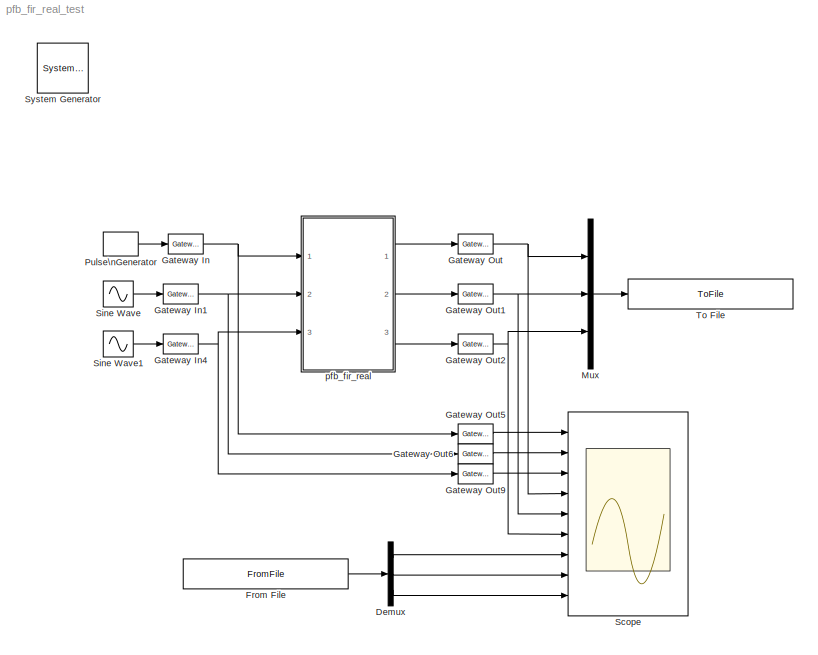
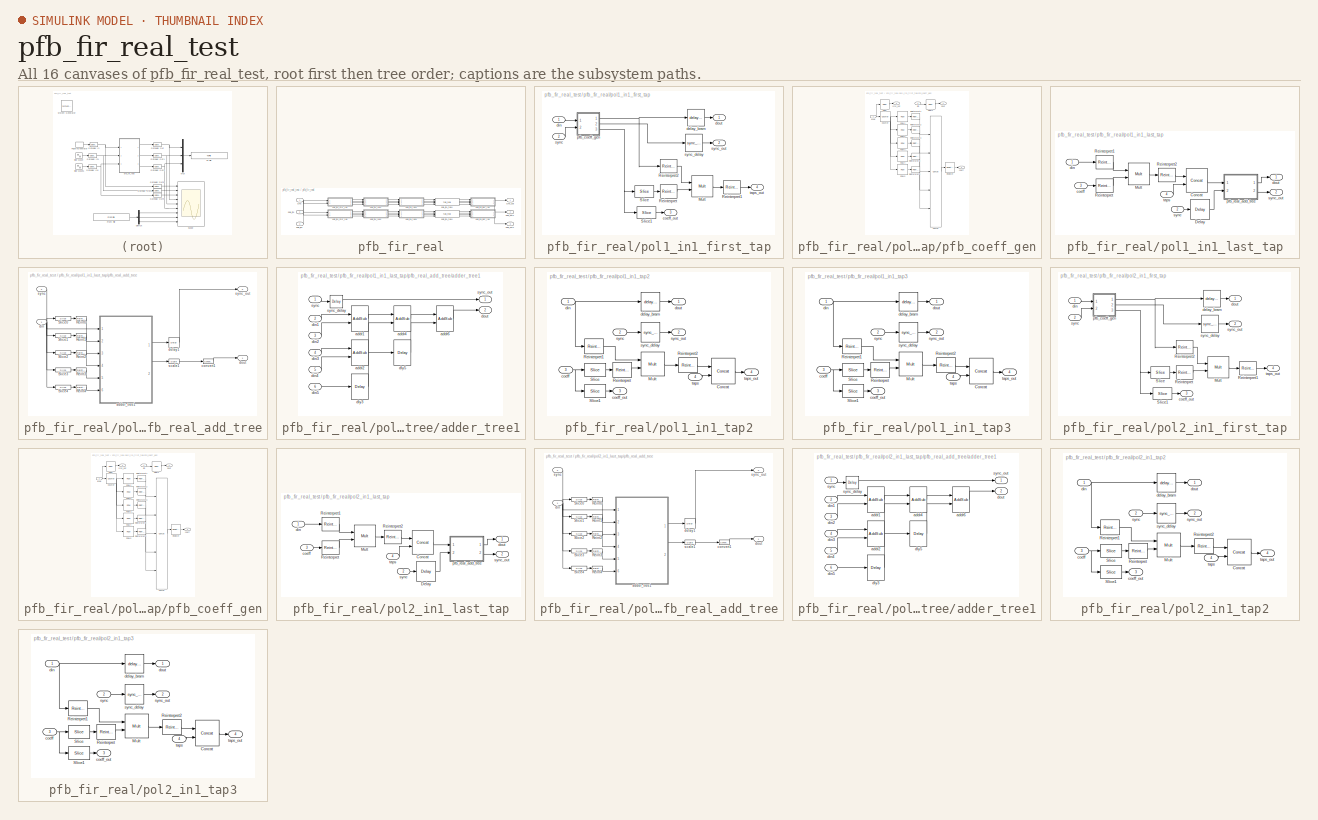
[diagram: thumbnail index - all 16 canvases of the model, root first then tree order]
MODEL pfb_fir_real_test
KIND model
BLOCK [Reference]  System Generator  REF=xbsIndex_r4/ System Generator
  AttributesFormatString = System\\nGenerator
  FunctionWithSeparateData = off
  Ports = []
  RTWMemSecDataConstants = Inherit from model
  RTWMemSecDataInternal = Inherit from model
  RTWMemSecDataParameters = Inherit from model
  RTWMemSecFuncExecute = Inherit from model
  RTWMemSecFuncInitTerm = Inherit from model
  ShowPortLabels = FromPortIcon
  SourceBlock = xbsIndex_r4/ System Generator
  SourceType = Xilinx System Generator Block
  SystemSampleTime = -1
  Tag = genX
  UserData = DataTag0
  UserDataPersistent = on
  block_type = sysgen
  block_version = 10.1.1
  clock_wrapper = Clock Enables
  core_generation = According to Block Masks
  dbl_ovrd = According to Block Masks
  dcm_input_clock_period = 100
  deprecated_control = off
  directory = ./netlist
  eval_field = 0
  has_advanced_control = 0
  incr_netlist = off
  infoedit = System Generator
  package = ff668
  part = xc4vsx35
  run_coregen = off
  sg_icon_stat = 51,50,-1,-1,red,beige,0,07734,right
  sg_mask_display = fprintf('','COMMENT: begin icon graphics');\npatch([0 51 51 0 ],[0 0 50 50 ],[0.93 0.92 0.86]);\npatch([12 4 16 4 12 25 29 33 47 36 25 17 29 17 25 36 47 33 29 25 12 ],[5 13 25 37 45 45 41 45 45 34 45 37 25 13 5 16 5 5 9 5 5 ],[0.6 0.2 0.25]);\nplot([0 51 51 0 0 ],[0 0 50 50 0 ]);\nfprintf('','COMMENT: end icon graphics');\nfprintf('','COMMENT: begin icon text');\nfprintf('','COMMENT: end icon text...<+5ch>
  sggui_pos = -1,-1,-1,-1
  simulink_period = 1
  speed = -10
  synthesis_tool = XST
  sysclk_period = 100
  testbench = off
  trim_vbits = Everywhere in SubSystem
  xilinxfamily = Virtex4
BLOCK [Demux] Demux
  DisplayOption = bar
  Outputs = 3
  Ports = [1, 3]
BLOCK [FromFile] From File
  FileName = pfb_fir_real_test_reference.mat
  SampleTime = 1
BLOCK [Reference] Gateway In  REF=xbsIndex_r4/Gateway In
  LOCs = {}
  Ports = [1, 1]
  SourceBlock = xbsIndex_r4/Gateway In
  SourceType = Xilinx Gateway In Block
  arith_type = Boolean
  bin_pt = 14
  block_type = gatewayin
  block_version = 10.1.1
  dbl_ovrd = off
  has_advanced_control = 0
  infoedit = Gateway in block.  Converts inputs of type Simulink integer, double and fixed point to  Xilinx fixed point type.<P><P>Hardware notes:  In hardware these blocks become top level input ports.  <repeated x3 — deduplicated; at blocks: Gateway In, Gateway In1, Gateway In4>
  locs_specified = off
  n_bits = 16
  overflow = Saturate
  period = 1
  quantization = Round  (unbiased: +/- Inf)
  sg_icon_stat = 35,20,1,1,white,yellow,0,bc55d28f,right
  sg_mask_display = fprintf('','COMMENT: begin icon graphics');\npatch([0 65 65 0 ],[0 0 20 20 ],[0.95 0.93 0.65]);\npatch([27 24 29 24 27 32 33 34 40 36 32 29 34 29 32 36 40 34 33 32 27 ],[2 5 10 15 18 18 17 18 18 14 18 15 10 5 2 6 2 2 3 2 2 ],[0.98 0.96 0.92]);\nplot([0 65 65 0 0 ],[0 0 20 20 0 ]);\nfprintf('','COMMENT: end icon graphics');\nfprintf('','COMMENT: begin icon text');\ncolor('black');port_label('input'...<+131ch>  <repeated x3 — deduplicated; at blocks: Gateway In, Gateway In1, Gateway In4>
  sggui_pos = 1819,155,407,458
  timing_constraint = None
  xl_area = [0,0,0,0,0,0,0]
  xl_use_area = off
BLOCK [Reference] Gateway In1  REF=xbsIndex_r4/Gateway In
  LOCs = {}
  Ports = [1, 1]
  SourceBlock = xbsIndex_r4/Gateway In
  SourceType = Xilinx Gateway In Block
  arith_type = Signed  (2's comp)
  bin_pt = 9
  block_type = gatewayin
  block_version = 10.1.1
  dbl_ovrd = off
  has_advanced_control = 0
  locs_specified = off
  n_bits = 10
  overflow = Wrap
  period = 1
  quantization = Truncate
  sg_icon_stat = 35,20,1,1,white,yellow,0,bc55d28f,right
  sggui_pos = 2187,164,407,458
  timing_constraint = None
  xl_area = [0,0,0,0,0,0,0]
  xl_use_area = off
BLOCK [Reference] Gateway In4  REF=xbsIndex_r4/Gateway In
  LOCs = {}
  Ports = [1, 1]
  SourceBlock = xbsIndex_r4/Gateway In
  SourceType = Xilinx Gateway In Block
  arith_type = Signed  (2's comp)
  bin_pt = 9
  block_type = gatewayin
  block_version = 10.1.1
  dbl_ovrd = off
  has_advanced_control = 0
  locs_specified = off
  n_bits = 10
  overflow = Wrap
  period = 1
  quantization = Truncate
  sg_icon_stat = 35,20,1,1,white,yellow,0,bc55d28f,right
  sggui_pos = 1942,132,407,458
  timing_constraint = None
  xl_area = [0,0,0,0,0,0,0]
  xl_use_area = off
BLOCK [Reference] Gateway Out  REF=xbsIndex_r4/Gateway Out
  LOCs = {}
  Ports = [1, 1]
  SourceBlock = xbsIndex_r4/Gateway Out
  SourceType = Xilinx Gateway Out Block
  block_type = gatewayout
  block_version = 10.1.1
  has_advanced_control = 0
  hdl_port = on
  infoedit = Gateway out block.  Converts Xilinx fixed point inputs into ouputs of type Simulink integer, double, or fixed point.<P><P>Hardware notes:  In hardware these blocks become top level output ports or are discarded, depending on how they are configured.  <repeated x6 — deduplicated; at blocks: Gateway Out, Gateway Out1, Gateway Out2, Gateway Out5, Gateway Out6, Gateway Out9>
  locs_specified = off
  sg_icon_stat = 35,20,1,1,white,yellow,0,38220381,right
  sg_mask_display = fprintf('','COMMENT: begin icon graphics');\npatch([0 35 35 0 ],[0 0 20 20 ],[0.95 0.93 0.65]);\npatch([12 9 14 9 12 17 18 19 25 21 17 14 19 14 17 21 25 19 18 17 12 ],[2 5 10 15 18 18 17 18 18 14 18 15 10 5 2 6 2 2 3 2 2 ],[0.98 0.96 0.92]);\nplot([0 35 35 0 0 ],[0 0 20 20 0 ]);\nfprintf('','COMMENT: end icon graphics');\nfprintf('','COMMENT: begin icon text');\ncolor('black');port_label('input',1...<+130ch>  <repeated x6 — deduplicated; at blocks: Gateway Out, Gateway Out1, Gateway Out2, Gateway Out5, Gateway Out6, Gateway Out9>
  sggui_pos = -1,-1,-1,-1
  timing_constraint = None
  xl_area = [0,0,0,0,0,0,0]
  xl_use_area = off
BLOCK [Reference] Gateway Out1  REF=xbsIndex_r4/Gateway Out
  LOCs = {}
  Ports = [1, 1]
  SourceBlock = xbsIndex_r4/Gateway Out
  SourceType = Xilinx Gateway Out Block
  block_type = gatewayout
  block_version = 10.1.1
  has_advanced_control = 0
  hdl_port = on
  locs_specified = off
  sg_icon_stat = 35,20,1,1,white,yellow,0,38220381,right
  sggui_pos = -1,-1,-1,-1
  timing_constraint = None
  xl_area = [0,0,0,0,0,0,0]
  xl_use_area = off
BLOCK [Reference] Gateway Out2  REF=xbsIndex_r4/Gateway Out
  LOCs = {}
  Ports = [1, 1]
  SourceBlock = xbsIndex_r4/Gateway Out
  SourceType = Xilinx Gateway Out Block
  block_type = gatewayout
  block_version = 10.1.1
  has_advanced_control = 0
  hdl_port = on
  locs_specified = off
  sg_icon_stat = 35,20,1,1,white,yellow,0,38220381,right
  sggui_pos = -1,-1,-1,-1
  timing_constraint = None
  xl_area = [0,0,0,0,0,0,0]
  xl_use_area = off
BLOCK [Reference] Gateway Out5  REF=xbsIndex_r4/Gateway Out
  LOCs = {}
  Ports = [1, 1]
  SourceBlock = xbsIndex_r4/Gateway Out
  SourceType = Xilinx Gateway Out Block
  block_type = gatewayout
  block_version = 10.1.1
  has_advanced_control = 0
  hdl_port = on
  locs_specified = off
  sg_icon_stat = 35,20,1,1,white,yellow,0,38220381,right
  sggui_pos = -1,-1,-1,-1
  timing_constraint = None
  xl_area = [0,0,0,0,0,0,0]
  xl_use_area = off
BLOCK [Reference] Gateway Out6  REF=xbsIndex_r4/Gateway Out
  LOCs = {}
  Ports = [1, 1]
  SourceBlock = xbsIndex_r4/Gateway Out
  SourceType = Xilinx Gateway Out Block
  block_type = gatewayout
  block_version = 10.1.1
  has_advanced_control = 0
  hdl_port = on
  locs_specified = off
  sg_icon_stat = 35,20,1,1,white,yellow,0,38220381,right
  sggui_pos = -1,-1,-1,-1
  timing_constraint = None
  xl_area = [0,0,0,0,0,0,0]
  xl_use_area = off
BLOCK [Reference] Gateway Out9  REF=xbsIndex_r4/Gateway Out
  LOCs = {}
  Ports = [1, 1]
  SourceBlock = xbsIndex_r4/Gateway Out
  SourceType = Xilinx Gateway Out Block
  block_type = gatewayout
  block_version = 10.1.1
  has_advanced_control = 0
  hdl_port = on
  locs_specified = off
  sg_icon_stat = 35,20,1,1,white,yellow,0,38220381,right
  sggui_pos = -1,-1,-1,-1
  timing_constraint = None
  xl_area = [0,0,0,0,0,0,0]
  xl_use_area = off
BLOCK [Mux] Mux
  DisplayOption = bar
  Inputs = 3
  Ports = [3, 1]
BLOCK [DiscretePulseGenerator] Pulse\nGenerator
  Period = 2^7
  PhaseDelay = 13
  Ports = [0, 1]
BLOCK [Scope] Scope
  DataFormat = StructureWithTime
  Floating = off
  NumInputPorts = 9
  Ports = [9]
  SampleTime = 0
  YMax = 5~5~5~5~5~5~5~5~5
  YMin = -5~-5~-5~-5~-5~-5~-5~-5~-5
  ZoomMode = yonly
BLOCK [Sin] Sine Wave
  Amplitude = 0.8
  Offset = 7
  Ports = [0, 1]
  SampleTime = 1
  Samples = 16
  SineType = Sample based
BLOCK [Sin] Sine Wave1
  Amplitude = 0.8
  Offset = 7
  Ports = [0, 1]
  SampleTime = 1
  Samples = 8
  SineType = Sample based
BLOCK [ToFile] To File
  Filename = pfb_fir_real_test_output.mat
  MatrixName = output
BLOCK [SubSystem] pfb_fir_real
  AncestorBlock = casper_library/PFBs/pfb_fir_real
  AttributesFormatString = taps=5, add_latency=2
  FunctionWithSeparateData = off
  MaskCallbackString = |||||||||||||
  MaskEnableString = on,on,on,on,on,on,on,on,on,on,on,on,on,on
  MaskIconFrame = on
  MaskIconOpaque = on
  MaskIconRotate = none
  MaskIconUnits = autoscale
  MaskInitialization = pfb_fir_real_init(gcb,...\n    'PFBSize', PFBSize,...\n    'TotalTaps', TotalTaps,...\n    'WindowType', WindowType,...\n    'n_inputs', n_inputs,...\n    'MakeBiplex', MakeBiplex,...\n    'BitWidthIn', BitWidthIn,...\n    'BitWidthOut', BitWidthOut,...\n    'CoeffBitWidth', CoeffBitWidth,...\n    'CoeffDistMem', CoeffDistMem,...\n    'add_latency', add_latency,...\n    'mult_latency', mult_latenc...<+105ch>
  MaskPromptString = Size of PFB: (2^? pnts)|Total Number of Taps:|Windowing Function: |Number of Simultaneous Inputs: (2^?)|Make Biplex|Input Bitwidth:|Output Bitwidth:|Coefficient Bitwidth:|Use Distributed Memory for Coeffs|Add Latency|Mult Latency|BRAM Latency|Quantization Behavior|Bin Width Scaling (normal=1)
  MaskSelfModifiable = on
  MaskStyleString = edit,edit,popup(bartlett|barthannwin|blackman|blackmanharris|bohamwin|chebwin|flattopwin|gausswin|hamming|hann|kaiser|nuttallwin|parzenwin|rectwin|tukeywin|triang|userwindow),edit,edit,edit,edit,edit,edit,edit,edit,edit,popup(Truncate|Round  (unbiased: +/- Inf)|Round  (unbiased: Even Values)),edit
  MaskTabNameString = ,,,,,,,,,,,,,
  MaskToolTipString = on,on,on,on,on,on,on,on,on,on,on,on,on,on
  MaskTunableValueString = on,on,on,on,on,on,on,on,on,on,on,on,on,on
  MaskType = pfb_fir_real
  MaskValueString = 5|5|chebwin|0|1|10|22|10|0|2|3|1|Truncate|0.8
  MaskVarAliasString = ,,,,,,,,,,,,,
  MaskVariables = PFBSize=@1;TotalTaps=@2;WindowType=&3;n_inputs=@4;MakeBiplex=@5;BitWidthIn=@6;BitWidthOut=@7;CoeffBitWidth=@8;CoeffDistMem=@9;add_latency=@10;mult_latency=@11;bram_latency=@12;quantization=&13;fwidth=@14;
  MaskVisibilityString = on,on,on,on,on,on,on,on,on,on,on,on,on,on
  MinAlgLoopOccurrences = off
  Ports = [3, 3]
  RTWSystemCode = Auto
  UserData = DataTag1
  UserDataPersistent = on
BLOCK [Inport] pfb_fir_real/pol1_in1
  IconDisplay = Port number
  OutDataType = sfix(16)
  OutScaling = 2^0
  Port = 2
BLOCK [SubSystem] pfb_fir_real/pol1_in1_first_tap
  AncestorBlock = casper_library/PFBs/first_tap_real
  AttributesFormatString = input=0, taps=5
  FunctionWithSeparateData = off
  MaskCallbackString = ||||||||||
  MaskEnableString = on,on,on,on,on,on,on,on,on,on,on
  MaskIconFrame = on
  MaskIconOpaque = on
  MaskIconRotate = none
  MaskIconUnits = autoscale
  MaskInitialization = first_tap_real_init(gcb,...\n    'nput', nput,...\n    'PFBSize', PFBSize,...\n    'CoeffBitWidth', CoeffBitWidth,...\n    'TotalTaps', TotalTaps,...\n    'BitWidthIn', BitWidthIn,...\n    'CoeffDistMem', CoeffDistMem,...\n    'WindowType', WindowType,...\n    'mult_latency', mult_latency,...\n    'bram_latency', bram_latency,...\n    'n_inputs', n_inputs,...\n    'fwidth', fwidth);
  MaskPromptString = This is input number:|Size of PFB: (2^? pnts)|Bitwidth of Coefficients:|Total Number of Taps:|Input Bitwidth:|Implement Coeff Gen in Distributed Memory:|Windowing Function:|Mult Latency|BRAM Latency|Number of Simultaneous Inputs: (2^?)|Bit Width (normal=1)
  MaskSelfModifiable = on
  MaskStyleString = edit,edit,edit,edit,edit,edit,popup(bartlett|barthannwin|blackman|blackmanharris|bohamwin|chebwin|flattopwin|gausswin|hamming|hann|kaiser|nuttallwin|parzenwin|rectwin|tukeywin|triang|userwindow),edit,edit,edit,edit
  MaskTabNameString = ,,,,,,,,,,
  MaskToolTipString = on,on,on,on,on,on,on,on,on,on,on
  MaskTunableValueString = on,on,on,on,on,on,on,on,on,on,on
  MaskType = first_tap_real
  MaskValueString = 0|5|10|5|10|0|chebwin|3|1|0|0.8
  MaskVarAliasString = ,,,,,,,,,,
  MaskVariables = nput=@1;PFBSize=@2;CoeffBitWidth=@3;TotalTaps=@4;BitWidthIn=@5;CoeffDistMem=@6;WindowType=&7;mult_latency=@8;bram_latency=@9;n_inputs=@10;fwidth=@11;
  MaskVisibilityString = on,on,on,on,on,on,on,on,on,on,on
  MinAlgLoopOccurrences = off
  Ports = [2, 4]
  RTWSystemCode = Auto
  UserData = DataTag2
  UserDataPersistent = on
BLOCK [Reference] pfb_fir_real/pol1_in1_first_tap/Mult  REF=xbsIndex_r4/Mult
  Ports = [2, 1]
  SourceBlock = xbsIndex_r4/Mult
  SourceType = Xilinx Multiplier Block
  arith_type = Signed  (2's comp)
  bin_pt = 2
  block_type = mult
  block_version = 9.1.01
  dbl_ovrd = off
  en = off
  has_advanced_control = 0
  infoedit = Hardware notes: To use the internal pipeline stage of the dedicated multiplier you must select 'Pipeline for maximum performance'.
  latency = mult_latency
  n_bits = 8
  opt = Speed
  optimum_pipeline = off
  overflow = Wrap
  pipeline = on
  placement_style = Rectangular shape
  precision = Full
  quantization = Truncate
  sg_icon_stat = 50,51,1,1,white,blue,0,9c0d74db,right
  sg_mask_display = fprintf('','COMMENT: begin icon graphics');\npatch([0 55 55 0 ],[0 0 55 55 ],[0.77 0.82 0.91]);\npatch([13 4 17 4 13 28 32 36 52 40 28 19 32 19 28 40 52 36 32 28 13 ],[6 15 28 41 50 50 46 50 50 38 50 41 28 15 6 18 6 6 10 6 6 ],[0.98 0.96 0.92]);\nplot([0 55 55 0 0 ],[0 0 55 55 0 ]);\nfprintf('','COMMENT: end icon graphics');\nfprintf('','COMMENT: begin icon text');\ncolor('black');port_label('inpu...<+212ch>  <repeated x8 — deduplicated; at blocks: Mult>
  sggui_pos = -1,-1,-1,-1
  use_behavioral_HDL = off
  use_embedded = on
  use_rpm = on
  xl_area = [0, 0, 0, 0, 0, 0, 0]
  xl_use_area = off
BLOCK [Reference] pfb_fir_real/pol1_in1_first_tap/Reinterpret  REF=xbsIndex_r4/Reinterpret
  Ports = [1, 1]
  SourceBlock = xbsIndex_r4/Reinterpret
  SourceType = Xilinx Type Reinterpreter Block
  arith_type = Signed  (2's comp)
  bin_pt = CoeffBitWidth - 1
  block_type = reinterpret
  block_version = 9.1.01
  force_arith_type = on
  force_bin_pt = on
  has_advanced_control = 0
  infoedit = Changes signal type without altering the binary representation.   You can changed the signal between signed and unsigned, and relocate the binary point.<P><P>Hardware notes: In hardware this block costs nothing.<P><P>Example:  Suppose the input is 6 bits wide, signed, with 2 fractional bits, and the output is forced to unsigned with 0 fractional bits.  Then an input of -2.0 (1110.00 in binary 2's ...<+55ch>  <repeated x44 — deduplicated; at blocks: Reinterpret, Reinterpret1, Reinterpret2, Reinterpret3, Reinterpret4, Reinterpret5, Reint0, Reint1, Reint2, Reint3, Reint4>
  sg_icon_stat = 40,32,1,1,white,blue,0,8982c1db,right
  sg_mask_display = fprintf('','COMMENT: begin icon graphics');\npatch([0 50 50 0 ],[0 0 32 32 ],[0.77 0.82 0.91]);\npatch([16 11 18 11 16 24 26 28 37 30 23 18 25 18 23 30 37 28 26 24 16 ],[3 8 15 22 27 27 25 27 27 20 27 22 15 8 3 10 3 3 5 3 3 ],[0.98 0.96 0.92]);\nplot([0 50 50 0 0 ],[0 0 32 32 0 ]);\nfprintf('','COMMENT: end icon graphics');\nfprintf('','COMMENT: begin icon text');\ncolor('black');disp('reinterpret...<+44ch>  <repeated x30 — deduplicated; at blocks: Reinterpret, Reinterpret1, Reinterpret2, Reinterpret3, Reinterpret4, Reint0, Reint1, Reint2, Reint3>
  sggui_pos = -1,-1,-1,-1
BLOCK [Reference] pfb_fir_real/pol1_in1_first_tap/Reinterpret1  REF=xbsIndex_r4/Reinterpret
  Ports = [1, 1]
  SourceBlock = xbsIndex_r4/Reinterpret
  SourceType = Xilinx Type Reinterpreter Block
  arith_type = Unsigned
  bin_pt = 0
  block_type = reinterpret
  block_version = 9.1.01
  force_arith_type = on
  force_bin_pt = on
  has_advanced_control = 0
  sg_icon_stat = 40,32,1,1,white,blue,0,8982c1db,right
  sggui_pos = -1,-1,-1,-1
BLOCK [Reference] pfb_fir_real/pol1_in1_first_tap/Reinterpret2  REF=xbsIndex_r4/Reinterpret
  Ports = [1, 1]
  SourceBlock = xbsIndex_r4/Reinterpret
  SourceType = Xilinx Type Reinterpreter Block
  arith_type = Signed  (2's comp)
  bin_pt = BitWidthIn - 1
  block_type = reinterpret
  block_version = 9.1.01
  force_arith_type = on
  force_bin_pt = on
  has_advanced_control = 0
  sg_icon_stat = 40,32,1,1,white,blue,0,8982c1db,right
  sggui_pos = -1,-1,-1,-1
BLOCK [Reference] pfb_fir_real/pol1_in1_first_tap/Slice  REF=xbsIndex_r4/Slice
  Ports = [1, 1]
  SourceBlock = xbsIndex_r4/Slice
  SourceType = Xilinx Bit Slice Extractor Block
  base0 = LSB of Input
  base1 = MSB of Input
  bit0 = 0
  bit1 = 0
  block_type = slice
  block_version = 9.1.01
  boolean_output = off
  dbl_ovrd = off
  has_advanced_control = 0
  infoedit = Extracts a given range of bits from each input sample and presents it at the output.  The output type is ordinarily unsigned with binary point at zero, but can be Boolean when the slice is one bit wide.<P><P>Hardware notes: In hardware this block costs nothing.  <repeated x22 — deduplicated; at blocks: Slice, Slice1, Slice0, Slice2, Slice3, Slice4>
  mode = Lower Bit Location + Width
  nbits = CoeffBitWidth
  sg_icon_stat = 45,28,1,1,white,blue,0,b1026674,right
  sg_mask_display = fprintf('','COMMENT: begin icon graphics');\npatch([0 60 60 0 ],[0 0 30 30 ],[0.77 0.82 0.91]);\npatch([22 17 24 17 22 30 32 34 42 35 29 24 30 24 29 35 42 34 32 30 22 ],[3 8 15 22 27 27 25 27 27 20 26 21 15 9 4 10 3 3 5 3 3 ],[0.98 0.96 0.92]);\nplot([0 60 60 0 0 ],[0 0 30 30 0 ]);\nfprintf('','COMMENT: end icon graphics');\nfprintf('','COMMENT: begin icon text');\ncolor('black');port_label('outpu...<+55ch>  <repeated x20 — deduplicated; at blocks: Slice, Slice1, Slice0, Slice2, Slice3>
  sggui_pos = -1,-1,-1,-1
BLOCK [Reference] pfb_fir_real/pol1_in1_first_tap/Slice1  REF=xbsIndex_r4/Slice
  Ports = [1, 1]
  SourceBlock = xbsIndex_r4/Slice
  SourceType = Xilinx Bit Slice Extractor Block
  base0 = LSB of Input
  base1 = MSB of Input
  bit0 = CoeffBitWidth
  bit1 = 0
  block_type = slice
  block_version = 9.1.01
  boolean_output = off
  dbl_ovrd = off
  has_advanced_control = 0
  mode = Two Bit Locations
  nbits = CoeffBitWidth * (TotalTaps - 1)
  sg_icon_stat = 45,28,1,1,white,blue,0,b1026674,right
  sggui_pos = -1,-1,-1,-1
BLOCK [Outport] pfb_fir_real/pol1_in1_first_tap/coeff_out
  IconDisplay = Port number
  OutDataType = sfix(16)
  OutScaling = 2^0
  Port = 3
BLOCK [Reference] pfb_fir_real/pol1_in1_first_tap/delay_bram  REF=casper_library/Delays/delay_bram  (lib defined in mdl_138b2fc3435f, mdl_4ed325b712b3, +2 more)
  DelayLen = 2^(PFBSize-n_inputs)
  FunctionWithSeparateData = off
  Ports = [1, 1]
  RTWMemSecDataConstants = Inherit from model
  RTWMemSecDataInternal = Inherit from model
  RTWMemSecDataParameters = Inherit from model
  RTWMemSecFuncExecute = Inherit from model
  RTWMemSecFuncInitTerm = Inherit from model
  ShowPortLabels = FromPortIcon
  SourceBlock = casper_library/Delays/delay_bram
  SourceType = delay_bram
  SystemSampleTime = -1
  bram_latency = bram_latency
BLOCK [Inport] pfb_fir_real/pol1_in1_first_tap/din
  IconDisplay = Port number
  OutDataType = sfix(16)
  OutScaling = 2^0
BLOCK [Outport] pfb_fir_real/pol1_in1_first_tap/dout
  IconDisplay = Port number
  OutDataType = sfix(16)
  OutScaling = 2^0
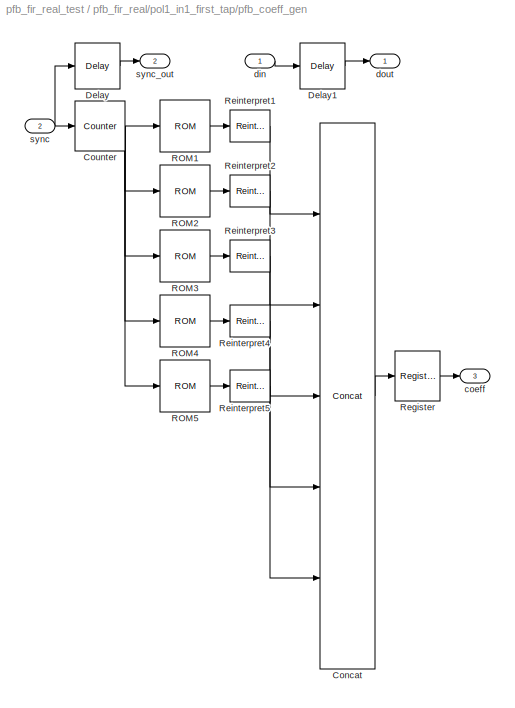
BLOCK [SubSystem] pfb_fir_real/pol1_in1_first_tap/pfb_coeff_gen
  AncestorBlock = casper_library/PFBs/pfb_coeff_gen
  AttributesFormatString = PFBSize=5, n_inputs=0, taps=5
  FunctionWithSeparateData = off
  MaskCallbackString = ||||||||
  MaskEnableString = on,on,on,on,on,on,on,on,on
  MaskIconFrame = on
  MaskIconOpaque = on
  MaskIconRotate = none
  MaskIconUnits = autoscale
  MaskInitialization = pfb_coeff_gen_init(gcb, ...\n    'PFBSize', PFBSize, ...\n    'CoeffBitWidth', CoeffBitWidth, ...\n    'TotalTaps', TotalTaps, ...\n    'CoeffDistMem', CoeffDistMem, ...\n    'WindowType', WindowType, ...\n    'bram_latency', bram_latency, ...\n    'n_inputs', n_inputs, ...\n    'nput', nput, ...\n    'fwidth', fwidth);
  MaskPromptString = Size of PFB: (2^? pnts)|Bitwidth of Coefficients:|Total Number of Taps:|Implement Coeff Gen in Distributed Memory|Windowing Function: |BRAM Latency|Number of Simultaneous Inputs: (2^?)|This is input number:|Bin Width (normal=1)
  MaskSelfModifiable = on
  MaskStyleString = edit,edit,edit,edit,edit,edit,edit,edit,edit
  MaskTabNameString = ,,,,,,,,
  MaskToolTipString = on,on,on,on,on,on,on,on,on
  MaskTunableValueString = on,on,on,on,on,on,on,on,on
  MaskType = pfb_coeff_gen
  MaskValueString = 5|10|5|0|chebwin|1|0|0|0.8
  MaskVarAliasString = ,,,,,,,,
  MaskVariables = PFBSize=@1;CoeffBitWidth=@2;TotalTaps=@3;CoeffDistMem=@4;WindowType=&5;bram_latency=@6;n_inputs=@7;nput=@8;fwidth=@9;
  MaskVisibilityString = on,on,on,on,on,on,on,on,on
  MinAlgLoopOccurrences = off
  Ports = [2, 3]
  RTWSystemCode = Auto
  UserData = DataTag3
  UserDataPersistent = on
BLOCK [Reference] pfb_fir_real/pol1_in1_first_tap/pfb_coeff_gen/Concat  REF=xbsIndex_r4/Concat
  Ports = [5, 1]
  SourceBlock = xbsIndex_r4/Concat
  SourceType = Xilinx Bus Concatenator Block
  block_type = concat
  block_version = 9.1.01
  dbl_ovrd = off
  has_advanced_control = 0
  infoedit = Concatenates two or more inputs.  Output will be cast to an unsigned value with the binary point at zero.
  num_inputs = 5
  sg_icon_stat = 55,546,1,1,white,blue,0,b68db4a4,right
  sg_mask_display = fprintf('','COMMENT: begin icon graphics');\npatch([0 55 55 0 ],[0 0 546 546 ],[0.77 0.82 0.91]);\npatch([13 4 17 4 13 28 32 36 52 40 28 19 32 19 28 40 52 36 32 28 13 ],[251 260 273 286 295 295 291 295 295 283 295 286 273 260 251 263 251 251 255 251 251 ],[0.98 0.96 0.92]);\nplot([0 55 55 0 0 ],[0 0 546 546 0 ]);\nfprintf('','COMMENT: end icon graphics');\nfprintf('','COMMENT: begin icon text');\n...<+127ch>
  sggui_pos = -1,-1,-1,-1
BLOCK [Reference] pfb_fir_real/pol1_in1_first_tap/pfb_coeff_gen/Counter  REF=xbsIndex_r4/Counter
  Ports = [1, 1]
  SourceBlock = xbsIndex_r4/Counter
  SourceType = Xilinx Counter Block
  arith_type = Unsigned
  bin_pt = 0
  block_type = counter
  block_version = 9.1.01
  cnt_by_val = 1
  cnt_to = Inf
  cnt_type = Free Running
  dbl_ovrd = off
  en = off
  explicit_period = on
  has_advanced_control = 0
  infoedit = Hardware notes: Free running counters are the least expensive in hardware.  A count limited counter is implemented by combining a counter with a comparator.
  load_pin = off
  n_bits = 5
  operation = Up
  period = 1
  rst = on
  sg_icon_stat = 50,50,1,1,white,blue,0,300e9576,right
  sg_mask_display = fprintf('','COMMENT: begin icon graphics');\npatch([0 60 60 0 ],[0 0 60 60 ],[0.77 0.82 0.91]);\npatch([14 4 18 4 14 30 34 38 55 42 29 20 35 20 29 42 55 38 34 30 14 ],[6 16 30 44 54 54 50 54 54 41 54 45 30 15 6 19 6 6 10 6 6 ],[0.98 0.96 0.92]);\nplot([0 60 60 0 0 ],[0 0 60 60 0 ]);\nfprintf('','COMMENT: end icon graphics');\nfprintf('','COMMENT: begin icon text');\ncolor('black');port_label('inpu...<+99ch>
  sggui_pos = -1,-1,-1,-1
  start_count = 0
  use_behavioral_HDL = off
  use_rpm = on
  xl_area = [0, 0, 0, 0, 0, 0, 0]
  xl_use_area = off
BLOCK [Reference] pfb_fir_real/pol1_in1_first_tap/pfb_coeff_gen/Delay  REF=xbsIndex_r4/Delay
  Ports = [1, 1]
  SourceBlock = xbsIndex_r4/Delay
  SourceType = Xilinx Delay Block
  block_type = delay
  block_version = 9.1.01
  dbl_ovrd = off
  en = off
  has_advanced_control = 0
  infoedit = Hardware notes: A delay line is a chain, each link of which is an SRL16 followed by a flip-flop.
  latency = bram_latency+1
  reg_retiming = off
  sg_icon_stat = 45,46,1,1,white,blue,0,0a7a6cf1,right
  sg_mask_display = fprintf('','COMMENT: begin icon graphics');\npatch([0 60 60 0 ],[0 0 56 56 ],[0.77 0.82 0.91]);\npatch([15 6 19 6 15 30 34 38 54 41 29 20 32 20 29 41 54 38 34 30 15 ],[6 15 28 41 50 50 46 50 50 37 49 40 28 16 7 19 6 6 10 6 6 ],[0.98 0.96 0.92]);\nplot([0 60 60 0 0 ],[0 0 56 56 0 ]);\nfprintf('','COMMENT: end icon graphics');\nfprintf('','COMMENT: begin icon text');\ncolor('black');disp('z^{-2}','t...<+55ch>  <repeated x6 — deduplicated; at blocks: Delay, Delay1, delay1>
  sggui_pos = -1,-1,-1,-1
  xl_area = [0, 0, 0, 0, 0, 0, 0]
  xl_use_area = off
BLOCK [Reference] pfb_fir_real/pol1_in1_first_tap/pfb_coeff_gen/Delay1  REF=xbsIndex_r4/Delay
  Ports = [1, 1]
  SourceBlock = xbsIndex_r4/Delay
  SourceType = Xilinx Delay Block
  block_type = delay
  block_version = 9.1.01
  dbl_ovrd = off
  en = off
  has_advanced_control = 0
  infoedit = Hardware notes: A delay line is a chain, each link of which is an SRL16 followed by a flip-flop.
  latency = 2
  reg_retiming = off
  sg_icon_stat = 45,46,1,1,white,blue,0,0a7a6cf1,right
  sggui_pos = -1,-1,-1,-1
  xl_area = [0, 0, 0, 0, 0, 0, 0]
  xl_use_area = off
BLOCK [Reference] pfb_fir_real/pol1_in1_first_tap/pfb_coeff_gen/ROM1  REF=xbsIndex_r4/ROM
  Ports = [1, 1]
  SourceBlock = xbsIndex_r4/ROM
  SourceType = Xilinx Single Port Read-Only Memory Block
  arith_type = Signed  (2's comp)
  bin_pt = 9
  block_type = sprom
  block_version = 9.1.01
  dbl_ovrd = off
  depth = 32
  distributed_mem = Block RAM
  en = off
  has_advanced_control = 0
  initVector = pfb_coeff_gen_calc(5, 5,'chebwin',0, 0,0.8,1)
  init_reg = 0
  latency = 1
  n_bits = 10
  optimize = Area
  rst = off
  sg_icon_stat = 50,52,1,1,white,blue,0,a8b86474,right
  sg_mask_display = fprintf('','COMMENT: begin icon graphics');\npatch([0 60 60 0 ],[0 0 56 56 ],[0.77 0.82 0.91]);\npatch([15 6 19 6 15 30 34 38 54 41 29 20 32 20 29 41 54 38 34 30 15 ],[6 15 28 41 50 50 46 50 50 37 49 40 28 16 7 19 6 6 10 6 6 ],[0.98 0.96 0.92]);\nplot([0 60 60 0 0 ],[0 0 56 56 0 ]);\nfprintf('','COMMENT: end icon graphics');\nfprintf('','COMMENT: begin icon text');\ncolor('black');port_label('inpu...<+101ch>  <repeated x8 — deduplicated; at blocks: ROM1, ROM2, ROM3, ROM4>
  sggui_pos = -1,-1,-1,-1
  use_rpm = on
  xl_area = [0, 0, 0, 0, 0, 0, 0]
  xl_use_area = off
BLOCK [Reference] pfb_fir_real/pol1_in1_first_tap/pfb_coeff_gen/ROM2  REF=xbsIndex_r4/ROM
  Ports = [1, 1]
  SourceBlock = xbsIndex_r4/ROM
  SourceType = Xilinx Single Port Read-Only Memory Block
  arith_type = Signed  (2's comp)
  bin_pt = 9
  block_type = sprom
  block_version = 9.1.01
  dbl_ovrd = off
  depth = 32
  distributed_mem = Block RAM
  en = off
  has_advanced_control = 0
  initVector = pfb_coeff_gen_calc(5, 5,'chebwin',0, 0,0.8,2)
  init_reg = 0
  latency = 1
  n_bits = 10
  optimize = Area
  rst = off
  sg_icon_stat = 50,52,1,1,white,blue,0,a8b86474,right
  sggui_pos = -1,-1,-1,-1
  use_rpm = on
  xl_area = [0, 0, 0, 0, 0, 0, 0]
  xl_use_area = off
BLOCK [Reference] pfb_fir_real/pol1_in1_first_tap/pfb_coeff_gen/ROM3  REF=xbsIndex_r4/ROM
  Ports = [1, 1]
  SourceBlock = xbsIndex_r4/ROM
  SourceType = Xilinx Single Port Read-Only Memory Block
  arith_type = Signed  (2's comp)
  bin_pt = 9
  block_type = sprom
  block_version = 9.1.01
  dbl_ovrd = off
  depth = 32
  distributed_mem = Block RAM
  en = off
  has_advanced_control = 0
  initVector = pfb_coeff_gen_calc(5, 5,'chebwin',0, 0,0.8,3)
  init_reg = 0
  latency = 1
  n_bits = 10
  optimize = Area
  rst = off
  sg_icon_stat = 50,52,1,1,white,blue,0,a8b86474,right
  sggui_pos = -1,-1,-1,-1
  use_rpm = on
  xl_area = [0, 0, 0, 0, 0, 0, 0]
  xl_use_area = off
BLOCK [Reference] pfb_fir_real/pol1_in1_first_tap/pfb_coeff_gen/ROM4  REF=xbsIndex_r4/ROM
  Ports = [1, 1]
  SourceBlock = xbsIndex_r4/ROM
  SourceType = Xilinx Single Port Read-Only Memory Block
  arith_type = Signed  (2's comp)
  bin_pt = 9
  block_type = sprom
  block_version = 9.1.01
  dbl_ovrd = off
  depth = 32
  distributed_mem = Block RAM
  en = off
  has_advanced_control = 0
  initVector = pfb_coeff_gen_calc(5, 5,'chebwin',0, 0,0.8,4)
  init_reg = 0
  latency = 1
  n_bits = 10
  optimize = Area
  rst = off
  sg_icon_stat = 50,52,1,1,white,blue,0,a8b86474,right
  sggui_pos = -1,-1,-1,-1
  use_rpm = on
  xl_area = [0, 0, 0, 0, 0, 0, 0]
  xl_use_area = off
BLOCK [Reference] pfb_fir_real/pol1_in1_first_tap/pfb_coeff_gen/ROM5  REF=xbsIndex_r4/ROM
  Ports = [1, 1]
  SourceBlock = xbsIndex_r4/ROM
  SourceType = Xilinx Single Port Read-Only Memory Block
  arith_type = Signed  (2's comp)
  bin_pt = 9
  block_type = sprom
  block_version = 10.1.1
  dbl_ovrd = off
  depth = 32
  distributed_mem = Block RAM
  en = off
  has_advanced_control = 0
  initVector = pfb_coeff_gen_calc(5, 5,'chebwin',0, 0,0.8,5)
  init_reg = 0
  latency = 1
  n_bits = 10
  optimize = Area
  rst = off
  sg_icon_stat = 50,52,1,1,white,blue,0,a8b86474,right
  sg_mask_display = fprintf('','COMMENT: begin icon graphics');\npatch([0 50 50 0 ],[0 0 52 52 ],[0.77 0.82 0.91]);\npatch([11 3 15 3 11 24 28 32 46 35 24 16 28 16 24 35 46 32 28 24 11 ],[6 14 26 38 46 46 42 46 46 35 46 38 26 14 6 17 6 6 10 6 6 ],[0.98 0.96 0.92]);\nplot([0 50 50 0 0 ],[0 0 52 52 0 ]);\nfprintf('','COMMENT: end icon graphics');\nfprintf('','COMMENT: begin icon text');\ncolor('black');port_label('inpu...<+101ch>
  sggui_pos = -1,-1,-1,-1
  use_rpm = on
  xl_area = [0,0,0,0,0,0,0]
  xl_use_area = off
BLOCK [Reference] pfb_fir_real/pol1_in1_first_tap/pfb_coeff_gen/Register  REF=xbsIndex_r4/Register
  Ports = [1, 1]
  SourceBlock = xbsIndex_r4/Register
  SourceType = Xilinx Register Block
  block_type = register
  block_version = 9.1.01
  dbl_ovrd = off
  en = off
  has_advanced_control = 0
  init = 0
  rst = off
  sg_icon_stat = 45,50,1,1,white,blue,0,ac6b57db,right
  sg_mask_display = fprintf('','COMMENT: begin icon graphics');\npatch([0 60 60 0 ],[0 0 56 56 ],[0.77 0.82 0.91]);\npatch([15 6 19 6 15 30 34 38 54 41 29 20 32 20 29 41 54 38 34 30 15 ],[6 15 28 41 50 50 46 50 50 37 49 40 28 16 7 19 6 6 10 6 6 ],[0.98 0.96 0.92]);\nplot([0 60 60 0 0 ],[0 0 56 56 0 ]);\nfprintf('','COMMENT: end icon graphics');\nfprintf('','COMMENT: begin icon text');\ncolor('black');port_label('inpu...<+148ch>
  sggui_pos = -1,-1,-1,-1
  xl_area = [0, 0, 0, 0, 0, 0, 0]
  xl_use_area = off
BLOCK [Reference] pfb_fir_real/pol1_in1_first_tap/pfb_coeff_gen/Reinterpret1  REF=xbsIndex_r4/Reinterpret
  Ports = [1, 1]
  SourceBlock = xbsIndex_r4/Reinterpret
  SourceType = Xilinx Type Reinterpreter Block
  arith_type = Unsigned
  bin_pt = 0
  block_type = reinterpret
  block_version = 9.1.01
  force_arith_type = on
  force_bin_pt = on
  has_advanced_control = 0
  sg_icon_stat = 40,32,1,1,white,blue,0,8982c1db,right
  sggui_pos = -1,-1,-1,-1
BLOCK [Reference] pfb_fir_real/pol1_in1_first_tap/pfb_coeff_gen/Reinterpret2  REF=xbsIndex_r4/Reinterpret
  Ports = [1, 1]
  SourceBlock = xbsIndex_r4/Reinterpret
  SourceType = Xilinx Type Reinterpreter Block
  arith_type = Unsigned
  bin_pt = 0
  block_type = reinterpret
  block_version = 9.1.01
  force_arith_type = on
  force_bin_pt = on
  has_advanced_control = 0
  sg_icon_stat = 40,32,1,1,white,blue,0,8982c1db,right
  sggui_pos = -1,-1,-1,-1
BLOCK [Reference] pfb_fir_real/pol1_in1_first_tap/pfb_coeff_gen/Reinterpret3  REF=xbsIndex_r4/Reinterpret
  Ports = [1, 1]
  SourceBlock = xbsIndex_r4/Reinterpret
  SourceType = Xilinx Type Reinterpreter Block
  arith_type = Unsigned
  bin_pt = 0
  block_type = reinterpret
  block_version = 9.1.01
  force_arith_type = on
  force_bin_pt = on
  has_advanced_control = 0
  sg_icon_stat = 40,32,1,1,white,blue,0,8982c1db,right
  sggui_pos = -1,-1,-1,-1
BLOCK [Reference] pfb_fir_real/pol1_in1_first_tap/pfb_coeff_gen/Reinterpret4  REF=xbsIndex_r4/Reinterpret
  Ports = [1, 1]
  SourceBlock = xbsIndex_r4/Reinterpret
  SourceType = Xilinx Type Reinterpreter Block
  arith_type = Unsigned
  bin_pt = 0
  block_type = reinterpret
  block_version = 9.1.01
  force_arith_type = on
  force_bin_pt = on
  has_advanced_control = 0
  sg_icon_stat = 40,32,1,1,white,blue,0,8982c1db,right
  sggui_pos = -1,-1,-1,-1
BLOCK [Reference] pfb_fir_real/pol1_in1_first_tap/pfb_coeff_gen/Reinterpret5  REF=xbsIndex_r4/Reinterpret
  Ports = [1, 1]
  SourceBlock = xbsIndex_r4/Reinterpret
  SourceType = Xilinx Type Reinterpreter Block
  arith_type = Unsigned
  bin_pt = 0
  block_type = reinterpret
  block_version = 10.1.1
  force_arith_type = on
  force_bin_pt = on
  has_advanced_control = 0
  sg_icon_stat = 40,32,1,1,white,blue,0,8982c1db,right
  sg_mask_display = fprintf('','COMMENT: begin icon graphics');\npatch([0 40 40 0 ],[0 0 32 32 ],[0.77 0.82 0.91]);\npatch([11 6 13 6 11 19 21 23 32 25 18 13 20 13 18 25 32 23 21 19 11 ],[3 8 15 22 27 27 25 27 27 20 27 22 15 8 3 10 3 3 5 3 3 ],[0.98 0.96 0.92]);\nplot([0 40 40 0 0 ],[0 0 32 32 0 ]);\nfprintf('','COMMENT: end icon graphics');\nfprintf('','COMMENT: begin icon text');\ncolor('black');disp('reinterpret')...<+42ch>
  sggui_pos = -1,-1,-1,-1
BLOCK [Outport] pfb_fir_real/pol1_in1_first_tap/pfb_coeff_gen/coeff
  IconDisplay = Port number
  OutDataType = sfix(16)
  OutScaling = 2^0
  Port = 3
BLOCK [Inport] pfb_fir_real/pol1_in1_first_tap/pfb_coeff_gen/din
  IconDisplay = Port number
  OutDataType = sfix(16)
  OutScaling = 2^0
BLOCK [Outport] pfb_fir_real/pol1_in1_first_tap/pfb_coeff_gen/dout
  IconDisplay = Port number
  OutDataType = sfix(16)
  OutScaling = 2^0
BLOCK [Inport] pfb_fir_real/pol1_in1_first_tap/pfb_coeff_gen/sync
  IconDisplay = Port number
  OutDataType = sfix(16)
  OutScaling = 2^0
  Port = 2
BLOCK [Outport] pfb_fir_real/pol1_in1_first_tap/pfb_coeff_gen/sync_out
  IconDisplay = Port number
  OutDataType = sfix(16)
  OutScaling = 2^0
  Port = 2
BLOCK [Inport] pfb_fir_real/pol1_in1_first_tap/sync
  IconDisplay = Port number
  OutDataType = sfix(16)
  OutScaling = 2^0
  Port = 2
BLOCK [Reference] pfb_fir_real/pol1_in1_first_tap/sync_delay  REF=casper_library/Delays/sync_delay  (lib defined in mdl_138b2fc3435f, mdl_4ed325b712b3, +2 more)
  DelayLen = 2^(PFBSize-n_inputs)
  FunctionWithSeparateData = off
  Ports = [1, 1]
  RTWMemSecDataConstants = Inherit from model
  RTWMemSecDataInternal = Inherit from model
  RTWMemSecDataParameters = Inherit from model
  RTWMemSecFuncExecute = Inherit from model
  RTWMemSecFuncInitTerm = Inherit from model
  ShowPortLabels = FromPortIcon
  SourceBlock = casper_library/Delays/sync_delay
  SourceType = sync_delay
  SystemSampleTime = -1
BLOCK [Outport] pfb_fir_real/pol1_in1_first_tap/sync_out
  IconDisplay = Port number
  OutDataType = sfix(16)
  OutScaling = 2^0
  Port = 2
BLOCK [Outport] pfb_fir_real/pol1_in1_first_tap/taps_out
  IconDisplay = Port number
  OutDataType = sfix(16)
  OutScaling = 2^0
  Port = 4
BLOCK [SubSystem] pfb_fir_real/pol1_in1_last_tap
  AncestorBlock = casper_library/PFBs/last_tap_real
  AttributesFormatString = taps=5
  FunctionWithSeparateData = off
  MaskCallbackString = ||||||
  MaskEnableString = on,on,on,on,on,on,on
  MaskIconFrame = on
  MaskIconOpaque = on
  MaskIconRotate = none
  MaskIconUnits = autoscale
  MaskInitialization = last_tap_real_init(gcb,...\n    'TotalTaps', TotalTaps,...\n    'BitWidthIn', BitWidthIn,...\n    'BitWidthOut', BitWidthOut,...\n    'CoeffBitWidth', CoeffBitWidth,...\n    'add_latency', add_latency,...\n    'mult_latency', mult_latency,...\n    'quantization', quantization);
  MaskPromptString = Total Number of Taps:|Input Bitwidth:|Output Bitwidth:|Coeff Bitwidth:|Add Latency|Mult Latency|Quantization Behavior
  MaskSelfModifiable = on
  MaskStyleString = edit,edit,edit,edit,edit,edit,popup(Truncate|Round  (unbiased: +/- Inf)|Round  (unbiased: Even Values))
  MaskTabNameString = ,,,,,,
  MaskToolTipString = on,on,on,on,on,on,on
  MaskTunableValueString = on,on,on,on,on,on,on
  MaskType = last_tap_real
  MaskValueString = 5|10|22|10|2|3|Truncate
  MaskVarAliasString = ,,,,,,
  MaskVariables = TotalTaps=@1;BitWidthIn=@2;BitWidthOut=@3;CoeffBitWidth=@4;add_latency=@5;mult_latency=@6;quantization=&7;
  MaskVisibilityString = on,on,on,on,on,on,on
  MinAlgLoopOccurrences = off
  Ports = [4, 2]
  RTWSystemCode = Auto
  UserData = DataTag4
  UserDataPersistent = on
BLOCK [Reference] pfb_fir_real/pol1_in1_last_tap/Concat  REF=xbsIndex_r4/Concat
  Ports = [2, 1]
  SourceBlock = xbsIndex_r4/Concat
  SourceType = Xilinx Bus Concatenator Block
  block_type = concat
  block_version = 9.1.01
  dbl_ovrd = off
  has_advanced_control = 0
  infoedit = Concatenates two or more inputs.  Output will be cast to an unsigned value with the binary point at zero.
  num_inputs = 2
  sg_icon_stat = 50,55,1,1,white,blue,0,df1e5aba,right
  sg_mask_display = fprintf('','COMMENT: begin icon graphics');\npatch([0 60 60 0 ],[0 0 60 60 ],[0.77 0.82 0.91]);\npatch([14 4 18 4 14 30 34 38 55 42 29 20 35 20 29 42 55 38 34 30 14 ],[6 16 30 44 54 54 50 54 54 41 54 45 30 15 6 19 6 6 10 6 6 ],[0.98 0.96 0.92]);\nplot([0 60 60 0 0 ],[0 0 60 60 0 ]);\nfprintf('','COMMENT: end icon graphics');\nfprintf('','COMMENT: begin icon text');\ncolor('black');port_label('inpu...<+96ch>  <repeated x6 — deduplicated; at blocks: Concat>
  sggui_pos = -1,-1,-1,-1
BLOCK [Reference] pfb_fir_real/pol1_in1_last_tap/Delay  REF=xbsIndex_r4/Delay
  Ports = [1, 1]
  SourceBlock = xbsIndex_r4/Delay
  SourceType = Xilinx Delay Block
  block_type = delay
  block_version = 9.1.01
  dbl_ovrd = off
  en = off
  has_advanced_control = 0
  infoedit = Hardware notes: A delay line is a chain, each link of which is an SRL16 followed by a flip-flop.
  latency = mult_latency
  reg_retiming = off
  sg_icon_stat = 45,46,1,1,white,blue,0,eabd56db,right
  sg_mask_display = fprintf('','COMMENT: begin icon graphics');\npatch([0 60 60 0 ],[0 0 56 56 ],[0.77 0.82 0.91]);\npatch([15 6 19 6 15 30 34 38 54 41 29 20 32 20 29 41 54 38 34 30 15 ],[6 15 28 41 50 50 46 50 50 37 49 40 28 16 7 19 6 6 10 6 6 ],[0.98 0.96 0.92]);\nplot([0 60 60 0 0 ],[0 0 56 56 0 ]);\nfprintf('','COMMENT: end icon graphics');\nfprintf('','COMMENT: begin icon text');\ncolor('black');disp('z^{-3}','t...<+55ch>
  sggui_pos = -1,-1,-1,-1
  xl_area = [0, 0, 0, 0, 0, 0, 0]
  xl_use_area = off
BLOCK [Reference] pfb_fir_real/pol1_in1_last_tap/Mult  REF=xbsIndex_r4/Mult
  Ports = [2, 1]
  SourceBlock = xbsIndex_r4/Mult
  SourceType = Xilinx Multiplier Block
  arith_type = Signed  (2's comp)
  bin_pt = 2
  block_type = mult
  block_version = 9.1.01
  dbl_ovrd = off
  en = off
  has_advanced_control = 0
  infoedit = Hardware notes: To use the internal pipeline stage of the dedicated multiplier you must select 'Pipeline for maximum performance'.
  latency = mult_latency
  n_bits = 8
  opt = Speed
  optimum_pipeline = off
  overflow = Wrap
  pipeline = on
  placement_style = Rectangular shape
  precision = Full
  quantization = Truncate
  sg_icon_stat = 50,51,1,1,white,blue,0,9c0d74db,right
  sggui_pos = -1,-1,-1,-1
  use_behavioral_HDL = off
  use_embedded = on
  use_rpm = on
  xl_area = [0, 0, 0, 0, 0, 0, 0]
  xl_use_area = off
BLOCK [Reference] pfb_fir_real/pol1_in1_last_tap/Reinterpret  REF=xbsIndex_r4/Reinterpret
  Ports = [1, 1]
  SourceBlock = xbsIndex_r4/Reinterpret
  SourceType = Xilinx Type Reinterpreter Block
  arith_type = Signed  (2's comp)
  bin_pt = CoeffBitWidth - 1
  block_type = reinterpret
  block_version = 9.1.01
  force_arith_type = on
  force_bin_pt = on
  has_advanced_control = 0
  sg_icon_stat = 40,32,1,1,white,blue,0,8982c1db,right
  sggui_pos = -1,-1,-1,-1
BLOCK [Reference] pfb_fir_real/pol1_in1_last_tap/Reinterpret1  REF=xbsIndex_r4/Reinterpret
  Ports = [1, 1]
  SourceBlock = xbsIndex_r4/Reinterpret
  SourceType = Xilinx Type Reinterpreter Block
  arith_type = Signed  (2's comp)
  bin_pt = BitWidthIn - 1
  block_type = reinterpret
  block_version = 9.1.01
  force_arith_type = on
  force_bin_pt = on
  has_advanced_control = 0
  sg_icon_stat = 40,32,1,1,white,blue,0,8982c1db,right
  sggui_pos = -1,-1,-1,-1
BLOCK [Reference] pfb_fir_real/pol1_in1_last_tap/Reinterpret2  REF=xbsIndex_r4/Reinterpret
  Ports = [1, 1]
  SourceBlock = xbsIndex_r4/Reinterpret
  SourceType = Xilinx Type Reinterpreter Block
  arith_type = Unsigned
  bin_pt = 0
  block_type = reinterpret
  block_version = 9.1.01
  force_arith_type = on
  force_bin_pt = on
  has_advanced_control = 0
  sg_icon_stat = 40,32,1,1,white,blue,0,8982c1db,right
  sggui_pos = -1,-1,-1,-1
BLOCK [Inport] pfb_fir_real/pol1_in1_last_tap/coeff
  IconDisplay = Port number
  OutDataType = sfix(16)
  OutScaling = 2^0
  Port = 3
BLOCK [Inport] pfb_fir_real/pol1_in1_last_tap/din
  IconDisplay = Port number
  OutDataType = sfix(16)
  OutScaling = 2^0
BLOCK [Outport] pfb_fir_real/pol1_in1_last_tap/dout
  IconDisplay = Port number
  OutDataType = sfix(16)
  OutScaling = 2^0
BLOCK [SubSystem] pfb_fir_real/pol1_in1_last_tap/pfb_real_add_tree
  AttributesFormatString = taps=5, add_latency=2
  FunctionWithSeparateData = off
  MaskCallbackString = |||||
  MaskEnableString = on,on,on,on,on,on
  MaskIconFrame = on
  MaskIconOpaque = on
  MaskIconRotate = none
  MaskIconUnits = autoscale
  MaskInitialization = pfb_real_add_tree_init(gcb, ...\n    'TotalTaps', TotalTaps, ...\n    'BitWidthIn', BitWidthIn, ...\n    'BitWidthOut', BitWidthOut, ...\n    'CoeffBitWidth', CoeffBitWidth, ...\n    'add_latency', add_latency, ...\n    'quantization', quantization);
  MaskPromptString = Total Number of Taps:|Input Bitwidth:|Output Bitwidth:|Coeff Bitwidth:|Add Latency|Quantization Behavior
  MaskSelfModifiable = on
  MaskStyleString = edit,edit,edit,edit,edit,edit
  MaskTabNameString = ,,,,,
  MaskToolTipString = on,on,on,on,on,on
  MaskTunableValueString = on,on,on,on,on,on
  MaskType = pfb_real_add_tree
  MaskValueString = 5|10|22|10|2|Truncate
  MaskVarAliasString = ,,,,,
  MaskVariables = TotalTaps=@1;BitWidthIn=@2;BitWidthOut=@3;CoeffBitWidth=@4;add_latency=@5;quantization=&6;
  MaskVisibilityString = on,on,on,on,on,on
  MinAlgLoopOccurrences = off
  Ports = [2, 2]
  RTWSystemCode = Auto
  UserData = DataTag5
  UserDataPersistent = on
BLOCK [Reference] pfb_fir_real/pol1_in1_last_tap/pfb_real_add_tree/Reint0  REF=xbsIndex_r4/Reinterpret
  Ports = [1, 1]
  SourceBlock = xbsIndex_r4/Reinterpret
  SourceType = Xilinx Type Reinterpreter Block
  arith_type = Signed  (2's comp)
  bin_pt = CoeffBitWidth + BitWidthIn - 2
  block_type = reinterpret
  block_version = 9.1.01
  force_arith_type = on
  force_bin_pt = on
  has_advanced_control = 0
  sg_icon_stat = 30,12,1,1,white,blue,0,8982c1db,right
  sggui_pos = -1,-1,-1,-1
BLOCK [Reference] pfb_fir_real/pol1_in1_last_tap/pfb_real_add_tree/Reint1  REF=xbsIndex_r4/Reinterpret
  Ports = [1, 1]
  SourceBlock = xbsIndex_r4/Reinterpret
  SourceType = Xilinx Type Reinterpreter Block
  arith_type = Signed  (2's comp)
  bin_pt = CoeffBitWidth + BitWidthIn - 2
  block_type = reinterpret
  block_version = 9.1.01
  force_arith_type = on
  force_bin_pt = on
  has_advanced_control = 0
  sg_icon_stat = 30,12,1,1,white,blue,0,8982c1db,right
  sggui_pos = -1,-1,-1,-1
BLOCK [Reference] pfb_fir_real/pol1_in1_last_tap/pfb_real_add_tree/Reint2  REF=xbsIndex_r4/Reinterpret
  Ports = [1, 1]
  SourceBlock = xbsIndex_r4/Reinterpret
  SourceType = Xilinx Type Reinterpreter Block
  arith_type = Signed  (2's comp)
  bin_pt = CoeffBitWidth + BitWidthIn - 2
  block_type = reinterpret
  block_version = 9.1.01
  force_arith_type = on
  force_bin_pt = on
  has_advanced_control = 0
  sg_icon_stat = 30,12,1,1,white,blue,0,8982c1db,right
  sggui_pos = -1,-1,-1,-1
BLOCK [Reference] pfb_fir_real/pol1_in1_last_tap/pfb_real_add_tree/Reint3  REF=xbsIndex_r4/Reinterpret
  Ports = [1, 1]
  SourceBlock = xbsIndex_r4/Reinterpret
  SourceType = Xilinx Type Reinterpreter Block
  arith_type = Signed  (2's comp)
  bin_pt = CoeffBitWidth + BitWidthIn - 2
  block_type = reinterpret
  block_version = 9.1.01
  force_arith_type = on
  force_bin_pt = on
  has_advanced_control = 0
  sg_icon_stat = 30,12,1,1,white,blue,0,8982c1db,right
  sggui_pos = -1,-1,-1,-1
BLOCK [Reference] pfb_fir_real/pol1_in1_last_tap/pfb_real_add_tree/Reint4  REF=xbsIndex_r4/Reinterpret
  Ports = [1, 1]
  SourceBlock = xbsIndex_r4/Reinterpret
  SourceType = Xilinx Type Reinterpreter Block
  arith_type = Signed  (2's comp)
  bin_pt = CoeffBitWidth + BitWidthIn - 2
  block_type = reinterpret
  block_version = 10.1.1
  force_arith_type = on
  force_bin_pt = on
  has_advanced_control = 0
  sg_icon_stat = 30,12,1,1,white,blue,0,8982c1db,right
  sg_mask_display = fprintf('','COMMENT: begin icon graphics');\npatch([0 30 30 0 ],[0 0 12 12 ],[0.77 0.82 0.91]);\npatch([12 10 13 10 12 15 16 17 20 17 14 12 15 12 14 17 20 17 16 15 12 ],[1 3 6 9 11 11 10 11 11 8 11 9 6 3 1 4 1 1 2 1 1 ],[0.98 0.96 0.92]);\nplot([0 30 30 0 0 ],[0 0 12 12 0 ]);\nfprintf('','COMMENT: end icon graphics');\nfprintf('','COMMENT: begin icon text');\ncolor('black');disp('reinterpret');\nf...<+38ch>
  sggui_pos = -1,-1,-1,-1
BLOCK [Reference] pfb_fir_real/pol1_in1_last_tap/pfb_real_add_tree/Slice0  REF=xbsIndex_r4/Slice
  Ports = [1, 1]
  SourceBlock = xbsIndex_r4/Slice
  SourceType = Xilinx Bit Slice Extractor Block
  base0 = MSB of Input
  base1 = MSB of Input
  bit0 = 0
  bit1 = -0*(CoeffBitWidth + BitWidthIn)
  block_type = slice
  block_version = 9.1.01
  boolean_output = off
  dbl_ovrd = off
  has_advanced_control = 0
  mode = Upper Bit Location + Width
  nbits = CoeffBitWidth + BitWidthIn
  sg_icon_stat = 45,12,1,1,white,blue,0,b1026674,right
  sggui_pos = -1,-1,-1,-1
BLOCK [Reference] pfb_fir_real/pol1_in1_last_tap/pfb_real_add_tree/Slice1  REF=xbsIndex_r4/Slice
  Ports = [1, 1]
  SourceBlock = xbsIndex_r4/Slice
  SourceType = Xilinx Bit Slice Extractor Block
  base0 = MSB of Input
  base1 = MSB of Input
  bit0 = 0
  bit1 = -1*(CoeffBitWidth + BitWidthIn)
  block_type = slice
  block_version = 9.1.01
  boolean_output = off
  dbl_ovrd = off
  has_advanced_control = 0
  mode = Upper Bit Location + Width
  nbits = CoeffBitWidth + BitWidthIn
  sg_icon_stat = 45,12,1,1,white,blue,0,b1026674,right
  sggui_pos = -1,-1,-1,-1
BLOCK [Reference] pfb_fir_real/pol1_in1_last_tap/pfb_real_add_tree/Slice2  REF=xbsIndex_r4/Slice
  Ports = [1, 1]
  SourceBlock = xbsIndex_r4/Slice
  SourceType = Xilinx Bit Slice Extractor Block
  base0 = MSB of Input
  base1 = MSB of Input
  bit0 = 0
  bit1 = -2*(CoeffBitWidth + BitWidthIn)
  block_type = slice
  block_version = 9.1.01
  boolean_output = off
  dbl_ovrd = off
  has_advanced_control = 0
  mode = Upper Bit Location + Width
  nbits = CoeffBitWidth + BitWidthIn
  sg_icon_stat = 45,12,1,1,white,blue,0,b1026674,right
  sggui_pos = -1,-1,-1,-1
BLOCK [Reference] pfb_fir_real/pol1_in1_last_tap/pfb_real_add_tree/Slice3  REF=xbsIndex_r4/Slice
  Ports = [1, 1]
  SourceBlock = xbsIndex_r4/Slice
  SourceType = Xilinx Bit Slice Extractor Block
  base0 = MSB of Input
  base1 = MSB of Input
  bit0 = 0
  bit1 = -3*(CoeffBitWidth + BitWidthIn)
  block_type = slice
  block_version = 9.1.01
  boolean_output = off
  dbl_ovrd = off
  has_advanced_control = 0
  mode = Upper Bit Location + Width
  nbits = CoeffBitWidth + BitWidthIn
  sg_icon_stat = 45,12,1,1,white,blue,0,b1026674,right
  sggui_pos = -1,-1,-1,-1
BLOCK [Reference] pfb_fir_real/pol1_in1_last_tap/pfb_real_add_tree/Slice4  REF=xbsIndex_r4/Slice
  Ports = [1, 1]
  SourceBlock = xbsIndex_r4/Slice
  SourceType = Xilinx Bit Slice Extractor Block
  base0 = MSB of Input
  base1 = MSB of Input
  bit0 = 0
  bit1 = -4*(CoeffBitWidth + BitWidthIn)
  block_type = slice
  block_version = 10.1.1
  boolean_output = off
  dbl_ovrd = off
  has_advanced_control = 0
  mode = Upper Bit Location + Width
  nbits = CoeffBitWidth + BitWidthIn
  sg_icon_stat = 45,12,1,1,white,blue,0,b1026674,right
  sg_mask_display = fprintf('','COMMENT: begin icon graphics');\npatch([0 45 45 0 ],[0 0 12 12 ],[0.77 0.82 0.91]);\npatch([19 17 20 17 19 22 23 24 27 24 21 19 22 19 21 24 27 24 23 22 19 ],[1 3 6 9 11 11 10 11 11 8 11 9 6 3 1 4 1 1 2 1 1 ],[0.98 0.96 0.92]);\nplot([0 45 45 0 0 ],[0 0 12 12 0 ]);\nfprintf('','COMMENT: end icon graphics');\nfprintf('','COMMENT: begin icon text');\ncolor('black');port_label('output',1,'...<+49ch>
  sggui_pos = -1,-1,-1,-1
BLOCK [SubSystem] pfb_fir_real/pol1_in1_last_tap/pfb_real_add_tree/adder_tree1
  AncestorBlock = casper_library/Misc/adder_tree
  AttributesFormatString = latency 6
  FunctionWithSeparateData = off
  MaskCallbackString = |
  MaskDescription = Sums all inputs using a tree of adds and delays.
  MaskEnableString = on,on
  MaskHelp = eval('xlWeb([getenv(''MLIB_ROOT''), ''<path>''])')
  MaskIconFrame = on
  MaskIconOpaque = on
  MaskIconRotate = none
  MaskIconUnits = autoscale
  MaskInitialization = adder_tree_init(gcb, ...\n    'n_inputs', n_inputs, ...\n    'latency', latency);
  MaskPromptString = Number of Inputs|Add Latency
  MaskSelfModifiable = on
  MaskStyleString = edit,edit
  MaskTabNameString = ,
  MaskToolTipString = on,on
  MaskTunableValueString = on,on
  MaskType = adder_tree
  MaskValueString = 5|2
  MaskVarAliasString = ,
  MaskVariables = n_inputs=@1;latency=@2;
  MaskVisibilityString = on,on
  MinAlgLoopOccurrences = off
  Ports = [6, 2]
  RTWSystemCode = Auto
  UserData = DataTag6
  UserDataPersistent = on
BLOCK [Reference] pfb_fir_real/pol1_in1_last_tap/pfb_real_add_tree/adder_tree1/addr1  REF=xbsIndex_r4/AddSub
  Ports = [2, 1]
  SourceBlock = xbsIndex_r4/AddSub
  SourceType = Xilinx Adder/Subtractor Block
  arith_type = Unsigned
  bin_pt = 2
  block_type = addsub
  block_version = 9.1.01
  dbl_ovrd = off
  en = off
  has_advanced_control = 0
  latency = 2
  mode = Addition
  n_bits = 8
  overflow = Wrap
  pipelined = on
  precision = Full
  quantization = Truncate
  sg_icon_stat = 40,60,1,1,white,blue,0,89752214,right
  sg_mask_display = fprintf('','COMMENT: begin icon graphics');\npatch([0 60 60 0 ],[0 0 58 58 ],[0.77 0.82 0.91]);\npatch([15 5 19 5 15 30 34 38 54 41 29 20 34 20 29 41 54 38 34 30 15 ],[6 16 30 44 54 54 50 54 54 41 53 44 30 16 7 19 6 6 10 6 6 ],[0.98 0.96 0.92]);\nplot([0 60 60 0 0 ],[0 0 58 58 0 ]);\nfprintf('','COMMENT: end icon graphics');\nfprintf('','COMMENT: begin icon text');\ncolor('black');port_label('inpu...<+234ch>  <repeated x4 — deduplicated; at blocks: addr1, addr2>
  sggui_pos = -1,-1,-1,-1
  use_behavioral_HDL = off
  use_carryin = off
  use_carryout = off
  use_rpm = on
  xl_area = [0, 0, 0, 0, 0, 0, 0]
  xl_use_area = off
BLOCK [Reference] pfb_fir_real/pol1_in1_last_tap/pfb_real_add_tree/adder_tree1/addr2  REF=xbsIndex_r4/AddSub
  Ports = [2, 1]
  SourceBlock = xbsIndex_r4/AddSub
  SourceType = Xilinx Adder/Subtractor Block
  arith_type = Unsigned
  bin_pt = 14
  block_type = addsub
  block_version = 10.1.1
  dbl_ovrd = off
  en = off
  has_advanced_control = 0
  latency = 2
  mode = Addition
  n_bits = 16
  overflow = Wrap
  pipelined = on
  precision = Full
  quantization = Truncate
  sg_icon_stat = 40,60,1,1,white,blue,0,89752214,right
  sggui_pos = -1,-1,-1,-1
  use_behavioral_HDL = off
  use_carryin = off
  use_carryout = off
  use_rpm = on
  xl_area = [0,0,0,0,0,0,0]
  xl_use_area = off
BLOCK [Reference] pfb_fir_real/pol1_in1_last_tap/pfb_real_add_tree/adder_tree1/addr4  REF=xbsIndex_r4/AddSub
  Ports = [2, 1]
  SourceBlock = xbsIndex_r4/AddSub
  SourceType = Xilinx Adder/Subtractor Block
  arith_type = Unsigned
  bin_pt = 14
  block_type = addsub
  block_version = 10.1.1
  dbl_ovrd = off
  en = off
  has_advanced_control = 0
  latency = 2
  mode = Addition
  n_bits = 16
  overflow = Wrap
  pipelined = on
  precision = Full
  quantization = Truncate
  sg_icon_stat = 40,60,1,1,white,blue,0,89752214,right
  sg_mask_display = fprintf('','COMMENT: begin icon graphics');\npatch([0 40 40 0 ],[0 0 60 60 ],[0.77 0.82 0.91]);\npatch([10 3 12 3 10 21 24 27 38 29 20 14 24 14 20 29 38 27 24 21 10 ],[14 21 30 39 46 46 43 46 46 37 46 40 30 20 14 23 14 14 17 14 14 ],[0.98 0.96 0.92]);\nplot([0 40 40 0 0 ],[0 0 60 60 0 ]);\nfprintf('','COMMENT: end icon graphics');\nfprintf('','COMMENT: begin icon text');\ncolor('black');port_label...<+240ch>  <repeated x4 — deduplicated; at blocks: addr4, addr6>
  sggui_pos = -1,-1,-1,-1
  use_behavioral_HDL = off
  use_carryin = off
  use_carryout = off
  use_rpm = on
  xl_area = [0,0,0,0,0,0,0]
  xl_use_area = off
BLOCK [Reference] pfb_fir_real/pol1_in1_last_tap/pfb_real_add_tree/adder_tree1/addr6  REF=xbsIndex_r4/AddSub
  Ports = [2, 1]
  SourceBlock = xbsIndex_r4/AddSub
  SourceType = Xilinx Adder/Subtractor Block
  arith_type = Unsigned
  bin_pt = 14
  block_type = addsub
  block_version = 10.1.1
  dbl_ovrd = off
  en = off
  has_advanced_control = 0
  latency = 2
  mode = Addition
  n_bits = 16
  overflow = Wrap
  pipelined = on
  precision = Full
  quantization = Truncate
  sg_icon_stat = 40,60,1,1,white,blue,0,89752214,right
  sggui_pos = -1,-1,-1,-1
  use_behavioral_HDL = off
  use_carryin = off
  use_carryout = off
  use_rpm = on
  xl_area = [0,0,0,0,0,0,0]
  xl_use_area = off
BLOCK [Inport] pfb_fir_real/pol1_in1_last_tap/pfb_real_add_tree/adder_tree1/din1
  IconDisplay = Port number
  OutDataType = sfix(16)
  OutScaling = 2^0
  Port = 2
BLOCK [Inport] pfb_fir_real/pol1_in1_last_tap/pfb_real_add_tree/adder_tree1/din2
  IconDisplay = Port number
  OutDataType = sfix(16)
  OutScaling = 2^0
  Port = 3
BLOCK [Inport] pfb_fir_real/pol1_in1_last_tap/pfb_real_add_tree/adder_tree1/din3
  IconDisplay = Port number
  OutDataType = sfix(16)
  OutScaling = 2^0
  Port = 4
BLOCK [Inport] pfb_fir_real/pol1_in1_last_tap/pfb_real_add_tree/adder_tree1/din4
  IconDisplay = Port number
  Port = 5
BLOCK [Inport] pfb_fir_real/pol1_in1_last_tap/pfb_real_add_tree/adder_tree1/din5
  IconDisplay = Port number
  Port = 6
BLOCK [Reference] pfb_fir_real/pol1_in1_last_tap/pfb_real_add_tree/adder_tree1/dly3  REF=xbsIndex_r4/Delay
  Ports = [1, 1]
  SourceBlock = xbsIndex_r4/Delay
  SourceType = Xilinx Delay Block
  block_type = delay
  block_version = 10.1.1
  dbl_ovrd = off
  en = off
  has_advanced_control = 0
  infoedit = Hardware notes: A delay line is a chain, each link of which is an SRL16 followed by a flip-flop.
  latency = 2
  reg_retiming = off
  sg_icon_stat = 40,60,1,1,white,blue,0,0a7a6cf1,right
  sg_mask_display = fprintf('','COMMENT: begin icon graphics');\npatch([0 40 40 0 ],[0 0 60 60 ],[0.77 0.82 0.91]);\npatch([10 3 12 3 10 21 24 27 38 29 20 14 24 14 20 29 38 27 24 21 10 ],[14 21 30 39 46 46 43 46 46 37 46 40 30 20 14 23 14 14 17 14 14 ],[0.98 0.96 0.92]);\nplot([0 40 40 0 0 ],[0 0 60 60 0 ]);\nfprintf('','COMMENT: end icon graphics');\nfprintf('','COMMENT: begin icon text');\ncolor('black');disp('z^{-...<+61ch>  <repeated x4 — deduplicated; at blocks: dly3, dly5>
  sggui_pos = -1,-1,-1,-1
  xl_area = [0,0,0,0,0,0,0]
  xl_use_area = off
BLOCK [Reference] pfb_fir_real/pol1_in1_last_tap/pfb_real_add_tree/adder_tree1/dly5  REF=xbsIndex_r4/Delay
  Ports = [1, 1]
  SourceBlock = xbsIndex_r4/Delay
  SourceType = Xilinx Delay Block
  block_type = delay
  block_version = 10.1.1
  dbl_ovrd = off
  en = off
  has_advanced_control = 0
  infoedit = Hardware notes: A delay line is a chain, each link of which is an SRL16 followed by a flip-flop.
  latency = 2
  reg_retiming = off
  sg_icon_stat = 40,60,1,1,white,blue,0,0a7a6cf1,right
  sggui_pos = -1,-1,-1,-1
  xl_area = [0,0,0,0,0,0,0]
  xl_use_area = off
BLOCK [Outport] pfb_fir_real/pol1_in1_last_tap/pfb_real_add_tree/adder_tree1/dout
  IconDisplay = Port number
  OutDataType = sfix(16)
  OutScaling = 2^0
  Port = 2
BLOCK [Inport] pfb_fir_real/pol1_in1_last_tap/pfb_real_add_tree/adder_tree1/sync
  IconDisplay = Port number
  OutDataType = sfix(16)
  OutScaling = 2^0
BLOCK [Reference] pfb_fir_real/pol1_in1_last_tap/pfb_real_add_tree/adder_tree1/sync_delay  REF=xbsIndex_r4/Delay
  Ports = [1, 1]
  SourceBlock = xbsIndex_r4/Delay
  SourceType = Xilinx Delay Block
  block_type = delay
  block_version = 9.1.01
  dbl_ovrd = off
  en = off
  has_advanced_control = 0
  infoedit = Hardware notes: A delay line is a chain, each link of which is an SRL16 followed by a flip-flop.
  latency = 6
  reg_retiming = off
  sg_icon_stat = 30,30,1,1,white,blue,0,23386583,right
  sg_mask_display = fprintf('','COMMENT: begin icon graphics');\npatch([0 60 60 0 ],[0 0 56 56 ],[0.77 0.82 0.91]);\npatch([15 6 19 6 15 30 34 38 54 41 29 20 32 20 29 41 54 38 34 30 15 ],[6 15 28 41 50 50 46 50 50 37 49 40 28 16 7 19 6 6 10 6 6 ],[0.98 0.96 0.92]);\nplot([0 60 60 0 0 ],[0 0 56 56 0 ]);\nfprintf('','COMMENT: end icon graphics');\nfprintf('','COMMENT: begin icon text');\ncolor('black');disp('z^{-6}','t...<+55ch>
  sggui_pos = -1,-1,-1,-1
  xl_area = [0, 0, 0, 0, 0, 0, 0]
  xl_use_area = off
BLOCK [Outport] pfb_fir_real/pol1_in1_last_tap/pfb_real_add_tree/adder_tree1/sync_out
  IconDisplay = Port number
  OutDataType = sfix(16)
  OutScaling = 2^0
BLOCK [Reference] pfb_fir_real/pol1_in1_last_tap/pfb_real_add_tree/convert1  REF=xbsIndex_r4/Convert
  Ports = [1, 1]
  SourceBlock = xbsIndex_r4/Convert
  SourceType = Xilinx Type Converter Block
  arith_type = Signed  (2's comp)
  bin_pt = BitWidthOut-1
  block_type = convert
  block_version = 9.1.01
  dbl_ovrd = off
  has_advanced_control = 0
  infoedit = Hardware notes: rounding and saturating require hardware resources; truncating and wrapping do not.
  latency = add_latency
  n_bits = BitWidthOut
  overflow = Saturate
  pipeline = on
  quantization = Truncate
  sg_icon_stat = 30,14,1,1,white,blue,0,b1f514c1,right
  sg_mask_display = fprintf('','COMMENT: begin icon graphics');\npatch([0 45 45 0 ],[0 0 30 30 ],[0.77 0.82 0.91]);\npatch([15 10 17 10 15 23 25 27 35 28 22 17 23 17 22 28 35 27 25 23 15 ],[3 8 15 22 27 27 25 27 27 20 26 21 15 9 4 10 3 3 5 3 3 ],[0.98 0.96 0.92]);\nplot([0 45 45 0 0 ],[0 0 30 30 0 ]);\nfprintf('','COMMENT: end icon graphics');\nfprintf('','COMMENT: begin icon text');\ncolor('black');port_label('outpu...<+110ch>
  sggui_pos = -1,-1,-1,-1
  xl_area = [0, 0, 0, 0, 0, 0, 0]
  xl_use_area = off
BLOCK [Reference] pfb_fir_real/pol1_in1_last_tap/pfb_real_add_tree/delay1  REF=xbsIndex_r4/Delay
  Ports = [1, 1]
  SourceBlock = xbsIndex_r4/Delay
  SourceType = Xilinx Delay Block
  block_type = delay
  block_version = 9.1.01
  dbl_ovrd = off
  en = off
  has_advanced_control = 0
  infoedit = Hardware notes: A delay line is a chain, each link of which is an SRL16 followed by a flip-flop.
  latency = 2
  reg_retiming = off
  sg_icon_stat = 30,30,1,1,white,blue,0,0a7a6cf1,right
  sggui_pos = -1,-1,-1,-1
  xl_area = [0,0,0,0,0,0,0]
  xl_use_area = off
BLOCK [Inport] pfb_fir_real/pol1_in1_last_tap/pfb_real_add_tree/din
  IconDisplay = Port number
  OutDataType = sfix(16)
  OutScaling = 2^0
BLOCK [Outport] pfb_fir_real/pol1_in1_last_tap/pfb_real_add_tree/dout
  IconDisplay = Port number
  OutDataType = sfix(16)
  OutScaling = 2^0
BLOCK [Reference] pfb_fir_real/pol1_in1_last_tap/pfb_real_add_tree/scale1  REF=xbsIndex_r4/Scale
  Ports = [1, 1]
  SourceBlock = xbsIndex_r4/Scale
  SourceType = Xilinx Input Scaler Block
  block_type = scale
  block_version = 9.1.01
  dbl_ovrd = off
  has_advanced_control = 0
  infoedit = Scales input by a power of two by adjusting the binary point position.<P><P>Hardware notes: In hardware this block costs nothing.
  scale_factor = -4
  sg_icon_stat = 30,14,1,1,white,blue,0,769cf09b,right
  sg_mask_display = fprintf('','COMMENT: begin icon graphics');\npatch([0 55 55 0 ],[0 0 56 56 ],[0.77 0.82 0.91]);\npatch([13 4 17 4 13 28 32 36 52 40 28 19 32 19 28 40 52 36 32 28 13 ],[6 15 28 41 50 50 46 50 50 38 50 41 28 15 6 18 6 6 10 6 6 ],[0.98 0.96 0.92]);\nplot([0 55 55 0 0 ],[0 0 56 56 0 ]);\nfprintf('','COMMENT: end icon graphics');\nfprintf('','COMMENT: begin icon text');\ncolor('black');disp('\\bf{2^{-4...<+61ch>
  sggui_pos = -1,-1,-1,-1
BLOCK [Inport] pfb_fir_real/pol1_in1_last_tap/pfb_real_add_tree/sync
  IconDisplay = Port number
  OutDataType = sfix(16)
  OutScaling = 2^0
  Port = 2
BLOCK [Outport] pfb_fir_real/pol1_in1_last_tap/pfb_real_add_tree/sync_out
  IconDisplay = Port number
  OutDataType = sfix(16)
  OutScaling = 2^0
  Port = 2
BLOCK [Inport] pfb_fir_real/pol1_in1_last_tap/sync
  IconDisplay = Port number
  OutDataType = sfix(16)
  OutScaling = 2^0
  Port = 2
BLOCK [Outport] pfb_fir_real/pol1_in1_last_tap/sync_out
  IconDisplay = Port number
  OutDataType = sfix(16)
  OutScaling = 2^0
  Port = 2
BLOCK [Inport] pfb_fir_real/pol1_in1_last_tap/taps
  IconDisplay = Port number
  OutDataType = sfix(16)
  OutScaling = 2^0
  Port = 4
BLOCK [SubSystem] pfb_fir_real/pol1_in1_tap2
  AncestorBlock = casper_library/PFBs/tap_real
  FunctionWithSeparateData = off
  MaskCallbackString = |||||
  MaskEnableString = on,on,on,on,on,on
  MaskIconFrame = on
  MaskIconOpaque = on
  MaskIconRotate = none
  MaskIconUnits = autoscale
  MaskInitialization = cursys = gcb;\ndisp(cursys);\n
  MaskPromptString = Multiplier Latency|Coefficient Bit Width In|Coefficient Fractional Bits|Data/Sync Delay|Data Bit Width In|BRAM Latency
  MaskSelfModifiable = on
  MaskStyleString = edit,edit,edit,edit,edit,edit
  MaskTabNameString = ,,,,,
  MaskToolTipString = on,on,on,on,on,on
  MaskTunableValueString = on,on,on,on,on,on
  MaskType = pfb_tap_real
  MaskValueString = 3|10|9|32|10|1
  MaskVarAliasString = ,,,,,
  MaskVariables = mult_latency=@1;coeff_width=@2;coeff_frac_width=@3;delay=@4;data_width=@5;bram_latency=@6;
  MaskVisibilityString = on,on,on,on,on,on
  MinAlgLoopOccurrences = off
  Ports = [4, 4]
  RTWSystemCode = Auto
BLOCK [Reference] pfb_fir_real/pol1_in1_tap2/Concat  REF=xbsIndex_r4/Concat
  Ports = [2, 1]
  SourceBlock = xbsIndex_r4/Concat
  SourceType = Xilinx Bus Concatenator Block
  block_type = concat
  block_version = 9.1.01
  dbl_ovrd = off
  has_advanced_control = 0
  infoedit = Concatenates two or more inputs.  Output will be cast to an unsigned value with the binary point at zero.
  num_inputs = 2
  sg_icon_stat = 50,55,1,1,white,blue,0,df1e5aba,right
  sggui_pos = -1,-1,-1,-1
BLOCK [Reference] pfb_fir_real/pol1_in1_tap2/Mult  REF=xbsIndex_r4/Mult
  Ports = [2, 1]
  SourceBlock = xbsIndex_r4/Mult
  SourceType = Xilinx Multiplier Block
  arith_type = Signed  (2's comp)
  bin_pt = 2
  block_type = mult
  block_version = 9.1.01
  dbl_ovrd = off
  en = off
  has_advanced_control = 0
  infoedit = Hardware notes: To use the internal pipeline stage of the dedicated multiplier you must select 'Pipeline for maximum performance'.
  latency = mult_latency
  n_bits = 8
  opt = Speed
  optimum_pipeline = off
  overflow = Wrap
  pipeline = on
  placement_style = Rectangular shape
  precision = Full
  quantization = Truncate
  sg_icon_stat = 50,51,1,1,white,blue,0,9c0d74db,right
  sggui_pos = -1,-1,-1,-1
  use_behavioral_HDL = off
  use_embedded = on
  use_rpm = on
  xl_area = [0, 0, 0, 0, 0, 0, 0]
  xl_use_area = off
BLOCK [Reference] pfb_fir_real/pol1_in1_tap2/Reinterpret  REF=xbsIndex_r4/Reinterpret
  Ports = [1, 1]
  SourceBlock = xbsIndex_r4/Reinterpret
  SourceType = Xilinx Type Reinterpreter Block
  arith_type = Signed  (2's comp)
  bin_pt = coeff_frac_width
  block_type = reinterpret
  block_version = 9.1.01
  force_arith_type = on
  force_bin_pt = on
  has_advanced_control = 0
  sg_icon_stat = 40,32,1,1,white,blue,0,8982c1db,right
  sg_mask_display = fprintf('','COMMENT: begin icon graphics');\npatch([0 40 40 0 ],[0 0 32 32 ],[0.77 0.82 0.91]);\npatch([11 6 13 6 11 19 21 23 32 25 18 13 20 13 18 25 32 23 21 19 11 ],[3 8 15 22 27 27 25 27 27 20 27 22 15 8 3 10 3 3 5 3 3 ],[0.98 0.96 0.92]);\nplot([0 0 40 40 0 ],[0 32 32 0 0 ]);\nfprintf('','COMMENT: end icon graphics');\nfprintf('','COMMENT: begin icon text');\ncolor('black');disp('reinterpret')...<+42ch>  <repeated x10 — deduplicated; at blocks: Reinterpret, Reinterpret1, Reinterpret2>
  sggui_pos = 2094,174,336,370
BLOCK [Reference] pfb_fir_real/pol1_in1_tap2/Reinterpret1  REF=xbsIndex_r4/Reinterpret
  Ports = [1, 1]
  SourceBlock = xbsIndex_r4/Reinterpret
  SourceType = Xilinx Type Reinterpreter Block
  arith_type = Signed  (2's comp)
  bin_pt = data_width - 1
  block_type = reinterpret
  block_version = 9.1.01
  force_arith_type = on
  force_bin_pt = on
  has_advanced_control = 0
  sg_icon_stat = 40,32,1,1,white,blue,0,8982c1db,right
  sggui_pos = 2607,154,336,370
BLOCK [Reference] pfb_fir_real/pol1_in1_tap2/Reinterpret2  REF=xbsIndex_r4/Reinterpret
  Ports = [1, 1]
  SourceBlock = xbsIndex_r4/Reinterpret
  SourceType = Xilinx Type Reinterpreter Block
  arith_type = Unsigned
  bin_pt = 0
  block_type = reinterpret
  block_version = 9.1.01
  force_arith_type = on
  force_bin_pt = on
  has_advanced_control = 0
  sg_icon_stat = 40,32,1,1,white,blue,0,8982c1db,right
  sggui_pos = 20,20,336,370
BLOCK [Reference] pfb_fir_real/pol1_in1_tap2/Slice  REF=xbsIndex_r4/Slice
  Ports = [1, 1]
  SourceBlock = xbsIndex_r4/Slice
  SourceType = Xilinx Bit Slice Extractor Block
  base0 = LSB of Input
  base1 = MSB of Input
  bit0 = 0
  bit1 = 0
  block_type = slice
  block_version = 9.1.01
  boolean_output = off
  dbl_ovrd = off
  has_advanced_control = 0
  mode = Lower Bit Location + Width
  nbits = coeff_width
  sg_icon_stat = 45,28,1,1,white,blue,0,b1026674,right
  sggui_pos = 2238,309,533,427
BLOCK [Reference] pfb_fir_real/pol1_in1_tap2/Slice1  REF=xbsIndex_r4/Slice
  Ports = [1, 1]
  SourceBlock = xbsIndex_r4/Slice
  SourceType = Xilinx Bit Slice Extractor Block
  base0 = LSB of Input
  base1 = MSB of Input
  bit0 = coeff_width
  bit1 = 0
  block_type = slice
  block_version = 9.1.01
  boolean_output = off
  dbl_ovrd = off
  has_advanced_control = 0
  mode = Two Bit Locations
  nbits = 0
  sg_icon_stat = 45,28,1,1,white,blue,0,b1026674,right
  sggui_pos = 2019,133,533,427
BLOCK [Inport] pfb_fir_real/pol1_in1_tap2/coeff
  IconDisplay = Port number
  OutDataType = sfix(16)
  OutScaling = 2^0
  Port = 3
BLOCK [Outport] pfb_fir_real/pol1_in1_tap2/coeff_out
  IconDisplay = Port number
  OutDataType = sfix(16)
  OutScaling = 2^0
  Port = 3
BLOCK [Reference] pfb_fir_real/pol1_in1_tap2/delay_bram  REF=casper_library/Delays/delay_bram  (lib defined in mdl_138b2fc3435f, mdl_4ed325b712b3, +2 more)
  DelayLen = delay
  FunctionWithSeparateData = off
  Ports = [1, 1]
  RTWMemSecDataConstants = Inherit from model
  RTWMemSecDataInternal = Inherit from model
  RTWMemSecDataParameters = Inherit from model
  RTWMemSecFuncExecute = Inherit from model
  RTWMemSecFuncInitTerm = Inherit from model
  ShowPortLabels = FromPortIcon
  SourceBlock = casper_library/Delays/delay_bram
  SourceType = delay_bram
  SystemSampleTime = -1
  bram_latency = bram_latency
BLOCK [Inport] pfb_fir_real/pol1_in1_tap2/din
  IconDisplay = Port number
  OutDataType = sfix(16)
  OutScaling = 2^0
BLOCK [Outport] pfb_fir_real/pol1_in1_tap2/dout
  IconDisplay = Port number
  OutDataType = sfix(16)
  OutScaling = 2^0
BLOCK [Inport] pfb_fir_real/pol1_in1_tap2/sync
  IconDisplay = Port number
  OutDataType = sfix(16)
  OutScaling = 2^0
  Port = 2
BLOCK [Reference] pfb_fir_real/pol1_in1_tap2/sync_delay  REF=casper_library/Delays/sync_delay  (lib defined in mdl_138b2fc3435f, mdl_4ed325b712b3, +2 more)
  DelayLen = delay
  FunctionWithSeparateData = off
  Ports = [1, 1]
  RTWMemSecDataConstants = Inherit from model
  RTWMemSecDataInternal = Inherit from model
  RTWMemSecDataParameters = Inherit from model
  RTWMemSecFuncExecute = Inherit from model
  RTWMemSecFuncInitTerm = Inherit from model
  ShowPortLabels = FromPortIcon
  SourceBlock = casper_library/Delays/sync_delay
  SourceType = sync_delay
  SystemSampleTime = -1
BLOCK [Outport] pfb_fir_real/pol1_in1_tap2/sync_out
  IconDisplay = Port number
  OutDataType = sfix(16)
  OutScaling = 2^0
  Port = 2
BLOCK [Inport] pfb_fir_real/pol1_in1_tap2/taps
  IconDisplay = Port number
  OutDataType = sfix(16)
  OutScaling = 2^0
  Port = 4
BLOCK [Outport] pfb_fir_real/pol1_in1_tap2/taps_out
  IconDisplay = Port number
  OutDataType = sfix(16)
  OutScaling = 2^0
  Port = 4
BLOCK [SubSystem] pfb_fir_real/pol1_in1_tap3
  AncestorBlock = casper_library/PFBs/tap_real
  FunctionWithSeparateData = off
  MaskCallbackString = |||||
  MaskEnableString = on,on,on,on,on,on
  MaskIconFrame = on
  MaskIconOpaque = on
  MaskIconRotate = none
  MaskIconUnits = autoscale
  MaskInitialization = cursys = gcb;\ndisp(cursys);\n
  MaskPromptString = Multiplier Latency|Coefficient Bit Width In|Coefficient Fractional Bits|Data/Sync Delay|Data Bit Width In|BRAM Latency
  MaskSelfModifiable = on
  MaskStyleString = edit,edit,edit,edit,edit,edit
  MaskTabNameString = ,,,,,
  MaskToolTipString = on,on,on,on,on,on
  MaskTunableValueString = on,on,on,on,on,on
  MaskType = pfb_tap_real
  MaskValueString = 3|10|9|32|10|1
  MaskVarAliasString = ,,,,,
  MaskVariables = mult_latency=@1;coeff_width=@2;coeff_frac_width=@3;delay=@4;data_width=@5;bram_latency=@6;
  MaskVisibilityString = on,on,on,on,on,on
  MinAlgLoopOccurrences = off
  Ports = [4, 4]
  RTWSystemCode = Auto
BLOCK [Reference] pfb_fir_real/pol1_in1_tap3/Concat  REF=xbsIndex_r4/Concat
  Ports = [2, 1]
  SourceBlock = xbsIndex_r4/Concat
  SourceType = Xilinx Bus Concatenator Block
  block_type = concat
  block_version = 9.1.01
  dbl_ovrd = off
  has_advanced_control = 0
  infoedit = Concatenates two or more inputs.  Output will be cast to an unsigned value with the binary point at zero.
  num_inputs = 2
  sg_icon_stat = 50,55,1,1,white,blue,0,df1e5aba,right
  sggui_pos = -1,-1,-1,-1
BLOCK [Reference] pfb_fir_real/pol1_in1_tap3/Mult  REF=xbsIndex_r4/Mult
  Ports = [2, 1]
  SourceBlock = xbsIndex_r4/Mult
  SourceType = Xilinx Multiplier Block
  arith_type = Signed  (2's comp)
  bin_pt = 2
  block_type = mult
  block_version = 9.1.01
  dbl_ovrd = off
  en = off
  has_advanced_control = 0
  infoedit = Hardware notes: To use the internal pipeline stage of the dedicated multiplier you must select 'Pipeline for maximum performance'.
  latency = mult_latency
  n_bits = 8
  opt = Speed
  optimum_pipeline = off
  overflow = Wrap
  pipeline = on
  placement_style = Rectangular shape
  precision = Full
  quantization = Truncate
  sg_icon_stat = 50,51,1,1,white,blue,0,9c0d74db,right
  sggui_pos = -1,-1,-1,-1
  use_behavioral_HDL = off
  use_embedded = on
  use_rpm = on
  xl_area = [0, 0, 0, 0, 0, 0, 0]
  xl_use_area = off
BLOCK [Reference] pfb_fir_real/pol1_in1_tap3/Reinterpret  REF=xbsIndex_r4/Reinterpret
  Ports = [1, 1]
  SourceBlock = xbsIndex_r4/Reinterpret
  SourceType = Xilinx Type Reinterpreter Block
  arith_type = Signed  (2's comp)
  bin_pt = coeff_frac_width
  block_type = reinterpret
  block_version = 9.1.01
  force_arith_type = on
  force_bin_pt = on
  has_advanced_control = 0
  sg_icon_stat = 40,32,1,1,white,blue,0,8982c1db,right
  sggui_pos = 2094,174,336,370
BLOCK [Reference] pfb_fir_real/pol1_in1_tap3/Reinterpret1  REF=xbsIndex_r4/Reinterpret
  Ports = [1, 1]
  SourceBlock = xbsIndex_r4/Reinterpret
  SourceType = Xilinx Type Reinterpreter Block
  arith_type = Signed  (2's comp)
  bin_pt = data_width - 1
  block_type = reinterpret
  block_version = 9.1.01
  force_arith_type = on
  force_bin_pt = on
  has_advanced_control = 0
  sg_icon_stat = 40,32,1,1,white,blue,0,8982c1db,right
  sggui_pos = 2607,154,336,370
BLOCK [Reference] pfb_fir_real/pol1_in1_tap3/Reinterpret2  REF=xbsIndex_r4/Reinterpret
  Ports = [1, 1]
  SourceBlock = xbsIndex_r4/Reinterpret
  SourceType = Xilinx Type Reinterpreter Block
  arith_type = Unsigned
  bin_pt = 0
  block_type = reinterpret
  block_version = 9.1.01
  force_arith_type = on
  force_bin_pt = on
  has_advanced_control = 0
  sg_icon_stat = 40,32,1,1,white,blue,0,8982c1db,right
  sggui_pos = 20,20,336,370
BLOCK [Reference] pfb_fir_real/pol1_in1_tap3/Slice  REF=xbsIndex_r4/Slice
  Ports = [1, 1]
  SourceBlock = xbsIndex_r4/Slice
  SourceType = Xilinx Bit Slice Extractor Block
  base0 = LSB of Input
  base1 = MSB of Input
  bit0 = 0
  bit1 = 0
  block_type = slice
  block_version = 9.1.01
  boolean_output = off
  dbl_ovrd = off
  has_advanced_control = 0
  mode = Lower Bit Location + Width
  nbits = coeff_width
  sg_icon_stat = 45,28,1,1,white,blue,0,b1026674,right
  sggui_pos = 2238,309,533,427
BLOCK [Reference] pfb_fir_real/pol1_in1_tap3/Slice1  REF=xbsIndex_r4/Slice
  Ports = [1, 1]
  SourceBlock = xbsIndex_r4/Slice
  SourceType = Xilinx Bit Slice Extractor Block
  base0 = LSB of Input
  base1 = MSB of Input
  bit0 = coeff_width
  bit1 = 0
  block_type = slice
  block_version = 9.1.01
  boolean_output = off
  dbl_ovrd = off
  has_advanced_control = 0
  mode = Two Bit Locations
  nbits = 0
  sg_icon_stat = 45,28,1,1,white,blue,0,b1026674,right
  sggui_pos = 2019,133,533,427
BLOCK [Inport] pfb_fir_real/pol1_in1_tap3/coeff
  IconDisplay = Port number
  OutDataType = sfix(16)
  OutScaling = 2^0
  Port = 3
BLOCK [Outport] pfb_fir_real/pol1_in1_tap3/coeff_out
  IconDisplay = Port number
  OutDataType = sfix(16)
  OutScaling = 2^0
  Port = 3
BLOCK [Reference] pfb_fir_real/pol1_in1_tap3/delay_bram  REF=casper_library/Delays/delay_bram  (lib defined in mdl_138b2fc3435f, mdl_4ed325b712b3, +2 more)
  DelayLen = delay
  FunctionWithSeparateData = off
  Ports = [1, 1]
  RTWMemSecDataConstants = Inherit from model
  RTWMemSecDataInternal = Inherit from model
  RTWMemSecDataParameters = Inherit from model
  RTWMemSecFuncExecute = Inherit from model
  RTWMemSecFuncInitTerm = Inherit from model
  ShowPortLabels = FromPortIcon
  SourceBlock = casper_library/Delays/delay_bram
  SourceType = delay_bram
  SystemSampleTime = -1
  bram_latency = bram_latency
BLOCK [Inport] pfb_fir_real/pol1_in1_tap3/din
  IconDisplay = Port number
  OutDataType = sfix(16)
  OutScaling = 2^0
BLOCK [Outport] pfb_fir_real/pol1_in1_tap3/dout
  IconDisplay = Port number
  OutDataType = sfix(16)
  OutScaling = 2^0
BLOCK [Inport] pfb_fir_real/pol1_in1_tap3/sync
  IconDisplay = Port number
  OutDataType = sfix(16)
  OutScaling = 2^0
  Port = 2
BLOCK [Reference] pfb_fir_real/pol1_in1_tap3/sync_delay  REF=casper_library/Delays/sync_delay  (lib defined in mdl_138b2fc3435f, mdl_4ed325b712b3, +2 more)
  DelayLen = delay
  FunctionWithSeparateData = off
  Ports = [1, 1]
  RTWMemSecDataConstants = Inherit from model
  RTWMemSecDataInternal = Inherit from model
  RTWMemSecDataParameters = Inherit from model
  RTWMemSecFuncExecute = Inherit from model
  RTWMemSecFuncInitTerm = Inherit from model
  ShowPortLabels = FromPortIcon
  SourceBlock = casper_library/Delays/sync_delay
  SourceType = sync_delay
  SystemSampleTime = -1
BLOCK [Outport] pfb_fir_real/pol1_in1_tap3/sync_out
  IconDisplay = Port number
  OutDataType = sfix(16)
  OutScaling = 2^0
  Port = 2
BLOCK [Inport] pfb_fir_real/pol1_in1_tap3/taps
  IconDisplay = Port number
  OutDataType = sfix(16)
  OutScaling = 2^0
  Port = 4
BLOCK [Outport] pfb_fir_real/pol1_in1_tap3/taps_out
  IconDisplay = Port number
  OutDataType = sfix(16)
  OutScaling = 2^0
  Port = 4
BLOCK [Reference] pfb_fir_real/pol1_in1_tap4  REF=casper_library/PFBs/tap_real  (lib defined in mdl_138b2fc3435f, mdl_4ed325b712b3, +2 more)
  FunctionWithSeparateData = off
  Ports = [4, 4]
  RTWMemSecDataConstants = Inherit from model
  RTWMemSecDataInternal = Inherit from model
  RTWMemSecDataParameters = Inherit from model
  RTWMemSecFuncExecute = Inherit from model
  RTWMemSecFuncInitTerm = Inherit from model
  ShowPortLabels = FromPortIcon
  SourceBlock = casper_library/PFBs/tap_real
  SourceType = pfb_tap_real
  SystemSampleTime = -1
  bram_latency = 1
  coeff_frac_width = 9
  coeff_width = 10
  data_width = 10
  delay = 32
  mult_latency = 3
BLOCK [Outport] pfb_fir_real/pol1_out1
  IconDisplay = Port number
  OutDataType = sfix(16)
  OutScaling = 2^0
  Port = 2
BLOCK [Inport] pfb_fir_real/pol2_in1
  IconDisplay = Port number
  OutDataType = sfix(16)
  OutScaling = 2^0
  Port = 3
BLOCK [SubSystem] pfb_fir_real/pol2_in1_first_tap
  AncestorBlock = casper_library/PFBs/first_tap_real
  AttributesFormatString = input=0, taps=5
  FunctionWithSeparateData = off
  MaskCallbackString = ||||||||||
  MaskEnableString = on,on,on,on,on,on,on,on,on,on,on
  MaskIconFrame = on
  MaskIconOpaque = on
  MaskIconRotate = none
  MaskIconUnits = autoscale
  MaskInitialization = first_tap_real_init(gcb,...\n    'nput', nput,...\n    'PFBSize', PFBSize,...\n    'CoeffBitWidth', CoeffBitWidth,...\n    'TotalTaps', TotalTaps,...\n    'BitWidthIn', BitWidthIn,...\n    'CoeffDistMem', CoeffDistMem,...\n    'WindowType', WindowType,...\n    'mult_latency', mult_latency,...\n    'bram_latency', bram_latency,...\n    'n_inputs', n_inputs,...\n    'fwidth', fwidth);
  MaskPromptString = This is input number:|Size of PFB: (2^? pnts)|Bitwidth of Coefficients:|Total Number of Taps:|Input Bitwidth:|Implement Coeff Gen in Distributed Memory:|Windowing Function:|Mult Latency|BRAM Latency|Number of Simultaneous Inputs: (2^?)|Bit Width (normal=1)
  MaskSelfModifiable = on
  MaskStyleString = edit,edit,edit,edit,edit,edit,popup(bartlett|barthannwin|blackman|blackmanharris|bohamwin|chebwin|flattopwin|gausswin|hamming|hann|kaiser|nuttallwin|parzenwin|rectwin|tukeywin|triang|userwindow),edit,edit,edit,edit
  MaskTabNameString = ,,,,,,,,,,
  MaskToolTipString = on,on,on,on,on,on,on,on,on,on,on
  MaskTunableValueString = on,on,on,on,on,on,on,on,on,on,on
  MaskType = first_tap_real
  MaskValueString = 0|5|10|5|10|0|chebwin|3|1|0|0.8
  MaskVarAliasString = ,,,,,,,,,,
  MaskVariables = nput=@1;PFBSize=@2;CoeffBitWidth=@3;TotalTaps=@4;BitWidthIn=@5;CoeffDistMem=@6;WindowType=&7;mult_latency=@8;bram_latency=@9;n_inputs=@10;fwidth=@11;
  MaskVisibilityString = on,on,on,on,on,on,on,on,on,on,on
  MinAlgLoopOccurrences = off
  Ports = [2, 4]
  RTWSystemCode = Auto
  UserData = DataTag7
  UserDataPersistent = on
BLOCK [Reference] pfb_fir_real/pol2_in1_first_tap/Mult  REF=xbsIndex_r4/Mult
  Ports = [2, 1]
  SourceBlock = xbsIndex_r4/Mult
  SourceType = Xilinx Multiplier Block
  arith_type = Signed  (2's comp)
  bin_pt = 2
  block_type = mult
  block_version = 9.1.01
  dbl_ovrd = off
  en = off
  has_advanced_control = 0
  infoedit = Hardware notes: To use the internal pipeline stage of the dedicated multiplier you must select 'Pipeline for maximum performance'.
  latency = mult_latency
  n_bits = 8
  opt = Speed
  optimum_pipeline = off
  overflow = Wrap
  pipeline = on
  placement_style = Rectangular shape
  precision = Full
  quantization = Truncate
  sg_icon_stat = 50,51,1,1,white,blue,0,9c0d74db,right
  sggui_pos = -1,-1,-1,-1
  use_behavioral_HDL = off
  use_embedded = on
  use_rpm = on
  xl_area = [0, 0, 0, 0, 0, 0, 0]
  xl_use_area = off
BLOCK [Reference] pfb_fir_real/pol2_in1_first_tap/Reinterpret  REF=xbsIndex_r4/Reinterpret
  Ports = [1, 1]
  SourceBlock = xbsIndex_r4/Reinterpret
  SourceType = Xilinx Type Reinterpreter Block
  arith_type = Signed  (2's comp)
  bin_pt = CoeffBitWidth - 1
  block_type = reinterpret
  block_version = 9.1.01
  force_arith_type = on
  force_bin_pt = on
  has_advanced_control = 0
  sg_icon_stat = 40,32,1,1,white,blue,0,8982c1db,right
  sggui_pos = -1,-1,-1,-1
BLOCK [Reference] pfb_fir_real/pol2_in1_first_tap/Reinterpret1  REF=xbsIndex_r4/Reinterpret
  Ports = [1, 1]
  SourceBlock = xbsIndex_r4/Reinterpret
  SourceType = Xilinx Type Reinterpreter Block
  arith_type = Unsigned
  bin_pt = 0
  block_type = reinterpret
  block_version = 9.1.01
  force_arith_type = on
  force_bin_pt = on
  has_advanced_control = 0
  sg_icon_stat = 40,32,1,1,white,blue,0,8982c1db,right
  sggui_pos = -1,-1,-1,-1
BLOCK [Reference] pfb_fir_real/pol2_in1_first_tap/Reinterpret2  REF=xbsIndex_r4/Reinterpret
  Ports = [1, 1]
  SourceBlock = xbsIndex_r4/Reinterpret
  SourceType = Xilinx Type Reinterpreter Block
  arith_type = Signed  (2's comp)
  bin_pt = BitWidthIn - 1
  block_type = reinterpret
  block_version = 9.1.01
  force_arith_type = on
  force_bin_pt = on
  has_advanced_control = 0
  sg_icon_stat = 40,32,1,1,white,blue,0,8982c1db,right
  sggui_pos = -1,-1,-1,-1
BLOCK [Reference] pfb_fir_real/pol2_in1_first_tap/Slice  REF=xbsIndex_r4/Slice
  Ports = [1, 1]
  SourceBlock = xbsIndex_r4/Slice
  SourceType = Xilinx Bit Slice Extractor Block
  base0 = LSB of Input
  base1 = MSB of Input
  bit0 = 0
  bit1 = 0
  block_type = slice
  block_version = 9.1.01
  boolean_output = off
  dbl_ovrd = off
  has_advanced_control = 0
  mode = Lower Bit Location + Width
  nbits = CoeffBitWidth
  sg_icon_stat = 45,28,1,1,white,blue,0,b1026674,right
  sggui_pos = -1,-1,-1,-1
BLOCK [Reference] pfb_fir_real/pol2_in1_first_tap/Slice1  REF=xbsIndex_r4/Slice
  Ports = [1, 1]
  SourceBlock = xbsIndex_r4/Slice
  SourceType = Xilinx Bit Slice Extractor Block
  base0 = LSB of Input
  base1 = MSB of Input
  bit0 = CoeffBitWidth
  bit1 = 0
  block_type = slice
  block_version = 9.1.01
  boolean_output = off
  dbl_ovrd = off
  has_advanced_control = 0
  mode = Two Bit Locations
  nbits = CoeffBitWidth * (TotalTaps - 1)
  sg_icon_stat = 45,28,1,1,white,blue,0,b1026674,right
  sggui_pos = -1,-1,-1,-1
BLOCK [Outport] pfb_fir_real/pol2_in1_first_tap/coeff_out
  IconDisplay = Port number
  OutDataType = sfix(16)
  OutScaling = 2^0
  Port = 3
BLOCK [Reference] pfb_fir_real/pol2_in1_first_tap/delay_bram  REF=casper_library/Delays/delay_bram  (lib defined in mdl_138b2fc3435f, mdl_4ed325b712b3, +2 more)
  DelayLen = 2^(PFBSize-n_inputs)
  FunctionWithSeparateData = off
  Ports = [1, 1]
  RTWMemSecDataConstants = Inherit from model
  RTWMemSecDataInternal = Inherit from model
  RTWMemSecDataParameters = Inherit from model
  RTWMemSecFuncExecute = Inherit from model
  RTWMemSecFuncInitTerm = Inherit from model
  ShowPortLabels = FromPortIcon
  SourceBlock = casper_library/Delays/delay_bram
  SourceType = delay_bram
  SystemSampleTime = -1
  bram_latency = bram_latency
BLOCK [Inport] pfb_fir_real/pol2_in1_first_tap/din
  IconDisplay = Port number
  OutDataType = sfix(16)
  OutScaling = 2^0
BLOCK [Outport] pfb_fir_real/pol2_in1_first_tap/dout
  IconDisplay = Port number
  OutDataType = sfix(16)
  OutScaling = 2^0
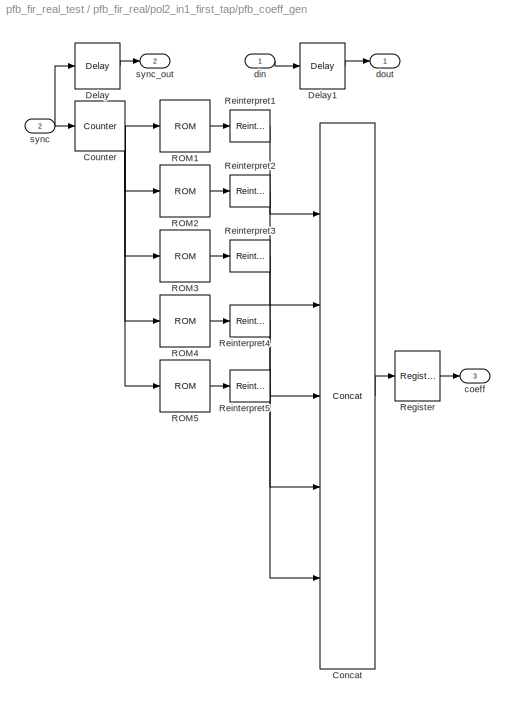
BLOCK [SubSystem] pfb_fir_real/pol2_in1_first_tap/pfb_coeff_gen
  AncestorBlock = casper_library/PFBs/pfb_coeff_gen
  AttributesFormatString = PFBSize=5, n_inputs=0, taps=5
  FunctionWithSeparateData = off
  MaskCallbackString = ||||||||
  MaskEnableString = on,on,on,on,on,on,on,on,on
  MaskIconFrame = on
  MaskIconOpaque = on
  MaskIconRotate = none
  MaskIconUnits = autoscale
  MaskInitialization = pfb_coeff_gen_init(gcb, ...\n    'PFBSize', PFBSize, ...\n    'CoeffBitWidth', CoeffBitWidth, ...\n    'TotalTaps', TotalTaps, ...\n    'CoeffDistMem', CoeffDistMem, ...\n    'WindowType', WindowType, ...\n    'bram_latency', bram_latency, ...\n    'n_inputs', n_inputs, ...\n    'nput', nput, ...\n    'fwidth', fwidth);
  MaskPromptString = Size of PFB: (2^? pnts)|Bitwidth of Coefficients:|Total Number of Taps:|Implement Coeff Gen in Distributed Memory|Windowing Function: |BRAM Latency|Number of Simultaneous Inputs: (2^?)|This is input number:|Bin Width (normal=1)
  MaskSelfModifiable = on
  MaskStyleString = edit,edit,edit,edit,edit,edit,edit,edit,edit
  MaskTabNameString = ,,,,,,,,
  MaskToolTipString = on,on,on,on,on,on,on,on,on
  MaskTunableValueString = on,on,on,on,on,on,on,on,on
  MaskType = pfb_coeff_gen
  MaskValueString = 5|10|5|0|chebwin|1|0|0|0.8
  MaskVarAliasString = ,,,,,,,,
  MaskVariables = PFBSize=@1;CoeffBitWidth=@2;TotalTaps=@3;CoeffDistMem=@4;WindowType=&5;bram_latency=@6;n_inputs=@7;nput=@8;fwidth=@9;
  MaskVisibilityString = on,on,on,on,on,on,on,on,on
  MinAlgLoopOccurrences = off
  Ports = [2, 3]
  RTWSystemCode = Auto
  UserData = DataTag8
  UserDataPersistent = on
BLOCK [Reference] pfb_fir_real/pol2_in1_first_tap/pfb_coeff_gen/Concat  REF=xbsIndex_r4/Concat
  Ports = [5, 1]
  SourceBlock = xbsIndex_r4/Concat
  SourceType = Xilinx Bus Concatenator Block
  block_type = concat
  block_version = 9.1.01
  dbl_ovrd = off
  has_advanced_control = 0
  infoedit = Concatenates two or more inputs.  Output will be cast to an unsigned value with the binary point at zero.
  num_inputs = 5
  sg_icon_stat = 55,546,1,1,white,blue,0,b68db4a4,right
  sg_mask_display = fprintf('','COMMENT: begin icon graphics');\npatch([0 55 55 0 ],[0 0 546 546 ],[0.77 0.82 0.91]);\npatch([13 4 17 4 13 28 32 36 52 40 28 19 32 19 28 40 52 36 32 28 13 ],[251 260 273 286 295 295 291 295 295 283 295 286 273 260 251 263 251 251 255 251 251 ],[0.98 0.96 0.92]);\nplot([0 55 55 0 0 ],[0 0 546 546 0 ]);\nfprintf('','COMMENT: end icon graphics');\nfprintf('','COMMENT: begin icon text');\n...<+127ch>
  sggui_pos = -1,-1,-1,-1
BLOCK [Reference] pfb_fir_real/pol2_in1_first_tap/pfb_coeff_gen/Counter  REF=xbsIndex_r4/Counter
  Ports = [1, 1]
  SourceBlock = xbsIndex_r4/Counter
  SourceType = Xilinx Counter Block
  arith_type = Unsigned
  bin_pt = 0
  block_type = counter
  block_version = 9.1.01
  cnt_by_val = 1
  cnt_to = Inf
  cnt_type = Free Running
  dbl_ovrd = off
  en = off
  explicit_period = on
  has_advanced_control = 0
  infoedit = Hardware notes: Free running counters are the least expensive in hardware.  A count limited counter is implemented by combining a counter with a comparator.
  load_pin = off
  n_bits = 5
  operation = Up
  period = 1
  rst = on
  sg_icon_stat = 50,50,1,1,white,blue,0,300e9576,right
  sg_mask_display = fprintf('','COMMENT: begin icon graphics');\npatch([0 60 60 0 ],[0 0 60 60 ],[0.77 0.82 0.91]);\npatch([14 4 18 4 14 30 34 38 55 42 29 20 35 20 29 42 55 38 34 30 14 ],[6 16 30 44 54 54 50 54 54 41 54 45 30 15 6 19 6 6 10 6 6 ],[0.98 0.96 0.92]);\nplot([0 60 60 0 0 ],[0 0 60 60 0 ]);\nfprintf('','COMMENT: end icon graphics');\nfprintf('','COMMENT: begin icon text');\ncolor('black');port_label('inpu...<+99ch>
  sggui_pos = -1,-1,-1,-1
  start_count = 0
  use_behavioral_HDL = off
  use_rpm = on
  xl_area = [0, 0, 0, 0, 0, 0, 0]
  xl_use_area = off
BLOCK [Reference] pfb_fir_real/pol2_in1_first_tap/pfb_coeff_gen/Delay  REF=xbsIndex_r4/Delay
  Ports = [1, 1]
  SourceBlock = xbsIndex_r4/Delay
  SourceType = Xilinx Delay Block
  block_type = delay
  block_version = 9.1.01
  dbl_ovrd = off
  en = off
  has_advanced_control = 0
  infoedit = Hardware notes: A delay line is a chain, each link of which is an SRL16 followed by a flip-flop.
  latency = bram_latency+1
  reg_retiming = off
  sg_icon_stat = 45,46,1,1,white,blue,0,0a7a6cf1,right
  sggui_pos = -1,-1,-1,-1
  xl_area = [0, 0, 0, 0, 0, 0, 0]
  xl_use_area = off
BLOCK [Reference] pfb_fir_real/pol2_in1_first_tap/pfb_coeff_gen/Delay1  REF=xbsIndex_r4/Delay
  Ports = [1, 1]
  SourceBlock = xbsIndex_r4/Delay
  SourceType = Xilinx Delay Block
  block_type = delay
  block_version = 9.1.01
  dbl_ovrd = off
  en = off
  has_advanced_control = 0
  infoedit = Hardware notes: A delay line is a chain, each link of which is an SRL16 followed by a flip-flop.
  latency = 2
  reg_retiming = off
  sg_icon_stat = 45,46,1,1,white,blue,0,0a7a6cf1,right
  sggui_pos = -1,-1,-1,-1
  xl_area = [0, 0, 0, 0, 0, 0, 0]
  xl_use_area = off
BLOCK [Reference] pfb_fir_real/pol2_in1_first_tap/pfb_coeff_gen/ROM1  REF=xbsIndex_r4/ROM
  Ports = [1, 1]
  SourceBlock = xbsIndex_r4/ROM
  SourceType = Xilinx Single Port Read-Only Memory Block
  arith_type = Signed  (2's comp)
  bin_pt = 9
  block_type = sprom
  block_version = 9.1.01
  dbl_ovrd = off
  depth = 32
  distributed_mem = Block RAM
  en = off
  has_advanced_control = 0
  initVector = pfb_coeff_gen_calc(5, 5,'chebwin',0, 0,0.8,1)
  init_reg = 0
  latency = 1
  n_bits = 10
  optimize = Area
  rst = off
  sg_icon_stat = 50,52,1,1,white,blue,0,a8b86474,right
  sggui_pos = -1,-1,-1,-1
  use_rpm = on
  xl_area = [0, 0, 0, 0, 0, 0, 0]
  xl_use_area = off
BLOCK [Reference] pfb_fir_real/pol2_in1_first_tap/pfb_coeff_gen/ROM2  REF=xbsIndex_r4/ROM
  Ports = [1, 1]
  SourceBlock = xbsIndex_r4/ROM
  SourceType = Xilinx Single Port Read-Only Memory Block
  arith_type = Signed  (2's comp)
  bin_pt = 9
  block_type = sprom
  block_version = 9.1.01
  dbl_ovrd = off
  depth = 32
  distributed_mem = Block RAM
  en = off
  has_advanced_control = 0
  initVector = pfb_coeff_gen_calc(5, 5,'chebwin',0, 0,0.8,2)
  init_reg = 0
  latency = 1
  n_bits = 10
  optimize = Area
  rst = off
  sg_icon_stat = 50,52,1,1,white,blue,0,a8b86474,right
  sggui_pos = -1,-1,-1,-1
  use_rpm = on
  xl_area = [0, 0, 0, 0, 0, 0, 0]
  xl_use_area = off
BLOCK [Reference] pfb_fir_real/pol2_in1_first_tap/pfb_coeff_gen/ROM3  REF=xbsIndex_r4/ROM
  Ports = [1, 1]
  SourceBlock = xbsIndex_r4/ROM
  SourceType = Xilinx Single Port Read-Only Memory Block
  arith_type = Signed  (2's comp)
  bin_pt = 9
  block_type = sprom
  block_version = 9.1.01
  dbl_ovrd = off
  depth = 32
  distributed_mem = Block RAM
  en = off
  has_advanced_control = 0
  initVector = pfb_coeff_gen_calc(5, 5,'chebwin',0, 0,0.8,3)
  init_reg = 0
  latency = 1
  n_bits = 10
  optimize = Area
  rst = off
  sg_icon_stat = 50,52,1,1,white,blue,0,a8b86474,right
  sggui_pos = -1,-1,-1,-1
  use_rpm = on
  xl_area = [0, 0, 0, 0, 0, 0, 0]
  xl_use_area = off
BLOCK [Reference] pfb_fir_real/pol2_in1_first_tap/pfb_coeff_gen/ROM4  REF=xbsIndex_r4/ROM
  Ports = [1, 1]
  SourceBlock = xbsIndex_r4/ROM
  SourceType = Xilinx Single Port Read-Only Memory Block
  arith_type = Signed  (2's comp)
  bin_pt = 9
  block_type = sprom
  block_version = 9.1.01
  dbl_ovrd = off
  depth = 32
  distributed_mem = Block RAM
  en = off
  has_advanced_control = 0
  initVector = pfb_coeff_gen_calc(5, 5,'chebwin',0, 0,0.8,4)
  init_reg = 0
  latency = 1
  n_bits = 10
  optimize = Area
  rst = off
  sg_icon_stat = 50,52,1,1,white,blue,0,a8b86474,right
  sggui_pos = -1,-1,-1,-1
  use_rpm = on
  xl_area = [0, 0, 0, 0, 0, 0, 0]
  xl_use_area = off
BLOCK [Reference] pfb_fir_real/pol2_in1_first_tap/pfb_coeff_gen/ROM5  REF=xbsIndex_r4/ROM
  Ports = [1, 1]
  SourceBlock = xbsIndex_r4/ROM
  SourceType = Xilinx Single Port Read-Only Memory Block
  arith_type = Signed  (2's comp)
  bin_pt = 9
  block_type = sprom
  block_version = 10.1.1
  dbl_ovrd = off
  depth = 32
  distributed_mem = Block RAM
  en = off
  has_advanced_control = 0
  initVector = pfb_coeff_gen_calc(5, 5,'chebwin',0, 0,0.8,5)
  init_reg = 0
  latency = 1
  n_bits = 10
  optimize = Area
  rst = off
  sg_icon_stat = 50,52,1,1,white,blue,0,a8b86474,right
  sg_mask_display = fprintf('','COMMENT: begin icon graphics');\npatch([0 50 50 0 ],[0 0 52 52 ],[0.77 0.82 0.91]);\npatch([11 3 15 3 11 24 28 32 46 35 24 16 28 16 24 35 46 32 28 24 11 ],[6 14 26 38 46 46 42 46 46 35 46 38 26 14 6 17 6 6 10 6 6 ],[0.98 0.96 0.92]);\nplot([0 50 50 0 0 ],[0 0 52 52 0 ]);\nfprintf('','COMMENT: end icon graphics');\nfprintf('','COMMENT: begin icon text');\ncolor('black');port_label('inpu...<+101ch>
  sggui_pos = -1,-1,-1,-1
  use_rpm = on
  xl_area = [0,0,0,0,0,0,0]
  xl_use_area = off
BLOCK [Reference] pfb_fir_real/pol2_in1_first_tap/pfb_coeff_gen/Register  REF=xbsIndex_r4/Register
  Ports = [1, 1]
  SourceBlock = xbsIndex_r4/Register
  SourceType = Xilinx Register Block
  block_type = register
  block_version = 9.1.01
  dbl_ovrd = off
  en = off
  has_advanced_control = 0
  init = 0
  rst = off
  sg_icon_stat = 45,50,1,1,white,blue,0,ac6b57db,right
  sg_mask_display = fprintf('','COMMENT: begin icon graphics');\npatch([0 60 60 0 ],[0 0 56 56 ],[0.77 0.82 0.91]);\npatch([15 6 19 6 15 30 34 38 54 41 29 20 32 20 29 41 54 38 34 30 15 ],[6 15 28 41 50 50 46 50 50 37 49 40 28 16 7 19 6 6 10 6 6 ],[0.98 0.96 0.92]);\nplot([0 60 60 0 0 ],[0 0 56 56 0 ]);\nfprintf('','COMMENT: end icon graphics');\nfprintf('','COMMENT: begin icon text');\ncolor('black');port_label('inpu...<+148ch>
  sggui_pos = -1,-1,-1,-1
  xl_area = [0, 0, 0, 0, 0, 0, 0]
  xl_use_area = off
BLOCK [Reference] pfb_fir_real/pol2_in1_first_tap/pfb_coeff_gen/Reinterpret1  REF=xbsIndex_r4/Reinterpret
  Ports = [1, 1]
  SourceBlock = xbsIndex_r4/Reinterpret
  SourceType = Xilinx Type Reinterpreter Block
  arith_type = Unsigned
  bin_pt = 0
  block_type = reinterpret
  block_version = 9.1.01
  force_arith_type = on
  force_bin_pt = on
  has_advanced_control = 0
  sg_icon_stat = 40,32,1,1,white,blue,0,8982c1db,right
  sggui_pos = -1,-1,-1,-1
BLOCK [Reference] pfb_fir_real/pol2_in1_first_tap/pfb_coeff_gen/Reinterpret2  REF=xbsIndex_r4/Reinterpret
  Ports = [1, 1]
  SourceBlock = xbsIndex_r4/Reinterpret
  SourceType = Xilinx Type Reinterpreter Block
  arith_type = Unsigned
  bin_pt = 0
  block_type = reinterpret
  block_version = 9.1.01
  force_arith_type = on
  force_bin_pt = on
  has_advanced_control = 0
  sg_icon_stat = 40,32,1,1,white,blue,0,8982c1db,right
  sggui_pos = -1,-1,-1,-1
BLOCK [Reference] pfb_fir_real/pol2_in1_first_tap/pfb_coeff_gen/Reinterpret3  REF=xbsIndex_r4/Reinterpret
  Ports = [1, 1]
  SourceBlock = xbsIndex_r4/Reinterpret
  SourceType = Xilinx Type Reinterpreter Block
  arith_type = Unsigned
  bin_pt = 0
  block_type = reinterpret
  block_version = 9.1.01
  force_arith_type = on
  force_bin_pt = on
  has_advanced_control = 0
  sg_icon_stat = 40,32,1,1,white,blue,0,8982c1db,right
  sggui_pos = -1,-1,-1,-1
BLOCK [Reference] pfb_fir_real/pol2_in1_first_tap/pfb_coeff_gen/Reinterpret4  REF=xbsIndex_r4/Reinterpret
  Ports = [1, 1]
  SourceBlock = xbsIndex_r4/Reinterpret
  SourceType = Xilinx Type Reinterpreter Block
  arith_type = Unsigned
  bin_pt = 0
  block_type = reinterpret
  block_version = 9.1.01
  force_arith_type = on
  force_bin_pt = on
  has_advanced_control = 0
  sg_icon_stat = 40,32,1,1,white,blue,0,8982c1db,right
  sggui_pos = -1,-1,-1,-1
BLOCK [Reference] pfb_fir_real/pol2_in1_first_tap/pfb_coeff_gen/Reinterpret5  REF=xbsIndex_r4/Reinterpret
  Ports = [1, 1]
  SourceBlock = xbsIndex_r4/Reinterpret
  SourceType = Xilinx Type Reinterpreter Block
  arith_type = Unsigned
  bin_pt = 0
  block_type = reinterpret
  block_version = 10.1.1
  force_arith_type = on
  force_bin_pt = on
  has_advanced_control = 0
  sg_icon_stat = 40,32,1,1,white,blue,0,8982c1db,right
  sg_mask_display = fprintf('','COMMENT: begin icon graphics');\npatch([0 40 40 0 ],[0 0 32 32 ],[0.77 0.82 0.91]);\npatch([11 6 13 6 11 19 21 23 32 25 18 13 20 13 18 25 32 23 21 19 11 ],[3 8 15 22 27 27 25 27 27 20 27 22 15 8 3 10 3 3 5 3 3 ],[0.98 0.96 0.92]);\nplot([0 40 40 0 0 ],[0 0 32 32 0 ]);\nfprintf('','COMMENT: end icon graphics');\nfprintf('','COMMENT: begin icon text');\ncolor('black');disp('reinterpret')...<+42ch>
  sggui_pos = -1,-1,-1,-1
BLOCK [Outport] pfb_fir_real/pol2_in1_first_tap/pfb_coeff_gen/coeff
  IconDisplay = Port number
  OutDataType = sfix(16)
  OutScaling = 2^0
  Port = 3
BLOCK [Inport] pfb_fir_real/pol2_in1_first_tap/pfb_coeff_gen/din
  IconDisplay = Port number
  OutDataType = sfix(16)
  OutScaling = 2^0
BLOCK [Outport] pfb_fir_real/pol2_in1_first_tap/pfb_coeff_gen/dout
  IconDisplay = Port number
  OutDataType = sfix(16)
  OutScaling = 2^0
BLOCK [Inport] pfb_fir_real/pol2_in1_first_tap/pfb_coeff_gen/sync
  IconDisplay = Port number
  OutDataType = sfix(16)
  OutScaling = 2^0
  Port = 2
BLOCK [Outport] pfb_fir_real/pol2_in1_first_tap/pfb_coeff_gen/sync_out
  IconDisplay = Port number
  OutDataType = sfix(16)
  OutScaling = 2^0
  Port = 2
BLOCK [Inport] pfb_fir_real/pol2_in1_first_tap/sync
  IconDisplay = Port number
  OutDataType = sfix(16)
  OutScaling = 2^0
  Port = 2
BLOCK [Reference] pfb_fir_real/pol2_in1_first_tap/sync_delay  REF=casper_library/Delays/sync_delay  (lib defined in mdl_138b2fc3435f, mdl_4ed325b712b3, +2 more)
  DelayLen = 2^(PFBSize-n_inputs)
  FunctionWithSeparateData = off
  Ports = [1, 1]
  RTWMemSecDataConstants = Inherit from model
  RTWMemSecDataInternal = Inherit from model
  RTWMemSecDataParameters = Inherit from model
  RTWMemSecFuncExecute = Inherit from model
  RTWMemSecFuncInitTerm = Inherit from model
  ShowPortLabels = FromPortIcon
  SourceBlock = casper_library/Delays/sync_delay
  SourceType = sync_delay
  SystemSampleTime = -1
BLOCK [Outport] pfb_fir_real/pol2_in1_first_tap/sync_out
  IconDisplay = Port number
  OutDataType = sfix(16)
  OutScaling = 2^0
  Port = 2
BLOCK [Outport] pfb_fir_real/pol2_in1_first_tap/taps_out
  IconDisplay = Port number
  OutDataType = sfix(16)
  OutScaling = 2^0
  Port = 4
BLOCK [SubSystem] pfb_fir_real/pol2_in1_last_tap
  AncestorBlock = casper_library/PFBs/last_tap_real
  AttributesFormatString = taps=5
  FunctionWithSeparateData = off
  MaskCallbackString = ||||||
  MaskEnableString = on,on,on,on,on,on,on
  MaskIconFrame = on
  MaskIconOpaque = on
  MaskIconRotate = none
  MaskIconUnits = autoscale
  MaskInitialization = last_tap_real_init(gcb,...\n    'TotalTaps', TotalTaps,...\n    'BitWidthIn', BitWidthIn,...\n    'BitWidthOut', BitWidthOut,...\n    'CoeffBitWidth', CoeffBitWidth,...\n    'add_latency', add_latency,...\n    'mult_latency', mult_latency,...\n    'quantization', quantization);
  MaskPromptString = Total Number of Taps:|Input Bitwidth:|Output Bitwidth:|Coeff Bitwidth:|Add Latency|Mult Latency|Quantization Behavior
  MaskSelfModifiable = on
  MaskStyleString = edit,edit,edit,edit,edit,edit,popup(Truncate|Round  (unbiased: +/- Inf)|Round  (unbiased: Even Values))
  MaskTabNameString = ,,,,,,
  MaskToolTipString = on,on,on,on,on,on,on
  MaskTunableValueString = on,on,on,on,on,on,on
  MaskType = last_tap_real
  MaskValueString = 5|10|22|10|2|3|Truncate
  MaskVarAliasString = ,,,,,,
  MaskVariables = TotalTaps=@1;BitWidthIn=@2;BitWidthOut=@3;CoeffBitWidth=@4;add_latency=@5;mult_latency=@6;quantization=&7;
  MaskVisibilityString = on,on,on,on,on,on,on
  MinAlgLoopOccurrences = off
  Ports = [4, 2]
  RTWSystemCode = Auto
  UserData = DataTag9
  UserDataPersistent = on
BLOCK [Reference] pfb_fir_real/pol2_in1_last_tap/Concat  REF=xbsIndex_r4/Concat
  Ports = [2, 1]
  SourceBlock = xbsIndex_r4/Concat
  SourceType = Xilinx Bus Concatenator Block
  block_type = concat
  block_version = 9.1.01
  dbl_ovrd = off
  has_advanced_control = 0
  infoedit = Concatenates two or more inputs.  Output will be cast to an unsigned value with the binary point at zero.
  num_inputs = 2
  sg_icon_stat = 50,55,1,1,white,blue,0,df1e5aba,right
  sggui_pos = -1,-1,-1,-1
BLOCK [Reference] pfb_fir_real/pol2_in1_last_tap/Delay  REF=xbsIndex_r4/Delay
  Ports = [1, 1]
  SourceBlock = xbsIndex_r4/Delay
  SourceType = Xilinx Delay Block
  block_type = delay
  block_version = 9.1.01
  dbl_ovrd = off
  en = off
  has_advanced_control = 0
  infoedit = Hardware notes: A delay line is a chain, each link of which is an SRL16 followed by a flip-flop.
  latency = mult_latency
  reg_retiming = off
  sg_icon_stat = 45,46,1,1,white,blue,0,eabd56db,right
  sg_mask_display = fprintf('','COMMENT: begin icon graphics');\npatch([0 60 60 0 ],[0 0 56 56 ],[0.77 0.82 0.91]);\npatch([15 6 19 6 15 30 34 38 54 41 29 20 32 20 29 41 54 38 34 30 15 ],[6 15 28 41 50 50 46 50 50 37 49 40 28 16 7 19 6 6 10 6 6 ],[0.98 0.96 0.92]);\nplot([0 60 60 0 0 ],[0 0 56 56 0 ]);\nfprintf('','COMMENT: end icon graphics');\nfprintf('','COMMENT: begin icon text');\ncolor('black');disp('z^{-3}','t...<+55ch>
  sggui_pos = -1,-1,-1,-1
  xl_area = [0, 0, 0, 0, 0, 0, 0]
  xl_use_area = off
BLOCK [Reference] pfb_fir_real/pol2_in1_last_tap/Mult  REF=xbsIndex_r4/Mult
  Ports = [2, 1]
  SourceBlock = xbsIndex_r4/Mult
  SourceType = Xilinx Multiplier Block
  arith_type = Signed  (2's comp)
  bin_pt = 2
  block_type = mult
  block_version = 9.1.01
  dbl_ovrd = off
  en = off
  has_advanced_control = 0
  infoedit = Hardware notes: To use the internal pipeline stage of the dedicated multiplier you must select 'Pipeline for maximum performance'.
  latency = mult_latency
  n_bits = 8
  opt = Speed
  optimum_pipeline = off
  overflow = Wrap
  pipeline = on
  placement_style = Rectangular shape
  precision = Full
  quantization = Truncate
  sg_icon_stat = 50,51,1,1,white,blue,0,9c0d74db,right
  sggui_pos = -1,-1,-1,-1
  use_behavioral_HDL = off
  use_embedded = on
  use_rpm = on
  xl_area = [0, 0, 0, 0, 0, 0, 0]
  xl_use_area = off
BLOCK [Reference] pfb_fir_real/pol2_in1_last_tap/Reinterpret  REF=xbsIndex_r4/Reinterpret
  Ports = [1, 1]
  SourceBlock = xbsIndex_r4/Reinterpret
  SourceType = Xilinx Type Reinterpreter Block
  arith_type = Signed  (2's comp)
  bin_pt = CoeffBitWidth - 1
  block_type = reinterpret
  block_version = 9.1.01
  force_arith_type = on
  force_bin_pt = on
  has_advanced_control = 0
  sg_icon_stat = 40,32,1,1,white,blue,0,8982c1db,right
  sggui_pos = -1,-1,-1,-1
BLOCK [Reference] pfb_fir_real/pol2_in1_last_tap/Reinterpret1  REF=xbsIndex_r4/Reinterpret
  Ports = [1, 1]
  SourceBlock = xbsIndex_r4/Reinterpret
  SourceType = Xilinx Type Reinterpreter Block
  arith_type = Signed  (2's comp)
  bin_pt = BitWidthIn - 1
  block_type = reinterpret
  block_version = 9.1.01
  force_arith_type = on
  force_bin_pt = on
  has_advanced_control = 0
  sg_icon_stat = 40,32,1,1,white,blue,0,8982c1db,right
  sggui_pos = -1,-1,-1,-1
BLOCK [Reference] pfb_fir_real/pol2_in1_last_tap/Reinterpret2  REF=xbsIndex_r4/Reinterpret
  Ports = [1, 1]
  SourceBlock = xbsIndex_r4/Reinterpret
  SourceType = Xilinx Type Reinterpreter Block
  arith_type = Unsigned
  bin_pt = 0
  block_type = reinterpret
  block_version = 9.1.01
  force_arith_type = on
  force_bin_pt = on
  has_advanced_control = 0
  sg_icon_stat = 40,32,1,1,white,blue,0,8982c1db,right
  sggui_pos = -1,-1,-1,-1
BLOCK [Inport] pfb_fir_real/pol2_in1_last_tap/coeff
  IconDisplay = Port number
  OutDataType = sfix(16)
  OutScaling = 2^0
  Port = 3
BLOCK [Inport] pfb_fir_real/pol2_in1_last_tap/din
  IconDisplay = Port number
  OutDataType = sfix(16)
  OutScaling = 2^0
BLOCK [Outport] pfb_fir_real/pol2_in1_last_tap/dout
  IconDisplay = Port number
  OutDataType = sfix(16)
  OutScaling = 2^0
BLOCK [SubSystem] pfb_fir_real/pol2_in1_last_tap/pfb_real_add_tree
  AttributesFormatString = taps=5, add_latency=2
  FunctionWithSeparateData = off
  MaskCallbackString = |||||
  MaskEnableString = on,on,on,on,on,on
  MaskIconFrame = on
  MaskIconOpaque = on
  MaskIconRotate = none
  MaskIconUnits = autoscale
  MaskInitialization = pfb_real_add_tree_init(gcb, ...\n    'TotalTaps', TotalTaps, ...\n    'BitWidthIn', BitWidthIn, ...\n    'BitWidthOut', BitWidthOut, ...\n    'CoeffBitWidth', CoeffBitWidth, ...\n    'add_latency', add_latency, ...\n    'quantization', quantization);
  MaskPromptString = Total Number of Taps:|Input Bitwidth:|Output Bitwidth:|Coeff Bitwidth:|Add Latency|Quantization Behavior
  MaskSelfModifiable = on
  MaskStyleString = edit,edit,edit,edit,edit,edit
  MaskTabNameString = ,,,,,
  MaskToolTipString = on,on,on,on,on,on
  MaskTunableValueString = on,on,on,on,on,on
  MaskType = pfb_real_add_tree
  MaskValueString = 5|10|22|10|2|Truncate
  MaskVarAliasString = ,,,,,
  MaskVariables = TotalTaps=@1;BitWidthIn=@2;BitWidthOut=@3;CoeffBitWidth=@4;add_latency=@5;quantization=&6;
  MaskVisibilityString = on,on,on,on,on,on
  MinAlgLoopOccurrences = off
  Ports = [2, 2]
  RTWSystemCode = Auto
  UserData = DataTag10
  UserDataPersistent = on
BLOCK [Reference] pfb_fir_real/pol2_in1_last_tap/pfb_real_add_tree/Reint0  REF=xbsIndex_r4/Reinterpret
  Ports = [1, 1]
  SourceBlock = xbsIndex_r4/Reinterpret
  SourceType = Xilinx Type Reinterpreter Block
  arith_type = Signed  (2's comp)
  bin_pt = CoeffBitWidth + BitWidthIn - 2
  block_type = reinterpret
  block_version = 9.1.01
  force_arith_type = on
  force_bin_pt = on
  has_advanced_control = 0
  sg_icon_stat = 30,12,1,1,white,blue,0,8982c1db,right
  sggui_pos = -1,-1,-1,-1
BLOCK [Reference] pfb_fir_real/pol2_in1_last_tap/pfb_real_add_tree/Reint1  REF=xbsIndex_r4/Reinterpret
  Ports = [1, 1]
  SourceBlock = xbsIndex_r4/Reinterpret
  SourceType = Xilinx Type Reinterpreter Block
  arith_type = Signed  (2's comp)
  bin_pt = CoeffBitWidth + BitWidthIn - 2
  block_type = reinterpret
  block_version = 9.1.01
  force_arith_type = on
  force_bin_pt = on
  has_advanced_control = 0
  sg_icon_stat = 30,12,1,1,white,blue,0,8982c1db,right
  sggui_pos = -1,-1,-1,-1
BLOCK [Reference] pfb_fir_real/pol2_in1_last_tap/pfb_real_add_tree/Reint2  REF=xbsIndex_r4/Reinterpret
  Ports = [1, 1]
  SourceBlock = xbsIndex_r4/Reinterpret
  SourceType = Xilinx Type Reinterpreter Block
  arith_type = Signed  (2's comp)
  bin_pt = CoeffBitWidth + BitWidthIn - 2
  block_type = reinterpret
  block_version = 9.1.01
  force_arith_type = on
  force_bin_pt = on
  has_advanced_control = 0
  sg_icon_stat = 30,12,1,1,white,blue,0,8982c1db,right
  sggui_pos = -1,-1,-1,-1
BLOCK [Reference] pfb_fir_real/pol2_in1_last_tap/pfb_real_add_tree/Reint3  REF=xbsIndex_r4/Reinterpret
  Ports = [1, 1]
  SourceBlock = xbsIndex_r4/Reinterpret
  SourceType = Xilinx Type Reinterpreter Block
  arith_type = Signed  (2's comp)
  bin_pt = CoeffBitWidth + BitWidthIn - 2
  block_type = reinterpret
  block_version = 9.1.01
  force_arith_type = on
  force_bin_pt = on
  has_advanced_control = 0
  sg_icon_stat = 30,12,1,1,white,blue,0,8982c1db,right
  sggui_pos = -1,-1,-1,-1
BLOCK [Reference] pfb_fir_real/pol2_in1_last_tap/pfb_real_add_tree/Reint4  REF=xbsIndex_r4/Reinterpret
  Ports = [1, 1]
  SourceBlock = xbsIndex_r4/Reinterpret
  SourceType = Xilinx Type Reinterpreter Block
  arith_type = Signed  (2's comp)
  bin_pt = CoeffBitWidth + BitWidthIn - 2
  block_type = reinterpret
  block_version = 10.1.1
  force_arith_type = on
  force_bin_pt = on
  has_advanced_control = 0
  sg_icon_stat = 30,12,1,1,white,blue,0,8982c1db,right
  sg_mask_display = fprintf('','COMMENT: begin icon graphics');\npatch([0 30 30 0 ],[0 0 12 12 ],[0.77 0.82 0.91]);\npatch([12 10 13 10 12 15 16 17 20 17 14 12 15 12 14 17 20 17 16 15 12 ],[1 3 6 9 11 11 10 11 11 8 11 9 6 3 1 4 1 1 2 1 1 ],[0.98 0.96 0.92]);\nplot([0 30 30 0 0 ],[0 0 12 12 0 ]);\nfprintf('','COMMENT: end icon graphics');\nfprintf('','COMMENT: begin icon text');\ncolor('black');disp('reinterpret');\nf...<+38ch>
  sggui_pos = -1,-1,-1,-1
BLOCK [Reference] pfb_fir_real/pol2_in1_last_tap/pfb_real_add_tree/Slice0  REF=xbsIndex_r4/Slice
  Ports = [1, 1]
  SourceBlock = xbsIndex_r4/Slice
  SourceType = Xilinx Bit Slice Extractor Block
  base0 = MSB of Input
  base1 = MSB of Input
  bit0 = 0
  bit1 = -0*(CoeffBitWidth + BitWidthIn)
  block_type = slice
  block_version = 9.1.01
  boolean_output = off
  dbl_ovrd = off
  has_advanced_control = 0
  mode = Upper Bit Location + Width
  nbits = CoeffBitWidth + BitWidthIn
  sg_icon_stat = 45,12,1,1,white,blue,0,b1026674,right
  sggui_pos = -1,-1,-1,-1
BLOCK [Reference] pfb_fir_real/pol2_in1_last_tap/pfb_real_add_tree/Slice1  REF=xbsIndex_r4/Slice
  Ports = [1, 1]
  SourceBlock = xbsIndex_r4/Slice
  SourceType = Xilinx Bit Slice Extractor Block
  base0 = MSB of Input
  base1 = MSB of Input
  bit0 = 0
  bit1 = -1*(CoeffBitWidth + BitWidthIn)
  block_type = slice
  block_version = 9.1.01
  boolean_output = off
  dbl_ovrd = off
  has_advanced_control = 0
  mode = Upper Bit Location + Width
  nbits = CoeffBitWidth + BitWidthIn
  sg_icon_stat = 45,12,1,1,white,blue,0,b1026674,right
  sggui_pos = -1,-1,-1,-1
BLOCK [Reference] pfb_fir_real/pol2_in1_last_tap/pfb_real_add_tree/Slice2  REF=xbsIndex_r4/Slice
  Ports = [1, 1]
  SourceBlock = xbsIndex_r4/Slice
  SourceType = Xilinx Bit Slice Extractor Block
  base0 = MSB of Input
  base1 = MSB of Input
  bit0 = 0
  bit1 = -2*(CoeffBitWidth + BitWidthIn)
  block_type = slice
  block_version = 9.1.01
  boolean_output = off
  dbl_ovrd = off
  has_advanced_control = 0
  mode = Upper Bit Location + Width
  nbits = CoeffBitWidth + BitWidthIn
  sg_icon_stat = 45,12,1,1,white,blue,0,b1026674,right
  sggui_pos = -1,-1,-1,-1
BLOCK [Reference] pfb_fir_real/pol2_in1_last_tap/pfb_real_add_tree/Slice3  REF=xbsIndex_r4/Slice
  Ports = [1, 1]
  SourceBlock = xbsIndex_r4/Slice
  SourceType = Xilinx Bit Slice Extractor Block
  base0 = MSB of Input
  base1 = MSB of Input
  bit0 = 0
  bit1 = -3*(CoeffBitWidth + BitWidthIn)
  block_type = slice
  block_version = 9.1.01
  boolean_output = off
  dbl_ovrd = off
  has_advanced_control = 0
  mode = Upper Bit Location + Width
  nbits = CoeffBitWidth + BitWidthIn
  sg_icon_stat = 45,12,1,1,white,blue,0,b1026674,right
  sggui_pos = -1,-1,-1,-1
BLOCK [Reference] pfb_fir_real/pol2_in1_last_tap/pfb_real_add_tree/Slice4  REF=xbsIndex_r4/Slice
  Ports = [1, 1]
  SourceBlock = xbsIndex_r4/Slice
  SourceType = Xilinx Bit Slice Extractor Block
  base0 = MSB of Input
  base1 = MSB of Input
  bit0 = 0
  bit1 = -4*(CoeffBitWidth + BitWidthIn)
  block_type = slice
  block_version = 10.1.1
  boolean_output = off
  dbl_ovrd = off
  has_advanced_control = 0
  mode = Upper Bit Location + Width
  nbits = CoeffBitWidth + BitWidthIn
  sg_icon_stat = 45,12,1,1,white,blue,0,b1026674,right
  sg_mask_display = fprintf('','COMMENT: begin icon graphics');\npatch([0 45 45 0 ],[0 0 12 12 ],[0.77 0.82 0.91]);\npatch([19 17 20 17 19 22 23 24 27 24 21 19 22 19 21 24 27 24 23 22 19 ],[1 3 6 9 11 11 10 11 11 8 11 9 6 3 1 4 1 1 2 1 1 ],[0.98 0.96 0.92]);\nplot([0 45 45 0 0 ],[0 0 12 12 0 ]);\nfprintf('','COMMENT: end icon graphics');\nfprintf('','COMMENT: begin icon text');\ncolor('black');port_label('output',1,'...<+49ch>
  sggui_pos = -1,-1,-1,-1
BLOCK [SubSystem] pfb_fir_real/pol2_in1_last_tap/pfb_real_add_tree/adder_tree1
  AncestorBlock = casper_library/Misc/adder_tree
  AttributesFormatString = latency 6
  FunctionWithSeparateData = off
  MaskCallbackString = |
  MaskDescription = Sums all inputs using a tree of adds and delays.
  MaskEnableString = on,on
  MaskHelp = eval('xlWeb([getenv(''MLIB_ROOT''), ''<path>''])')
  MaskIconFrame = on
  MaskIconOpaque = on
  MaskIconRotate = none
  MaskIconUnits = autoscale
  MaskInitialization = adder_tree_init(gcb, ...\n    'n_inputs', n_inputs, ...\n    'latency', latency);
  MaskPromptString = Number of Inputs|Add Latency
  MaskSelfModifiable = on
  MaskStyleString = edit,edit
  MaskTabNameString = ,
  MaskToolTipString = on,on
  MaskTunableValueString = on,on
  MaskType = adder_tree
  MaskValueString = 5|2
  MaskVarAliasString = ,
  MaskVariables = n_inputs=@1;latency=@2;
  MaskVisibilityString = on,on
  MinAlgLoopOccurrences = off
  Ports = [6, 2]
  RTWSystemCode = Auto
  UserData = DataTag11
  UserDataPersistent = on
BLOCK [Reference] pfb_fir_real/pol2_in1_last_tap/pfb_real_add_tree/adder_tree1/addr1  REF=xbsIndex_r4/AddSub
  Ports = [2, 1]
  SourceBlock = xbsIndex_r4/AddSub
  SourceType = Xilinx Adder/Subtractor Block
  arith_type = Unsigned
  bin_pt = 2
  block_type = addsub
  block_version = 9.1.01
  dbl_ovrd = off
  en = off
  has_advanced_control = 0
  latency = 2
  mode = Addition
  n_bits = 8
  overflow = Wrap
  pipelined = on
  precision = Full
  quantization = Truncate
  sg_icon_stat = 40,60,1,1,white,blue,0,89752214,right
  sggui_pos = -1,-1,-1,-1
  use_behavioral_HDL = off
  use_carryin = off
  use_carryout = off
  use_rpm = on
  xl_area = [0, 0, 0, 0, 0, 0, 0]
  xl_use_area = off
BLOCK [Reference] pfb_fir_real/pol2_in1_last_tap/pfb_real_add_tree/adder_tree1/addr2  REF=xbsIndex_r4/AddSub
  Ports = [2, 1]
  SourceBlock = xbsIndex_r4/AddSub
  SourceType = Xilinx Adder/Subtractor Block
  arith_type = Unsigned
  bin_pt = 14
  block_type = addsub
  block_version = 10.1.1
  dbl_ovrd = off
  en = off
  has_advanced_control = 0
  latency = 2
  mode = Addition
  n_bits = 16
  overflow = Wrap
  pipelined = on
  precision = Full
  quantization = Truncate
  sg_icon_stat = 40,60,1,1,white,blue,0,89752214,right
  sggui_pos = -1,-1,-1,-1
  use_behavioral_HDL = off
  use_carryin = off
  use_carryout = off
  use_rpm = on
  xl_area = [0,0,0,0,0,0,0]
  xl_use_area = off
BLOCK [Reference] pfb_fir_real/pol2_in1_last_tap/pfb_real_add_tree/adder_tree1/addr4  REF=xbsIndex_r4/AddSub
  Ports = [2, 1]
  SourceBlock = xbsIndex_r4/AddSub
  SourceType = Xilinx Adder/Subtractor Block
  arith_type = Unsigned
  bin_pt = 14
  block_type = addsub
  block_version = 10.1.1
  dbl_ovrd = off
  en = off
  has_advanced_control = 0
  latency = 2
  mode = Addition
  n_bits = 16
  overflow = Wrap
  pipelined = on
  precision = Full
  quantization = Truncate
  sg_icon_stat = 40,60,1,1,white,blue,0,89752214,right
  sggui_pos = -1,-1,-1,-1
  use_behavioral_HDL = off
  use_carryin = off
  use_carryout = off
  use_rpm = on
  xl_area = [0,0,0,0,0,0,0]
  xl_use_area = off
BLOCK [Reference] pfb_fir_real/pol2_in1_last_tap/pfb_real_add_tree/adder_tree1/addr6  REF=xbsIndex_r4/AddSub
  Ports = [2, 1]
  SourceBlock = xbsIndex_r4/AddSub
  SourceType = Xilinx Adder/Subtractor Block
  arith_type = Unsigned
  bin_pt = 14
  block_type = addsub
  block_version = 10.1.1
  dbl_ovrd = off
  en = off
  has_advanced_control = 0
  latency = 2
  mode = Addition
  n_bits = 16
  overflow = Wrap
  pipelined = on
  precision = Full
  quantization = Truncate
  sg_icon_stat = 40,60,1,1,white,blue,0,89752214,right
  sggui_pos = -1,-1,-1,-1
  use_behavioral_HDL = off
  use_carryin = off
  use_carryout = off
  use_rpm = on
  xl_area = [0,0,0,0,0,0,0]
  xl_use_area = off
BLOCK [Inport] pfb_fir_real/pol2_in1_last_tap/pfb_real_add_tree/adder_tree1/din1
  IconDisplay = Port number
  OutDataType = sfix(16)
  OutScaling = 2^0
  Port = 2
BLOCK [Inport] pfb_fir_real/pol2_in1_last_tap/pfb_real_add_tree/adder_tree1/din2
  IconDisplay = Port number
  OutDataType = sfix(16)
  OutScaling = 2^0
  Port = 3
BLOCK [Inport] pfb_fir_real/pol2_in1_last_tap/pfb_real_add_tree/adder_tree1/din3
  IconDisplay = Port number
  OutDataType = sfix(16)
  OutScaling = 2^0
  Port = 4
BLOCK [Inport] pfb_fir_real/pol2_in1_last_tap/pfb_real_add_tree/adder_tree1/din4
  IconDisplay = Port number
  Port = 5
BLOCK [Inport] pfb_fir_real/pol2_in1_last_tap/pfb_real_add_tree/adder_tree1/din5
  IconDisplay = Port number
  Port = 6
BLOCK [Reference] pfb_fir_real/pol2_in1_last_tap/pfb_real_add_tree/adder_tree1/dly3  REF=xbsIndex_r4/Delay
  Ports = [1, 1]
  SourceBlock = xbsIndex_r4/Delay
  SourceType = Xilinx Delay Block
  block_type = delay
  block_version = 10.1.1
  dbl_ovrd = off
  en = off
  has_advanced_control = 0
  infoedit = Hardware notes: A delay line is a chain, each link of which is an SRL16 followed by a flip-flop.
  latency = 2
  reg_retiming = off
  sg_icon_stat = 40,60,1,1,white,blue,0,0a7a6cf1,right
  sggui_pos = -1,-1,-1,-1
  xl_area = [0,0,0,0,0,0,0]
  xl_use_area = off
BLOCK [Reference] pfb_fir_real/pol2_in1_last_tap/pfb_real_add_tree/adder_tree1/dly5  REF=xbsIndex_r4/Delay
  Ports = [1, 1]
  SourceBlock = xbsIndex_r4/Delay
  SourceType = Xilinx Delay Block
  block_type = delay
  block_version = 10.1.1
  dbl_ovrd = off
  en = off
  has_advanced_control = 0
  infoedit = Hardware notes: A delay line is a chain, each link of which is an SRL16 followed by a flip-flop.
  latency = 2
  reg_retiming = off
  sg_icon_stat = 40,60,1,1,white,blue,0,0a7a6cf1,right
  sggui_pos = -1,-1,-1,-1
  xl_area = [0,0,0,0,0,0,0]
  xl_use_area = off
BLOCK [Outport] pfb_fir_real/pol2_in1_last_tap/pfb_real_add_tree/adder_tree1/dout
  IconDisplay = Port number
  OutDataType = sfix(16)
  OutScaling = 2^0
  Port = 2
BLOCK [Inport] pfb_fir_real/pol2_in1_last_tap/pfb_real_add_tree/adder_tree1/sync
  IconDisplay = Port number
  OutDataType = sfix(16)
  OutScaling = 2^0
BLOCK [Reference] pfb_fir_real/pol2_in1_last_tap/pfb_real_add_tree/adder_tree1/sync_delay  REF=xbsIndex_r4/Delay
  Ports = [1, 1]
  SourceBlock = xbsIndex_r4/Delay
  SourceType = Xilinx Delay Block
  block_type = delay
  block_version = 9.1.01
  dbl_ovrd = off
  en = off
  has_advanced_control = 0
  infoedit = Hardware notes: A delay line is a chain, each link of which is an SRL16 followed by a flip-flop.
  latency = 6
  reg_retiming = off
  sg_icon_stat = 30,30,1,1,white,blue,0,23386583,right
  sg_mask_display = fprintf('','COMMENT: begin icon graphics');\npatch([0 60 60 0 ],[0 0 56 56 ],[0.77 0.82 0.91]);\npatch([15 6 19 6 15 30 34 38 54 41 29 20 32 20 29 41 54 38 34 30 15 ],[6 15 28 41 50 50 46 50 50 37 49 40 28 16 7 19 6 6 10 6 6 ],[0.98 0.96 0.92]);\nplot([0 60 60 0 0 ],[0 0 56 56 0 ]);\nfprintf('','COMMENT: end icon graphics');\nfprintf('','COMMENT: begin icon text');\ncolor('black');disp('z^{-6}','t...<+55ch>
  sggui_pos = -1,-1,-1,-1
  xl_area = [0, 0, 0, 0, 0, 0, 0]
  xl_use_area = off
BLOCK [Outport] pfb_fir_real/pol2_in1_last_tap/pfb_real_add_tree/adder_tree1/sync_out
  IconDisplay = Port number
  OutDataType = sfix(16)
  OutScaling = 2^0
BLOCK [Reference] pfb_fir_real/pol2_in1_last_tap/pfb_real_add_tree/convert1  REF=xbsIndex_r4/Convert
  Ports = [1, 1]
  SourceBlock = xbsIndex_r4/Convert
  SourceType = Xilinx Type Converter Block
  arith_type = Signed  (2's comp)
  bin_pt = BitWidthOut-1
  block_type = convert
  block_version = 9.1.01
  dbl_ovrd = off
  has_advanced_control = 0
  infoedit = Hardware notes: rounding and saturating require hardware resources; truncating and wrapping do not.
  latency = add_latency
  n_bits = BitWidthOut
  overflow = Saturate
  pipeline = on
  quantization = Truncate
  sg_icon_stat = 30,14,1,1,white,blue,0,b1f514c1,right
  sg_mask_display = fprintf('','COMMENT: begin icon graphics');\npatch([0 45 45 0 ],[0 0 30 30 ],[0.77 0.82 0.91]);\npatch([15 10 17 10 15 23 25 27 35 28 22 17 23 17 22 28 35 27 25 23 15 ],[3 8 15 22 27 27 25 27 27 20 26 21 15 9 4 10 3 3 5 3 3 ],[0.98 0.96 0.92]);\nplot([0 45 45 0 0 ],[0 0 30 30 0 ]);\nfprintf('','COMMENT: end icon graphics');\nfprintf('','COMMENT: begin icon text');\ncolor('black');port_label('outpu...<+110ch>
  sggui_pos = -1,-1,-1,-1
  xl_area = [0, 0, 0, 0, 0, 0, 0]
  xl_use_area = off
BLOCK [Reference] pfb_fir_real/pol2_in1_last_tap/pfb_real_add_tree/delay1  REF=xbsIndex_r4/Delay
  Ports = [1, 1]
  SourceBlock = xbsIndex_r4/Delay
  SourceType = Xilinx Delay Block
  block_type = delay
  block_version = 9.1.01
  dbl_ovrd = off
  en = off
  has_advanced_control = 0
  infoedit = Hardware notes: A delay line is a chain, each link of which is an SRL16 followed by a flip-flop.
  latency = 2
  reg_retiming = off
  sg_icon_stat = 30,30,1,1,white,blue,0,0a7a6cf1,right
  sggui_pos = -1,-1,-1,-1
  xl_area = [0,0,0,0,0,0,0]
  xl_use_area = off
BLOCK [Inport] pfb_fir_real/pol2_in1_last_tap/pfb_real_add_tree/din
  IconDisplay = Port number
  OutDataType = sfix(16)
  OutScaling = 2^0
BLOCK [Outport] pfb_fir_real/pol2_in1_last_tap/pfb_real_add_tree/dout
  IconDisplay = Port number
  OutDataType = sfix(16)
  OutScaling = 2^0
BLOCK [Reference] pfb_fir_real/pol2_in1_last_tap/pfb_real_add_tree/scale1  REF=xbsIndex_r4/Scale
  Ports = [1, 1]
  SourceBlock = xbsIndex_r4/Scale
  SourceType = Xilinx Input Scaler Block
  block_type = scale
  block_version = 9.1.01
  dbl_ovrd = off
  has_advanced_control = 0
  infoedit = Scales input by a power of two by adjusting the binary point position.<P><P>Hardware notes: In hardware this block costs nothing.
  scale_factor = -4
  sg_icon_stat = 30,14,1,1,white,blue,0,769cf09b,right
  sg_mask_display = fprintf('','COMMENT: begin icon graphics');\npatch([0 55 55 0 ],[0 0 56 56 ],[0.77 0.82 0.91]);\npatch([13 4 17 4 13 28 32 36 52 40 28 19 32 19 28 40 52 36 32 28 13 ],[6 15 28 41 50 50 46 50 50 38 50 41 28 15 6 18 6 6 10 6 6 ],[0.98 0.96 0.92]);\nplot([0 55 55 0 0 ],[0 0 56 56 0 ]);\nfprintf('','COMMENT: end icon graphics');\nfprintf('','COMMENT: begin icon text');\ncolor('black');disp('\\bf{2^{-4...<+61ch>
  sggui_pos = -1,-1,-1,-1
BLOCK [Inport] pfb_fir_real/pol2_in1_last_tap/pfb_real_add_tree/sync
  IconDisplay = Port number
  OutDataType = sfix(16)
  OutScaling = 2^0
  Port = 2
BLOCK [Outport] pfb_fir_real/pol2_in1_last_tap/pfb_real_add_tree/sync_out
  IconDisplay = Port number
  OutDataType = sfix(16)
  OutScaling = 2^0
  Port = 2
BLOCK [Inport] pfb_fir_real/pol2_in1_last_tap/sync
  IconDisplay = Port number
  OutDataType = sfix(16)
  OutScaling = 2^0
  Port = 2
BLOCK [Outport] pfb_fir_real/pol2_in1_last_tap/sync_out
  IconDisplay = Port number
  OutDataType = sfix(16)
  OutScaling = 2^0
  Port = 2
BLOCK [Inport] pfb_fir_real/pol2_in1_last_tap/taps
  IconDisplay = Port number
  OutDataType = sfix(16)
  OutScaling = 2^0
  Port = 4
BLOCK [SubSystem] pfb_fir_real/pol2_in1_tap2
  AncestorBlock = casper_library/PFBs/tap_real
  FunctionWithSeparateData = off
  MaskCallbackString = |||||
  MaskEnableString = on,on,on,on,on,on
  MaskIconFrame = on
  MaskIconOpaque = on
  MaskIconRotate = none
  MaskIconUnits = autoscale
  MaskInitialization = cursys = gcb;\ndisp(cursys);\n
  MaskPromptString = Multiplier Latency|Coefficient Bit Width In|Coefficient Fractional Bits|Data/Sync Delay|Data Bit Width In|BRAM Latency
  MaskSelfModifiable = on
  MaskStyleString = edit,edit,edit,edit,edit,edit
  MaskTabNameString = ,,,,,
  MaskToolTipString = on,on,on,on,on,on
  MaskTunableValueString = on,on,on,on,on,on
  MaskType = pfb_tap_real
  MaskValueString = 3|10|9|32|10|1
  MaskVarAliasString = ,,,,,
  MaskVariables = mult_latency=@1;coeff_width=@2;coeff_frac_width=@3;delay=@4;data_width=@5;bram_latency=@6;
  MaskVisibilityString = on,on,on,on,on,on
  MinAlgLoopOccurrences = off
  Ports = [4, 4]
  RTWSystemCode = Auto
BLOCK [Reference] pfb_fir_real/pol2_in1_tap2/Concat  REF=xbsIndex_r4/Concat
  Ports = [2, 1]
  SourceBlock = xbsIndex_r4/Concat
  SourceType = Xilinx Bus Concatenator Block
  block_type = concat
  block_version = 9.1.01
  dbl_ovrd = off
  has_advanced_control = 0
  infoedit = Concatenates two or more inputs.  Output will be cast to an unsigned value with the binary point at zero.
  num_inputs = 2
  sg_icon_stat = 50,55,1,1,white,blue,0,df1e5aba,right
  sggui_pos = -1,-1,-1,-1
BLOCK [Reference] pfb_fir_real/pol2_in1_tap2/Mult  REF=xbsIndex_r4/Mult
  Ports = [2, 1]
  SourceBlock = xbsIndex_r4/Mult
  SourceType = Xilinx Multiplier Block
  arith_type = Signed  (2's comp)
  bin_pt = 2
  block_type = mult
  block_version = 9.1.01
  dbl_ovrd = off
  en = off
  has_advanced_control = 0
  infoedit = Hardware notes: To use the internal pipeline stage of the dedicated multiplier you must select 'Pipeline for maximum performance'.
  latency = mult_latency
  n_bits = 8
  opt = Speed
  optimum_pipeline = off
  overflow = Wrap
  pipeline = on
  placement_style = Rectangular shape
  precision = Full
  quantization = Truncate
  sg_icon_stat = 50,51,1,1,white,blue,0,9c0d74db,right
  sggui_pos = -1,-1,-1,-1
  use_behavioral_HDL = off
  use_embedded = on
  use_rpm = on
  xl_area = [0, 0, 0, 0, 0, 0, 0]
  xl_use_area = off
BLOCK [Reference] pfb_fir_real/pol2_in1_tap2/Reinterpret  REF=xbsIndex_r4/Reinterpret
  Ports = [1, 1]
  SourceBlock = xbsIndex_r4/Reinterpret
  SourceType = Xilinx Type Reinterpreter Block
  arith_type = Signed  (2's comp)
  bin_pt = coeff_frac_width
  block_type = reinterpret
  block_version = 9.1.01
  force_arith_type = on
  force_bin_pt = on
  has_advanced_control = 0
  sg_icon_stat = 40,32,1,1,white,blue,0,8982c1db,right
  sggui_pos = 2094,174,336,370
BLOCK [Reference] pfb_fir_real/pol2_in1_tap2/Reinterpret1  REF=xbsIndex_r4/Reinterpret
  Ports = [1, 1]
  SourceBlock = xbsIndex_r4/Reinterpret
  SourceType = Xilinx Type Reinterpreter Block
  arith_type = Signed  (2's comp)
  bin_pt = data_width - 1
  block_type = reinterpret
  block_version = 9.1.01
  force_arith_type = on
  force_bin_pt = on
  has_advanced_control = 0
  sg_icon_stat = 40,32,1,1,white,blue,0,8982c1db,right
  sggui_pos = 2607,154,336,370
BLOCK [Reference] pfb_fir_real/pol2_in1_tap2/Reinterpret2  REF=xbsIndex_r4/Reinterpret
  Ports = [1, 1]
  SourceBlock = xbsIndex_r4/Reinterpret
  SourceType = Xilinx Type Reinterpreter Block
  arith_type = Unsigned
  bin_pt = 0
  block_type = reinterpret
  block_version = 9.1.01
  force_arith_type = on
  force_bin_pt = on
  has_advanced_control = 0
  sg_icon_stat = 40,32,1,1,white,blue,0,8982c1db,right
  sggui_pos = 20,20,336,370
BLOCK [Reference] pfb_fir_real/pol2_in1_tap2/Slice  REF=xbsIndex_r4/Slice
  Ports = [1, 1]
  SourceBlock = xbsIndex_r4/Slice
  SourceType = Xilinx Bit Slice Extractor Block
  base0 = LSB of Input
  base1 = MSB of Input
  bit0 = 0
  bit1 = 0
  block_type = slice
  block_version = 9.1.01
  boolean_output = off
  dbl_ovrd = off
  has_advanced_control = 0
  mode = Lower Bit Location + Width
  nbits = coeff_width
  sg_icon_stat = 45,28,1,1,white,blue,0,b1026674,right
  sggui_pos = 2238,309,533,427
BLOCK [Reference] pfb_fir_real/pol2_in1_tap2/Slice1  REF=xbsIndex_r4/Slice
  Ports = [1, 1]
  SourceBlock = xbsIndex_r4/Slice
  SourceType = Xilinx Bit Slice Extractor Block
  base0 = LSB of Input
  base1 = MSB of Input
  bit0 = coeff_width
  bit1 = 0
  block_type = slice
  block_version = 9.1.01
  boolean_output = off
  dbl_ovrd = off
  has_advanced_control = 0
  mode = Two Bit Locations
  nbits = 0
  sg_icon_stat = 45,28,1,1,white,blue,0,b1026674,right
  sggui_pos = 2019,133,533,427
BLOCK [Inport] pfb_fir_real/pol2_in1_tap2/coeff
  IconDisplay = Port number
  OutDataType = sfix(16)
  OutScaling = 2^0
  Port = 3
BLOCK [Outport] pfb_fir_real/pol2_in1_tap2/coeff_out
  IconDisplay = Port number
  OutDataType = sfix(16)
  OutScaling = 2^0
  Port = 3
BLOCK [Reference] pfb_fir_real/pol2_in1_tap2/delay_bram  REF=casper_library/Delays/delay_bram  (lib defined in mdl_138b2fc3435f, mdl_4ed325b712b3, +2 more)
  DelayLen = delay
  FunctionWithSeparateData = off
  Ports = [1, 1]
  RTWMemSecDataConstants = Inherit from model
  RTWMemSecDataInternal = Inherit from model
  RTWMemSecDataParameters = Inherit from model
  RTWMemSecFuncExecute = Inherit from model
  RTWMemSecFuncInitTerm = Inherit from model
  ShowPortLabels = FromPortIcon
  SourceBlock = casper_library/Delays/delay_bram
  SourceType = delay_bram
  SystemSampleTime = -1
  bram_latency = bram_latency
BLOCK [Inport] pfb_fir_real/pol2_in1_tap2/din
  IconDisplay = Port number
  OutDataType = sfix(16)
  OutScaling = 2^0
BLOCK [Outport] pfb_fir_real/pol2_in1_tap2/dout
  IconDisplay = Port number
  OutDataType = sfix(16)
  OutScaling = 2^0
BLOCK [Inport] pfb_fir_real/pol2_in1_tap2/sync
  IconDisplay = Port number
  OutDataType = sfix(16)
  OutScaling = 2^0
  Port = 2
BLOCK [Reference] pfb_fir_real/pol2_in1_tap2/sync_delay  REF=casper_library/Delays/sync_delay  (lib defined in mdl_138b2fc3435f, mdl_4ed325b712b3, +2 more)
  DelayLen = delay
  FunctionWithSeparateData = off
  Ports = [1, 1]
  RTWMemSecDataConstants = Inherit from model
  RTWMemSecDataInternal = Inherit from model
  RTWMemSecDataParameters = Inherit from model
  RTWMemSecFuncExecute = Inherit from model
  RTWMemSecFuncInitTerm = Inherit from model
  ShowPortLabels = FromPortIcon
  SourceBlock = casper_library/Delays/sync_delay
  SourceType = sync_delay
  SystemSampleTime = -1
BLOCK [Outport] pfb_fir_real/pol2_in1_tap2/sync_out
  IconDisplay = Port number
  OutDataType = sfix(16)
  OutScaling = 2^0
  Port = 2
BLOCK [Inport] pfb_fir_real/pol2_in1_tap2/taps
  IconDisplay = Port number
  OutDataType = sfix(16)
  OutScaling = 2^0
  Port = 4
BLOCK [Outport] pfb_fir_real/pol2_in1_tap2/taps_out
  IconDisplay = Port number
  OutDataType = sfix(16)
  OutScaling = 2^0
  Port = 4
BLOCK [SubSystem] pfb_fir_real/pol2_in1_tap3
  AncestorBlock = casper_library/PFBs/tap_real
  FunctionWithSeparateData = off
  MaskCallbackString = |||||
  MaskEnableString = on,on,on,on,on,on
  MaskIconFrame = on
  MaskIconOpaque = on
  MaskIconRotate = none
  MaskIconUnits = autoscale
  MaskInitialization = cursys = gcb;\ndisp(cursys);\n
  MaskPromptString = Multiplier Latency|Coefficient Bit Width In|Coefficient Fractional Bits|Data/Sync Delay|Data Bit Width In|BRAM Latency
  MaskSelfModifiable = on
  MaskStyleString = edit,edit,edit,edit,edit,edit
  MaskTabNameString = ,,,,,
  MaskToolTipString = on,on,on,on,on,on
  MaskTunableValueString = on,on,on,on,on,on
  MaskType = pfb_tap_real
  MaskValueString = 3|10|9|32|10|1
  MaskVarAliasString = ,,,,,
  MaskVariables = mult_latency=@1;coeff_width=@2;coeff_frac_width=@3;delay=@4;data_width=@5;bram_latency=@6;
  MaskVisibilityString = on,on,on,on,on,on
  MinAlgLoopOccurrences = off
  Ports = [4, 4]
  RTWSystemCode = Auto
BLOCK [Reference] pfb_fir_real/pol2_in1_tap3/Concat  REF=xbsIndex_r4/Concat
  Ports = [2, 1]
  SourceBlock = xbsIndex_r4/Concat
  SourceType = Xilinx Bus Concatenator Block
  block_type = concat
  block_version = 9.1.01
  dbl_ovrd = off
  has_advanced_control = 0
  infoedit = Concatenates two or more inputs.  Output will be cast to an unsigned value with the binary point at zero.
  num_inputs = 2
  sg_icon_stat = 50,55,1,1,white,blue,0,df1e5aba,right
  sggui_pos = -1,-1,-1,-1
BLOCK [Reference] pfb_fir_real/pol2_in1_tap3/Mult  REF=xbsIndex_r4/Mult
  Ports = [2, 1]
  SourceBlock = xbsIndex_r4/Mult
  SourceType = Xilinx Multiplier Block
  arith_type = Signed  (2's comp)
  bin_pt = 2
  block_type = mult
  block_version = 9.1.01
  dbl_ovrd = off
  en = off
  has_advanced_control = 0
  infoedit = Hardware notes: To use the internal pipeline stage of the dedicated multiplier you must select 'Pipeline for maximum performance'.
  latency = mult_latency
  n_bits = 8
  opt = Speed
  optimum_pipeline = off
  overflow = Wrap
  pipeline = on
  placement_style = Rectangular shape
  precision = Full
  quantization = Truncate
  sg_icon_stat = 50,51,1,1,white,blue,0,9c0d74db,right
  sggui_pos = -1,-1,-1,-1
  use_behavioral_HDL = off
  use_embedded = on
  use_rpm = on
  xl_area = [0, 0, 0, 0, 0, 0, 0]
  xl_use_area = off
BLOCK [Reference] pfb_fir_real/pol2_in1_tap3/Reinterpret  REF=xbsIndex_r4/Reinterpret
  Ports = [1, 1]
  SourceBlock = xbsIndex_r4/Reinterpret
  SourceType = Xilinx Type Reinterpreter Block
  arith_type = Signed  (2's comp)
  bin_pt = coeff_frac_width
  block_type = reinterpret
  block_version = 9.1.01
  force_arith_type = on
  force_bin_pt = on
  has_advanced_control = 0
  sg_icon_stat = 40,32,1,1,white,blue,0,8982c1db,right
  sggui_pos = 2094,174,336,370
BLOCK [Reference] pfb_fir_real/pol2_in1_tap3/Reinterpret1  REF=xbsIndex_r4/Reinterpret
  Ports = [1, 1]
  SourceBlock = xbsIndex_r4/Reinterpret
  SourceType = Xilinx Type Reinterpreter Block
  arith_type = Signed  (2's comp)
  bin_pt = data_width - 1
  block_type = reinterpret
  block_version = 9.1.01
  force_arith_type = on
  force_bin_pt = on
  has_advanced_control = 0
  sg_icon_stat = 40,32,1,1,white,blue,0,8982c1db,right
  sggui_pos = 2607,154,336,370
BLOCK [Reference] pfb_fir_real/pol2_in1_tap3/Reinterpret2  REF=xbsIndex_r4/Reinterpret
  Ports = [1, 1]
  SourceBlock = xbsIndex_r4/Reinterpret
  SourceType = Xilinx Type Reinterpreter Block
  arith_type = Unsigned
  bin_pt = 0
  block_type = reinterpret
  block_version = 9.1.01
  force_arith_type = on
  force_bin_pt = on
  has_advanced_control = 0
  sg_icon_stat = 40,32,1,1,white,blue,0,8982c1db,right
  sggui_pos = 20,20,336,370
BLOCK [Reference] pfb_fir_real/pol2_in1_tap3/Slice  REF=xbsIndex_r4/Slice
  Ports = [1, 1]
  SourceBlock = xbsIndex_r4/Slice
  SourceType = Xilinx Bit Slice Extractor Block
  base0 = LSB of Input
  base1 = MSB of Input
  bit0 = 0
  bit1 = 0
  block_type = slice
  block_version = 9.1.01
  boolean_output = off
  dbl_ovrd = off
  has_advanced_control = 0
  mode = Lower Bit Location + Width
  nbits = coeff_width
  sg_icon_stat = 45,28,1,1,white,blue,0,b1026674,right
  sggui_pos = 2238,309,533,427
BLOCK [Reference] pfb_fir_real/pol2_in1_tap3/Slice1  REF=xbsIndex_r4/Slice
  Ports = [1, 1]
  SourceBlock = xbsIndex_r4/Slice
  SourceType = Xilinx Bit Slice Extractor Block
  base0 = LSB of Input
  base1 = MSB of Input
  bit0 = coeff_width
  bit1 = 0
  block_type = slice
  block_version = 9.1.01
  boolean_output = off
  dbl_ovrd = off
  has_advanced_control = 0
  mode = Two Bit Locations
  nbits = 0
  sg_icon_stat = 45,28,1,1,white,blue,0,b1026674,right
  sggui_pos = 2019,133,533,427
BLOCK [Inport] pfb_fir_real/pol2_in1_tap3/coeff
  IconDisplay = Port number
  OutDataType = sfix(16)
  OutScaling = 2^0
  Port = 3
BLOCK [Outport] pfb_fir_real/pol2_in1_tap3/coeff_out
  IconDisplay = Port number
  OutDataType = sfix(16)
  OutScaling = 2^0
  Port = 3
BLOCK [Reference] pfb_fir_real/pol2_in1_tap3/delay_bram  REF=casper_library/Delays/delay_bram  (lib defined in mdl_138b2fc3435f, mdl_4ed325b712b3, +2 more)
  DelayLen = delay
  FunctionWithSeparateData = off
  Ports = [1, 1]
  RTWMemSecDataConstants = Inherit from model
  RTWMemSecDataInternal = Inherit from model
  RTWMemSecDataParameters = Inherit from model
  RTWMemSecFuncExecute = Inherit from model
  RTWMemSecFuncInitTerm = Inherit from model
  ShowPortLabels = FromPortIcon
  SourceBlock = casper_library/Delays/delay_bram
  SourceType = delay_bram
  SystemSampleTime = -1
  bram_latency = bram_latency
BLOCK [Inport] pfb_fir_real/pol2_in1_tap3/din
  IconDisplay = Port number
  OutDataType = sfix(16)
  OutScaling = 2^0
BLOCK [Outport] pfb_fir_real/pol2_in1_tap3/dout
  IconDisplay = Port number
  OutDataType = sfix(16)
  OutScaling = 2^0
BLOCK [Inport] pfb_fir_real/pol2_in1_tap3/sync
  IconDisplay = Port number
  OutDataType = sfix(16)
  OutScaling = 2^0
  Port = 2
BLOCK [Reference] pfb_fir_real/pol2_in1_tap3/sync_delay  REF=casper_library/Delays/sync_delay  (lib defined in mdl_138b2fc3435f, mdl_4ed325b712b3, +2 more)
  DelayLen = delay
  FunctionWithSeparateData = off
  Ports = [1, 1]
  RTWMemSecDataConstants = Inherit from model
  RTWMemSecDataInternal = Inherit from model
  RTWMemSecDataParameters = Inherit from model
  RTWMemSecFuncExecute = Inherit from model
  RTWMemSecFuncInitTerm = Inherit from model
  ShowPortLabels = FromPortIcon
  SourceBlock = casper_library/Delays/sync_delay
  SourceType = sync_delay
  SystemSampleTime = -1
BLOCK [Outport] pfb_fir_real/pol2_in1_tap3/sync_out
  IconDisplay = Port number
  OutDataType = sfix(16)
  OutScaling = 2^0
  Port = 2
BLOCK [Inport] pfb_fir_real/pol2_in1_tap3/taps
  IconDisplay = Port number
  OutDataType = sfix(16)
  OutScaling = 2^0
  Port = 4
BLOCK [Outport] pfb_fir_real/pol2_in1_tap3/taps_out
  IconDisplay = Port number
  OutDataType = sfix(16)
  OutScaling = 2^0
  Port = 4
BLOCK [Reference] pfb_fir_real/pol2_in1_tap4  REF=casper_library/PFBs/tap_real  (lib defined in mdl_138b2fc3435f, mdl_4ed325b712b3, +2 more)
  FunctionWithSeparateData = off
  Ports = [4, 4]
  RTWMemSecDataConstants = Inherit from model
  RTWMemSecDataInternal = Inherit from model
  RTWMemSecDataParameters = Inherit from model
  RTWMemSecFuncExecute = Inherit from model
  RTWMemSecFuncInitTerm = Inherit from model
  ShowPortLabels = FromPortIcon
  SourceBlock = casper_library/PFBs/tap_real
  SourceType = pfb_tap_real
  SystemSampleTime = -1
  bram_latency = 1
  coeff_frac_width = 9
  coeff_width = 10
  data_width = 10
  delay = 32
  mult_latency = 3
BLOCK [Outport] pfb_fir_real/pol2_out1
  IconDisplay = Port number
  OutDataType = sfix(16)
  OutScaling = 2^0
  Port = 3
BLOCK [Inport] pfb_fir_real/sync
  IconDisplay = Port number
  OutDataType = sfix(16)
  OutScaling = 2^0
BLOCK [Outport] pfb_fir_real/sync_out
  IconDisplay = Port number
  OutDataType = sfix(16)
  OutScaling = 2^0
LINE Demux:1 -> Scope:7
LINE Demux:2 -> Scope:8
LINE Demux:3 -> Scope:9
LINE From File:1 -> Demux:1
NET Gateway In1:1 -> Gateway Out6:1, pfb_fir_real:2
NET Gateway In4:1 -> Gateway Out9:1, pfb_fir_real:3
NET Gateway In:1 -> Gateway Out5:1, pfb_fir_real:1
NET Gateway Out1:1 -> Mux:2, Scope:5
NET Gateway Out2:1 -> Mux:3, Scope:6
LINE Gateway Out5:1 -> Scope:1
LINE Gateway Out6:1 -> Scope:2
LINE Gateway Out9:1 -> Scope:3
NET Gateway Out:1 -> Mux:1, Scope:4
LINE Mux:1 -> To File:1
LINE Pulse\nGenerator:1 -> Gateway In:1
LINE Sine Wave1:1 -> Gateway In4:1
LINE Sine Wave:1 -> Gateway In1:1
LINE pfb_fir_real/pol1_in1:1 -> pfb_fir_real/pol1_in1_first_tap:1
LINE pfb_fir_real/pol1_in1_first_tap/Mult:1 -> pfb_fir_real/pol1_in1_first_tap/Reinterpret1:1
LINE pfb_fir_real/pol1_in1_first_tap/Reinterpret1:1 -> pfb_fir_real/pol1_in1_first_tap/taps_out:1
LINE pfb_fir_real/pol1_in1_first_tap/Reinterpret2:1 -> pfb_fir_real/pol1_in1_first_tap/Mult:1
LINE pfb_fir_real/pol1_in1_first_tap/Reinterpret:1 -> pfb_fir_real/pol1_in1_first_tap/Mult:2
LINE pfb_fir_real/pol1_in1_first_tap/Slice1:1 -> pfb_fir_real/pol1_in1_first_tap/coeff_out:1
LINE pfb_fir_real/pol1_in1_first_tap/Slice:1 -> pfb_fir_real/pol1_in1_first_tap/Reinterpret:1
LINE pfb_fir_real/pol1_in1_first_tap/delay_bram:1 -> pfb_fir_real/pol1_in1_first_tap/dout:1
LINE pfb_fir_real/pol1_in1_first_tap/din:1 -> pfb_fir_real/pol1_in1_first_tap/pfb_coeff_gen:1
LINE pfb_fir_real/pol1_in1_first_tap/pfb_coeff_gen/Concat:1 -> pfb_fir_real/pol1_in1_first_tap/pfb_coeff_gen/Register:1
NET pfb_fir_real/pol1_in1_first_tap/pfb_coeff_gen/Counter:1 -> pfb_fir_real/pol1_in1_first_tap/pfb_coeff_gen/ROM1:1, pfb_fir_real/pol1_in1_first_tap/pfb_coeff_gen/ROM2:1, pfb_fir_real/pol1_in1_first_tap/pfb_coeff_gen/ROM3:1, pfb_fir_real/pol1_in1_first_tap/pfb_coeff_gen/ROM4:1, pfb_fir_real/pol1_in1_first_tap/pfb_coeff_gen/ROM5:1
LINE pfb_fir_real/pol1_in1_first_tap/pfb_coeff_gen/Delay1:1 -> pfb_fir_real/pol1_in1_first_tap/pfb_coeff_gen/dout:1
LINE pfb_fir_real/pol1_in1_first_tap/pfb_coeff_gen/Delay:1 -> pfb_fir_real/pol1_in1_first_tap/pfb_coeff_gen/sync_out:1
LINE pfb_fir_real/pol1_in1_first_tap/pfb_coeff_gen/ROM1:1 -> pfb_fir_real/pol1_in1_first_tap/pfb_coeff_gen/Reinterpret1:1
LINE pfb_fir_real/pol1_in1_first_tap/pfb_coeff_gen/ROM2:1 -> pfb_fir_real/pol1_in1_first_tap/pfb_coeff_gen/Reinterpret2:1
LINE pfb_fir_real/pol1_in1_first_tap/pfb_coeff_gen/ROM3:1 -> pfb_fir_real/pol1_in1_first_tap/pfb_coeff_gen/Reinterpret3:1
LINE pfb_fir_real/pol1_in1_first_tap/pfb_coeff_gen/ROM4:1 -> pfb_fir_real/pol1_in1_first_tap/pfb_coeff_gen/Reinterpret4:1
LINE pfb_fir_real/pol1_in1_first_tap/pfb_coeff_gen/ROM5:1 -> pfb_fir_real/pol1_in1_first_tap/pfb_coeff_gen/Reinterpret5:1
LINE pfb_fir_real/pol1_in1_first_tap/pfb_coeff_gen/Register:1 -> pfb_fir_real/pol1_in1_first_tap/pfb_coeff_gen/coeff:1
LINE pfb_fir_real/pol1_in1_first_tap/pfb_coeff_gen/Reinterpret1:1 -> pfb_fir_real/pol1_in1_first_tap/pfb_coeff_gen/Concat:1
LINE pfb_fir_real/pol1_in1_first_tap/pfb_coeff_gen/Reinterpret2:1 -> pfb_fir_real/pol1_in1_first_tap/pfb_coeff_gen/Concat:2
LINE pfb_fir_real/pol1_in1_first_tap/pfb_coeff_gen/Reinterpret3:1 -> pfb_fir_real/pol1_in1_first_tap/pfb_coeff_gen/Concat:3
LINE pfb_fir_real/pol1_in1_first_tap/pfb_coeff_gen/Reinterpret4:1 -> pfb_fir_real/pol1_in1_first_tap/pfb_coeff_gen/Concat:4
LINE pfb_fir_real/pol1_in1_first_tap/pfb_coeff_gen/Reinterpret5:1 -> pfb_fir_real/pol1_in1_first_tap/pfb_coeff_gen/Concat:5
LINE pfb_fir_real/pol1_in1_first_tap/pfb_coeff_gen/din:1 -> pfb_fir_real/pol1_in1_first_tap/pfb_coeff_gen/Delay1:1
NET pfb_fir_real/pol1_in1_first_tap/pfb_coeff_gen/sync:1 -> pfb_fir_real/pol1_in1_first_tap/pfb_coeff_gen/Counter:1, pfb_fir_real/pol1_in1_first_tap/pfb_coeff_gen/Delay:1
NET pfb_fir_real/pol1_in1_first_tap/pfb_coeff_gen:1 -> pfb_fir_real/pol1_in1_first_tap/Reinterpret2:1, pfb_fir_real/pol1_in1_first_tap/delay_bram:1
LINE pfb_fir_real/pol1_in1_first_tap/pfb_coeff_gen:2 -> pfb_fir_real/pol1_in1_first_tap/sync_delay:1
NET pfb_fir_real/pol1_in1_first_tap/pfb_coeff_gen:3 -> pfb_fir_real/pol1_in1_first_tap/Slice1:1, pfb_fir_real/pol1_in1_first_tap/Slice:1
LINE pfb_fir_real/pol1_in1_first_tap/sync:1 -> pfb_fir_real/pol1_in1_first_tap/pfb_coeff_gen:2
LINE pfb_fir_real/pol1_in1_first_tap/sync_delay:1 -> pfb_fir_real/pol1_in1_first_tap/sync_out:1
LINE pfb_fir_real/pol1_in1_first_tap:1 -> pfb_fir_real/pol1_in1_tap2:1
LINE pfb_fir_real/pol1_in1_first_tap:2 -> pfb_fir_real/pol1_in1_tap2:2
LINE pfb_fir_real/pol1_in1_first_tap:3 -> pfb_fir_real/pol1_in1_tap2:3
LINE pfb_fir_real/pol1_in1_first_tap:4 -> pfb_fir_real/pol1_in1_tap2:4
LINE pfb_fir_real/pol1_in1_last_tap/Concat:1 -> pfb_fir_real/pol1_in1_last_tap/pfb_real_add_tree:1
LINE pfb_fir_real/pol1_in1_last_tap/Delay:1 -> pfb_fir_real/pol1_in1_last_tap/pfb_real_add_tree:2
LINE pfb_fir_real/pol1_in1_last_tap/Mult:1 -> pfb_fir_real/pol1_in1_last_tap/Reinterpret2:1
LINE pfb_fir_real/pol1_in1_last_tap/Reinterpret1:1 -> pfb_fir_real/pol1_in1_last_tap/Mult:1
LINE pfb_fir_real/pol1_in1_last_tap/Reinterpret2:1 -> pfb_fir_real/pol1_in1_last_tap/Concat:1
LINE pfb_fir_real/pol1_in1_last_tap/Reinterpret:1 -> pfb_fir_real/pol1_in1_last_tap/Mult:2
LINE pfb_fir_real/pol1_in1_last_tap/coeff:1 -> pfb_fir_real/pol1_in1_last_tap/Reinterpret:1
LINE pfb_fir_real/pol1_in1_last_tap/din:1 -> pfb_fir_real/pol1_in1_last_tap/Reinterpret1:1
LINE pfb_fir_real/pol1_in1_last_tap/pfb_real_add_tree/Reint0:1 -> pfb_fir_real/pol1_in1_last_tap/pfb_real_add_tree/adder_tree1:2
LINE pfb_fir_real/pol1_in1_last_tap/pfb_real_add_tree/Reint1:1 -> pfb_fir_real/pol1_in1_last_tap/pfb_real_add_tree/adder_tree1:3
LINE pfb_fir_real/pol1_in1_last_tap/pfb_real_add_tree/Reint2:1 -> pfb_fir_real/pol1_in1_last_tap/pfb_real_add_tree/adder_tree1:4
LINE pfb_fir_real/pol1_in1_last_tap/pfb_real_add_tree/Reint3:1 -> pfb_fir_real/pol1_in1_last_tap/pfb_real_add_tree/adder_tree1:5
LINE pfb_fir_real/pol1_in1_last_tap/pfb_real_add_tree/Reint4:1 -> pfb_fir_real/pol1_in1_last_tap/pfb_real_add_tree/adder_tree1:6
LINE pfb_fir_real/pol1_in1_last_tap/pfb_real_add_tree/Slice0:1 -> pfb_fir_real/pol1_in1_last_tap/pfb_real_add_tree/Reint0:1
LINE pfb_fir_real/pol1_in1_last_tap/pfb_real_add_tree/Slice1:1 -> pfb_fir_real/pol1_in1_last_tap/pfb_real_add_tree/Reint1:1
LINE pfb_fir_real/pol1_in1_last_tap/pfb_real_add_tree/Slice2:1 -> pfb_fir_real/pol1_in1_last_tap/pfb_real_add_tree/Reint2:1
LINE pfb_fir_real/pol1_in1_last_tap/pfb_real_add_tree/Slice3:1 -> pfb_fir_real/pol1_in1_last_tap/pfb_real_add_tree/Reint3:1
LINE pfb_fir_real/pol1_in1_last_tap/pfb_real_add_tree/Slice4:1 -> pfb_fir_real/pol1_in1_last_tap/pfb_real_add_tree/Reint4:1
LINE pfb_fir_real/pol1_in1_last_tap/pfb_real_add_tree/adder_tree1/addr1:1 -> pfb_fir_real/pol1_in1_last_tap/pfb_real_add_tree/adder_tree1/addr4:1
LINE pfb_fir_real/pol1_in1_last_tap/pfb_real_add_tree/adder_tree1/addr2:1 -> pfb_fir_real/pol1_in1_last_tap/pfb_real_add_tree/adder_tree1/addr4:2
LINE pfb_fir_real/pol1_in1_last_tap/pfb_real_add_tree/adder_tree1/addr4:1 -> pfb_fir_real/pol1_in1_last_tap/pfb_real_add_tree/adder_tree1/addr6:1
LINE pfb_fir_real/pol1_in1_last_tap/pfb_real_add_tree/adder_tree1/addr6:1 -> pfb_fir_real/pol1_in1_last_tap/pfb_real_add_tree/adder_tree1/dout:1
LINE pfb_fir_real/pol1_in1_last_tap/pfb_real_add_tree/adder_tree1/din1:1 -> pfb_fir_real/pol1_in1_last_tap/pfb_real_add_tree/adder_tree1/addr1:1
LINE pfb_fir_real/pol1_in1_last_tap/pfb_real_add_tree/adder_tree1/din2:1 -> pfb_fir_real/pol1_in1_last_tap/pfb_real_add_tree/adder_tree1/addr1:2
LINE pfb_fir_real/pol1_in1_last_tap/pfb_real_add_tree/adder_tree1/din3:1 -> pfb_fir_real/pol1_in1_last_tap/pfb_real_add_tree/adder_tree1/addr2:1
LINE pfb_fir_real/pol1_in1_last_tap/pfb_real_add_tree/adder_tree1/din4:1 -> pfb_fir_real/pol1_in1_last_tap/pfb_real_add_tree/adder_tree1/addr2:2
LINE pfb_fir_real/pol1_in1_last_tap/pfb_real_add_tree/adder_tree1/din5:1 -> pfb_fir_real/pol1_in1_last_tap/pfb_real_add_tree/adder_tree1/dly3:1
LINE pfb_fir_real/pol1_in1_last_tap/pfb_real_add_tree/adder_tree1/dly3:1 -> pfb_fir_real/pol1_in1_last_tap/pfb_real_add_tree/adder_tree1/dly5:1
LINE pfb_fir_real/pol1_in1_last_tap/pfb_real_add_tree/adder_tree1/dly5:1 -> pfb_fir_real/pol1_in1_last_tap/pfb_real_add_tree/adder_tree1/addr6:2
LINE pfb_fir_real/pol1_in1_last_tap/pfb_real_add_tree/adder_tree1/sync:1 -> pfb_fir_real/pol1_in1_last_tap/pfb_real_add_tree/adder_tree1/sync_delay:1
LINE pfb_fir_real/pol1_in1_last_tap/pfb_real_add_tree/adder_tree1/sync_delay:1 -> pfb_fir_real/pol1_in1_last_tap/pfb_real_add_tree/adder_tree1/sync_out:1
LINE pfb_fir_real/pol1_in1_last_tap/pfb_real_add_tree/adder_tree1:1 -> pfb_fir_real/pol1_in1_last_tap/pfb_real_add_tree/delay1:1
LINE pfb_fir_real/pol1_in1_last_tap/pfb_real_add_tree/adder_tree1:2 -> pfb_fir_real/pol1_in1_last_tap/pfb_real_add_tree/scale1:1
LINE pfb_fir_real/pol1_in1_last_tap/pfb_real_add_tree/convert1:1 -> pfb_fir_real/pol1_in1_last_tap/pfb_real_add_tree/dout:1
LINE pfb_fir_real/pol1_in1_last_tap/pfb_real_add_tree/delay1:1 -> pfb_fir_real/pol1_in1_last_tap/pfb_real_add_tree/sync_out:1
NET pfb_fir_real/pol1_in1_last_tap/pfb_real_add_tree/din:1 -> pfb_fir_real/pol1_in1_last_tap/pfb_real_add_tree/Slice0:1, pfb_fir_real/pol1_in1_last_tap/pfb_real_add_tree/Slice1:1, pfb_fir_real/pol1_in1_last_tap/pfb_real_add_tree/Slice2:1, pfb_fir_real/pol1_in1_last_tap/pfb_real_add_tree/Slice3:1, pfb_fir_real/pol1_in1_last_tap/pfb_real_add_tree/Slice4:1
LINE pfb_fir_real/pol1_in1_last_tap/pfb_real_add_tree/scale1:1 -> pfb_fir_real/pol1_in1_last_tap/pfb_real_add_tree/convert1:1
LINE pfb_fir_real/pol1_in1_last_tap/pfb_real_add_tree/sync:1 -> pfb_fir_real/pol1_in1_last_tap/pfb_real_add_tree/adder_tree1:1
LINE pfb_fir_real/pol1_in1_last_tap/pfb_real_add_tree:1 -> pfb_fir_real/pol1_in1_last_tap/dout:1
LINE pfb_fir_real/pol1_in1_last_tap/pfb_real_add_tree:2 -> pfb_fir_real/pol1_in1_last_tap/sync_out:1
LINE pfb_fir_real/pol1_in1_last_tap/sync:1 -> pfb_fir_real/pol1_in1_last_tap/Delay:1
LINE pfb_fir_real/pol1_in1_last_tap/taps:1 -> pfb_fir_real/pol1_in1_last_tap/Concat:2
LINE pfb_fir_real/pol1_in1_last_tap:1 -> pfb_fir_real/pol1_out1:1
LINE pfb_fir_real/pol1_in1_last_tap:2 -> pfb_fir_real/sync_out:1
LINE pfb_fir_real/pol1_in1_tap2/Concat:1 -> pfb_fir_real/pol1_in1_tap2/taps_out:1
LINE pfb_fir_real/pol1_in1_tap2/Mult:1 -> pfb_fir_real/pol1_in1_tap2/Reinterpret2:1
LINE pfb_fir_real/pol1_in1_tap2/Reinterpret1:1 -> pfb_fir_real/pol1_in1_tap2/Mult:1
LINE pfb_fir_real/pol1_in1_tap2/Reinterpret2:1 -> pfb_fir_real/pol1_in1_tap2/Concat:1
LINE pfb_fir_real/pol1_in1_tap2/Reinterpret:1 -> pfb_fir_real/pol1_in1_tap2/Mult:2
LINE pfb_fir_real/pol1_in1_tap2/Slice1:1 -> pfb_fir_real/pol1_in1_tap2/coeff_out:1
LINE pfb_fir_real/pol1_in1_tap2/Slice:1 -> pfb_fir_real/pol1_in1_tap2/Reinterpret:1
NET pfb_fir_real/pol1_in1_tap2/coeff:1 -> pfb_fir_real/pol1_in1_tap2/Slice1:1, pfb_fir_real/pol1_in1_tap2/Slice:1
LINE pfb_fir_real/pol1_in1_tap2/delay_bram:1 -> pfb_fir_real/pol1_in1_tap2/dout:1
NET pfb_fir_real/pol1_in1_tap2/din:1 -> pfb_fir_real/pol1_in1_tap2/Reinterpret1:1, pfb_fir_real/pol1_in1_tap2/delay_bram:1
LINE pfb_fir_real/pol1_in1_tap2/sync:1 -> pfb_fir_real/pol1_in1_tap2/sync_delay:1
LINE pfb_fir_real/pol1_in1_tap2/sync_delay:1 -> pfb_fir_real/pol1_in1_tap2/sync_out:1
LINE pfb_fir_real/pol1_in1_tap2/taps:1 -> pfb_fir_real/pol1_in1_tap2/Concat:2
LINE pfb_fir_real/pol1_in1_tap2:1 -> pfb_fir_real/pol1_in1_tap3:1
LINE pfb_fir_real/pol1_in1_tap2:2 -> pfb_fir_real/pol1_in1_tap3:2
LINE pfb_fir_real/pol1_in1_tap2:3 -> pfb_fir_real/pol1_in1_tap3:3
LINE pfb_fir_real/pol1_in1_tap2:4 -> pfb_fir_real/pol1_in1_tap3:4
LINE pfb_fir_real/pol1_in1_tap3/Concat:1 -> pfb_fir_real/pol1_in1_tap3/taps_out:1
LINE pfb_fir_real/pol1_in1_tap3/Mult:1 -> pfb_fir_real/pol1_in1_tap3/Reinterpret2:1
LINE pfb_fir_real/pol1_in1_tap3/Reinterpret1:1 -> pfb_fir_real/pol1_in1_tap3/Mult:1
LINE pfb_fir_real/pol1_in1_tap3/Reinterpret2:1 -> pfb_fir_real/pol1_in1_tap3/Concat:1
LINE pfb_fir_real/pol1_in1_tap3/Reinterpret:1 -> pfb_fir_real/pol1_in1_tap3/Mult:2
LINE pfb_fir_real/pol1_in1_tap3/Slice1:1 -> pfb_fir_real/pol1_in1_tap3/coeff_out:1
LINE pfb_fir_real/pol1_in1_tap3/Slice:1 -> pfb_fir_real/pol1_in1_tap3/Reinterpret:1
NET pfb_fir_real/pol1_in1_tap3/coeff:1 -> pfb_fir_real/pol1_in1_tap3/Slice1:1, pfb_fir_real/pol1_in1_tap3/Slice:1
LINE pfb_fir_real/pol1_in1_tap3/delay_bram:1 -> pfb_fir_real/pol1_in1_tap3/dout:1
NET pfb_fir_real/pol1_in1_tap3/din:1 -> pfb_fir_real/pol1_in1_tap3/Reinterpret1:1, pfb_fir_real/pol1_in1_tap3/delay_bram:1
LINE pfb_fir_real/pol1_in1_tap3/sync:1 -> pfb_fir_real/pol1_in1_tap3/sync_delay:1
LINE pfb_fir_real/pol1_in1_tap3/sync_delay:1 -> pfb_fir_real/pol1_in1_tap3/sync_out:1
LINE pfb_fir_real/pol1_in1_tap3/taps:1 -> pfb_fir_real/pol1_in1_tap3/Concat:2
LINE pfb_fir_real/pol1_in1_tap3:1 -> pfb_fir_real/pol1_in1_tap4:1
LINE pfb_fir_real/pol1_in1_tap3:2 -> pfb_fir_real/pol1_in1_tap4:2
LINE pfb_fir_real/pol1_in1_tap3:3 -> pfb_fir_real/pol1_in1_tap4:3
LINE pfb_fir_real/pol1_in1_tap3:4 -> pfb_fir_real/pol1_in1_tap4:4
LINE pfb_fir_real/pol1_in1_tap4:1 -> pfb_fir_real/pol1_in1_last_tap:1
LINE pfb_fir_real/pol1_in1_tap4:2 -> pfb_fir_real/pol1_in1_last_tap:2
LINE pfb_fir_real/pol1_in1_tap4:3 -> pfb_fir_real/pol1_in1_last_tap:3
LINE pfb_fir_real/pol1_in1_tap4:4 -> pfb_fir_real/pol1_in1_last_tap:4
LINE pfb_fir_real/pol2_in1:1 -> pfb_fir_real/pol2_in1_first_tap:1
LINE pfb_fir_real/pol2_in1_first_tap/Mult:1 -> pfb_fir_real/pol2_in1_first_tap/Reinterpret1:1
LINE pfb_fir_real/pol2_in1_first_tap/Reinterpret1:1 -> pfb_fir_real/pol2_in1_first_tap/taps_out:1
LINE pfb_fir_real/pol2_in1_first_tap/Reinterpret2:1 -> pfb_fir_real/pol2_in1_first_tap/Mult:1
LINE pfb_fir_real/pol2_in1_first_tap/Reinterpret:1 -> pfb_fir_real/pol2_in1_first_tap/Mult:2
LINE pfb_fir_real/pol2_in1_first_tap/Slice1:1 -> pfb_fir_real/pol2_in1_first_tap/coeff_out:1
LINE pfb_fir_real/pol2_in1_first_tap/Slice:1 -> pfb_fir_real/pol2_in1_first_tap/Reinterpret:1
LINE pfb_fir_real/pol2_in1_first_tap/delay_bram:1 -> pfb_fir_real/pol2_in1_first_tap/dout:1
LINE pfb_fir_real/pol2_in1_first_tap/din:1 -> pfb_fir_real/pol2_in1_first_tap/pfb_coeff_gen:1
LINE pfb_fir_real/pol2_in1_first_tap/pfb_coeff_gen/Concat:1 -> pfb_fir_real/pol2_in1_first_tap/pfb_coeff_gen/Register:1
NET pfb_fir_real/pol2_in1_first_tap/pfb_coeff_gen/Counter:1 -> pfb_fir_real/pol2_in1_first_tap/pfb_coeff_gen/ROM1:1, pfb_fir_real/pol2_in1_first_tap/pfb_coeff_gen/ROM2:1, pfb_fir_real/pol2_in1_first_tap/pfb_coeff_gen/ROM3:1, pfb_fir_real/pol2_in1_first_tap/pfb_coeff_gen/ROM4:1, pfb_fir_real/pol2_in1_first_tap/pfb_coeff_gen/ROM5:1
LINE pfb_fir_real/pol2_in1_first_tap/pfb_coeff_gen/Delay1:1 -> pfb_fir_real/pol2_in1_first_tap/pfb_coeff_gen/dout:1
LINE pfb_fir_real/pol2_in1_first_tap/pfb_coeff_gen/Delay:1 -> pfb_fir_real/pol2_in1_first_tap/pfb_coeff_gen/sync_out:1
LINE pfb_fir_real/pol2_in1_first_tap/pfb_coeff_gen/ROM1:1 -> pfb_fir_real/pol2_in1_first_tap/pfb_coeff_gen/Reinterpret1:1
LINE pfb_fir_real/pol2_in1_first_tap/pfb_coeff_gen/ROM2:1 -> pfb_fir_real/pol2_in1_first_tap/pfb_coeff_gen/Reinterpret2:1
LINE pfb_fir_real/pol2_in1_first_tap/pfb_coeff_gen/ROM3:1 -> pfb_fir_real/pol2_in1_first_tap/pfb_coeff_gen/Reinterpret3:1
LINE pfb_fir_real/pol2_in1_first_tap/pfb_coeff_gen/ROM4:1 -> pfb_fir_real/pol2_in1_first_tap/pfb_coeff_gen/Reinterpret4:1
LINE pfb_fir_real/pol2_in1_first_tap/pfb_coeff_gen/ROM5:1 -> pfb_fir_real/pol2_in1_first_tap/pfb_coeff_gen/Reinterpret5:1
LINE pfb_fir_real/pol2_in1_first_tap/pfb_coeff_gen/Register:1 -> pfb_fir_real/pol2_in1_first_tap/pfb_coeff_gen/coeff:1
LINE pfb_fir_real/pol2_in1_first_tap/pfb_coeff_gen/Reinterpret1:1 -> pfb_fir_real/pol2_in1_first_tap/pfb_coeff_gen/Concat:1
LINE pfb_fir_real/pol2_in1_first_tap/pfb_coeff_gen/Reinterpret2:1 -> pfb_fir_real/pol2_in1_first_tap/pfb_coeff_gen/Concat:2
LINE pfb_fir_real/pol2_in1_first_tap/pfb_coeff_gen/Reinterpret3:1 -> pfb_fir_real/pol2_in1_first_tap/pfb_coeff_gen/Concat:3
LINE pfb_fir_real/pol2_in1_first_tap/pfb_coeff_gen/Reinterpret4:1 -> pfb_fir_real/pol2_in1_first_tap/pfb_coeff_gen/Concat:4
LINE pfb_fir_real/pol2_in1_first_tap/pfb_coeff_gen/Reinterpret5:1 -> pfb_fir_real/pol2_in1_first_tap/pfb_coeff_gen/Concat:5
LINE pfb_fir_real/pol2_in1_first_tap/pfb_coeff_gen/din:1 -> pfb_fir_real/pol2_in1_first_tap/pfb_coeff_gen/Delay1:1
NET pfb_fir_real/pol2_in1_first_tap/pfb_coeff_gen/sync:1 -> pfb_fir_real/pol2_in1_first_tap/pfb_coeff_gen/Counter:1, pfb_fir_real/pol2_in1_first_tap/pfb_coeff_gen/Delay:1
NET pfb_fir_real/pol2_in1_first_tap/pfb_coeff_gen:1 -> pfb_fir_real/pol2_in1_first_tap/Reinterpret2:1, pfb_fir_real/pol2_in1_first_tap/delay_bram:1
LINE pfb_fir_real/pol2_in1_first_tap/pfb_coeff_gen:2 -> pfb_fir_real/pol2_in1_first_tap/sync_delay:1
NET pfb_fir_real/pol2_in1_first_tap/pfb_coeff_gen:3 -> pfb_fir_real/pol2_in1_first_tap/Slice1:1, pfb_fir_real/pol2_in1_first_tap/Slice:1
LINE pfb_fir_real/pol2_in1_first_tap/sync:1 -> pfb_fir_real/pol2_in1_first_tap/pfb_coeff_gen:2
LINE pfb_fir_real/pol2_in1_first_tap/sync_delay:1 -> pfb_fir_real/pol2_in1_first_tap/sync_out:1
LINE pfb_fir_real/pol2_in1_first_tap:1 -> pfb_fir_real/pol2_in1_tap2:1
LINE pfb_fir_real/pol2_in1_first_tap:2 -> pfb_fir_real/pol2_in1_tap2:2
LINE pfb_fir_real/pol2_in1_first_tap:3 -> pfb_fir_real/pol2_in1_tap2:3
LINE pfb_fir_real/pol2_in1_first_tap:4 -> pfb_fir_real/pol2_in1_tap2:4
LINE pfb_fir_real/pol2_in1_last_tap/Concat:1 -> pfb_fir_real/pol2_in1_last_tap/pfb_real_add_tree:1
LINE pfb_fir_real/pol2_in1_last_tap/Delay:1 -> pfb_fir_real/pol2_in1_last_tap/pfb_real_add_tree:2
LINE pfb_fir_real/pol2_in1_last_tap/Mult:1 -> pfb_fir_real/pol2_in1_last_tap/Reinterpret2:1
LINE pfb_fir_real/pol2_in1_last_tap/Reinterpret1:1 -> pfb_fir_real/pol2_in1_last_tap/Mult:1
LINE pfb_fir_real/pol2_in1_last_tap/Reinterpret2:1 -> pfb_fir_real/pol2_in1_last_tap/Concat:1
LINE pfb_fir_real/pol2_in1_last_tap/Reinterpret:1 -> pfb_fir_real/pol2_in1_last_tap/Mult:2
LINE pfb_fir_real/pol2_in1_last_tap/coeff:1 -> pfb_fir_real/pol2_in1_last_tap/Reinterpret:1
LINE pfb_fir_real/pol2_in1_last_tap/din:1 -> pfb_fir_real/pol2_in1_last_tap/Reinterpret1:1
LINE pfb_fir_real/pol2_in1_last_tap/pfb_real_add_tree/Reint0:1 -> pfb_fir_real/pol2_in1_last_tap/pfb_real_add_tree/adder_tree1:2
LINE pfb_fir_real/pol2_in1_last_tap/pfb_real_add_tree/Reint1:1 -> pfb_fir_real/pol2_in1_last_tap/pfb_real_add_tree/adder_tree1:3
LINE pfb_fir_real/pol2_in1_last_tap/pfb_real_add_tree/Reint2:1 -> pfb_fir_real/pol2_in1_last_tap/pfb_real_add_tree/adder_tree1:4
LINE pfb_fir_real/pol2_in1_last_tap/pfb_real_add_tree/Reint3:1 -> pfb_fir_real/pol2_in1_last_tap/pfb_real_add_tree/adder_tree1:5
LINE pfb_fir_real/pol2_in1_last_tap/pfb_real_add_tree/Reint4:1 -> pfb_fir_real/pol2_in1_last_tap/pfb_real_add_tree/adder_tree1:6
LINE pfb_fir_real/pol2_in1_last_tap/pfb_real_add_tree/Slice0:1 -> pfb_fir_real/pol2_in1_last_tap/pfb_real_add_tree/Reint0:1
LINE pfb_fir_real/pol2_in1_last_tap/pfb_real_add_tree/Slice1:1 -> pfb_fir_real/pol2_in1_last_tap/pfb_real_add_tree/Reint1:1
LINE pfb_fir_real/pol2_in1_last_tap/pfb_real_add_tree/Slice2:1 -> pfb_fir_real/pol2_in1_last_tap/pfb_real_add_tree/Reint2:1
LINE pfb_fir_real/pol2_in1_last_tap/pfb_real_add_tree/Slice3:1 -> pfb_fir_real/pol2_in1_last_tap/pfb_real_add_tree/Reint3:1
LINE pfb_fir_real/pol2_in1_last_tap/pfb_real_add_tree/Slice4:1 -> pfb_fir_real/pol2_in1_last_tap/pfb_real_add_tree/Reint4:1
LINE pfb_fir_real/pol2_in1_last_tap/pfb_real_add_tree/adder_tree1/addr1:1 -> pfb_fir_real/pol2_in1_last_tap/pfb_real_add_tree/adder_tree1/addr4:1
LINE pfb_fir_real/pol2_in1_last_tap/pfb_real_add_tree/adder_tree1/addr2:1 -> pfb_fir_real/pol2_in1_last_tap/pfb_real_add_tree/adder_tree1/addr4:2
LINE pfb_fir_real/pol2_in1_last_tap/pfb_real_add_tree/adder_tree1/addr4:1 -> pfb_fir_real/pol2_in1_last_tap/pfb_real_add_tree/adder_tree1/addr6:1
LINE pfb_fir_real/pol2_in1_last_tap/pfb_real_add_tree/adder_tree1/addr6:1 -> pfb_fir_real/pol2_in1_last_tap/pfb_real_add_tree/adder_tree1/dout:1
LINE pfb_fir_real/pol2_in1_last_tap/pfb_real_add_tree/adder_tree1/din1:1 -> pfb_fir_real/pol2_in1_last_tap/pfb_real_add_tree/adder_tree1/addr1:1
LINE pfb_fir_real/pol2_in1_last_tap/pfb_real_add_tree/adder_tree1/din2:1 -> pfb_fir_real/pol2_in1_last_tap/pfb_real_add_tree/adder_tree1/addr1:2
LINE pfb_fir_real/pol2_in1_last_tap/pfb_real_add_tree/adder_tree1/din3:1 -> pfb_fir_real/pol2_in1_last_tap/pfb_real_add_tree/adder_tree1/addr2:1
LINE pfb_fir_real/pol2_in1_last_tap/pfb_real_add_tree/adder_tree1/din4:1 -> pfb_fir_real/pol2_in1_last_tap/pfb_real_add_tree/adder_tree1/addr2:2
LINE pfb_fir_real/pol2_in1_last_tap/pfb_real_add_tree/adder_tree1/din5:1 -> pfb_fir_real/pol2_in1_last_tap/pfb_real_add_tree/adder_tree1/dly3:1
LINE pfb_fir_real/pol2_in1_last_tap/pfb_real_add_tree/adder_tree1/dly3:1 -> pfb_fir_real/pol2_in1_last_tap/pfb_real_add_tree/adder_tree1/dly5:1
LINE pfb_fir_real/pol2_in1_last_tap/pfb_real_add_tree/adder_tree1/dly5:1 -> pfb_fir_real/pol2_in1_last_tap/pfb_real_add_tree/adder_tree1/addr6:2
LINE pfb_fir_real/pol2_in1_last_tap/pfb_real_add_tree/adder_tree1/sync:1 -> pfb_fir_real/pol2_in1_last_tap/pfb_real_add_tree/adder_tree1/sync_delay:1
LINE pfb_fir_real/pol2_in1_last_tap/pfb_real_add_tree/adder_tree1/sync_delay:1 -> pfb_fir_real/pol2_in1_last_tap/pfb_real_add_tree/adder_tree1/sync_out:1
LINE pfb_fir_real/pol2_in1_last_tap/pfb_real_add_tree/adder_tree1:1 -> pfb_fir_real/pol2_in1_last_tap/pfb_real_add_tree/delay1:1
LINE pfb_fir_real/pol2_in1_last_tap/pfb_real_add_tree/adder_tree1:2 -> pfb_fir_real/pol2_in1_last_tap/pfb_real_add_tree/scale1:1
LINE pfb_fir_real/pol2_in1_last_tap/pfb_real_add_tree/convert1:1 -> pfb_fir_real/pol2_in1_last_tap/pfb_real_add_tree/dout:1
LINE pfb_fir_real/pol2_in1_last_tap/pfb_real_add_tree/delay1:1 -> pfb_fir_real/pol2_in1_last_tap/pfb_real_add_tree/sync_out:1
NET pfb_fir_real/pol2_in1_last_tap/pfb_real_add_tree/din:1 -> pfb_fir_real/pol2_in1_last_tap/pfb_real_add_tree/Slice0:1, pfb_fir_real/pol2_in1_last_tap/pfb_real_add_tree/Slice1:1, pfb_fir_real/pol2_in1_last_tap/pfb_real_add_tree/Slice2:1, pfb_fir_real/pol2_in1_last_tap/pfb_real_add_tree/Slice3:1, pfb_fir_real/pol2_in1_last_tap/pfb_real_add_tree/Slice4:1
LINE pfb_fir_real/pol2_in1_last_tap/pfb_real_add_tree/scale1:1 -> pfb_fir_real/pol2_in1_last_tap/pfb_real_add_tree/convert1:1
LINE pfb_fir_real/pol2_in1_last_tap/pfb_real_add_tree/sync:1 -> pfb_fir_real/pol2_in1_last_tap/pfb_real_add_tree/adder_tree1:1
LINE pfb_fir_real/pol2_in1_last_tap/pfb_real_add_tree:1 -> pfb_fir_real/pol2_in1_last_tap/dout:1
LINE pfb_fir_real/pol2_in1_last_tap/pfb_real_add_tree:2 -> pfb_fir_real/pol2_in1_last_tap/sync_out:1
LINE pfb_fir_real/pol2_in1_last_tap/sync:1 -> pfb_fir_real/pol2_in1_last_tap/Delay:1
LINE pfb_fir_real/pol2_in1_last_tap/taps:1 -> pfb_fir_real/pol2_in1_last_tap/Concat:2
LINE pfb_fir_real/pol2_in1_last_tap:1 -> pfb_fir_real/pol2_out1:1
LINE pfb_fir_real/pol2_in1_tap2/Concat:1 -> pfb_fir_real/pol2_in1_tap2/taps_out:1
LINE pfb_fir_real/pol2_in1_tap2/Mult:1 -> pfb_fir_real/pol2_in1_tap2/Reinterpret2:1
LINE pfb_fir_real/pol2_in1_tap2/Reinterpret1:1 -> pfb_fir_real/pol2_in1_tap2/Mult:1
LINE pfb_fir_real/pol2_in1_tap2/Reinterpret2:1 -> pfb_fir_real/pol2_in1_tap2/Concat:1
LINE pfb_fir_real/pol2_in1_tap2/Reinterpret:1 -> pfb_fir_real/pol2_in1_tap2/Mult:2
LINE pfb_fir_real/pol2_in1_tap2/Slice1:1 -> pfb_fir_real/pol2_in1_tap2/coeff_out:1
LINE pfb_fir_real/pol2_in1_tap2/Slice:1 -> pfb_fir_real/pol2_in1_tap2/Reinterpret:1
NET pfb_fir_real/pol2_in1_tap2/coeff:1 -> pfb_fir_real/pol2_in1_tap2/Slice1:1, pfb_fir_real/pol2_in1_tap2/Slice:1
LINE pfb_fir_real/pol2_in1_tap2/delay_bram:1 -> pfb_fir_real/pol2_in1_tap2/dout:1
NET pfb_fir_real/pol2_in1_tap2/din:1 -> pfb_fir_real/pol2_in1_tap2/Reinterpret1:1, pfb_fir_real/pol2_in1_tap2/delay_bram:1
LINE pfb_fir_real/pol2_in1_tap2/sync:1 -> pfb_fir_real/pol2_in1_tap2/sync_delay:1
LINE pfb_fir_real/pol2_in1_tap2/sync_delay:1 -> pfb_fir_real/pol2_in1_tap2/sync_out:1
LINE pfb_fir_real/pol2_in1_tap2/taps:1 -> pfb_fir_real/pol2_in1_tap2/Concat:2
LINE pfb_fir_real/pol2_in1_tap2:1 -> pfb_fir_real/pol2_in1_tap3:1
LINE pfb_fir_real/pol2_in1_tap2:2 -> pfb_fir_real/pol2_in1_tap3:2
LINE pfb_fir_real/pol2_in1_tap2:3 -> pfb_fir_real/pol2_in1_tap3:3
LINE pfb_fir_real/pol2_in1_tap2:4 -> pfb_fir_real/pol2_in1_tap3:4
LINE pfb_fir_real/pol2_in1_tap3/Concat:1 -> pfb_fir_real/pol2_in1_tap3/taps_out:1
LINE pfb_fir_real/pol2_in1_tap3/Mult:1 -> pfb_fir_real/pol2_in1_tap3/Reinterpret2:1
LINE pfb_fir_real/pol2_in1_tap3/Reinterpret1:1 -> pfb_fir_real/pol2_in1_tap3/Mult:1
LINE pfb_fir_real/pol2_in1_tap3/Reinterpret2:1 -> pfb_fir_real/pol2_in1_tap3/Concat:1
LINE pfb_fir_real/pol2_in1_tap3/Reinterpret:1 -> pfb_fir_real/pol2_in1_tap3/Mult:2
LINE pfb_fir_real/pol2_in1_tap3/Slice1:1 -> pfb_fir_real/pol2_in1_tap3/coeff_out:1
LINE pfb_fir_real/pol2_in1_tap3/Slice:1 -> pfb_fir_real/pol2_in1_tap3/Reinterpret:1
NET pfb_fir_real/pol2_in1_tap3/coeff:1 -> pfb_fir_real/pol2_in1_tap3/Slice1:1, pfb_fir_real/pol2_in1_tap3/Slice:1
LINE pfb_fir_real/pol2_in1_tap3/delay_bram:1 -> pfb_fir_real/pol2_in1_tap3/dout:1
NET pfb_fir_real/pol2_in1_tap3/din:1 -> pfb_fir_real/pol2_in1_tap3/Reinterpret1:1, pfb_fir_real/pol2_in1_tap3/delay_bram:1
LINE pfb_fir_real/pol2_in1_tap3/sync:1 -> pfb_fir_real/pol2_in1_tap3/sync_delay:1
LINE pfb_fir_real/pol2_in1_tap3/sync_delay:1 -> pfb_fir_real/pol2_in1_tap3/sync_out:1
LINE pfb_fir_real/pol2_in1_tap3/taps:1 -> pfb_fir_real/pol2_in1_tap3/Concat:2
LINE pfb_fir_real/pol2_in1_tap3:1 -> pfb_fir_real/pol2_in1_tap4:1
LINE pfb_fir_real/pol2_in1_tap3:2 -> pfb_fir_real/pol2_in1_tap4:2
LINE pfb_fir_real/pol2_in1_tap3:3 -> pfb_fir_real/pol2_in1_tap4:3
LINE pfb_fir_real/pol2_in1_tap3:4 -> pfb_fir_real/pol2_in1_tap4:4
LINE pfb_fir_real/pol2_in1_tap4:1 -> pfb_fir_real/pol2_in1_last_tap:1
LINE pfb_fir_real/pol2_in1_tap4:2 -> pfb_fir_real/pol2_in1_last_tap:2
LINE pfb_fir_real/pol2_in1_tap4:3 -> pfb_fir_real/pol2_in1_last_tap:3
LINE pfb_fir_real/pol2_in1_tap4:4 -> pfb_fir_real/pol2_in1_last_tap:4
NET pfb_fir_real/sync:1 -> pfb_fir_real/pol1_in1_first_tap:2, pfb_fir_real/pol2_in1_first_tap:2
LINE pfb_fir_real:1 -> Gateway Out:1
LINE pfb_fir_real:2 -> Gateway Out1:1
LINE pfb_fir_real:3 -> Gateway Out2:1
note: NET lines group one-source signal fan-out (src -> all destinations, sorted); 1:1 wires keep LINE
note: 2 file-system paths scrubbed to <path> (not preserved elsewhere — flat text is the only slx artifact)
